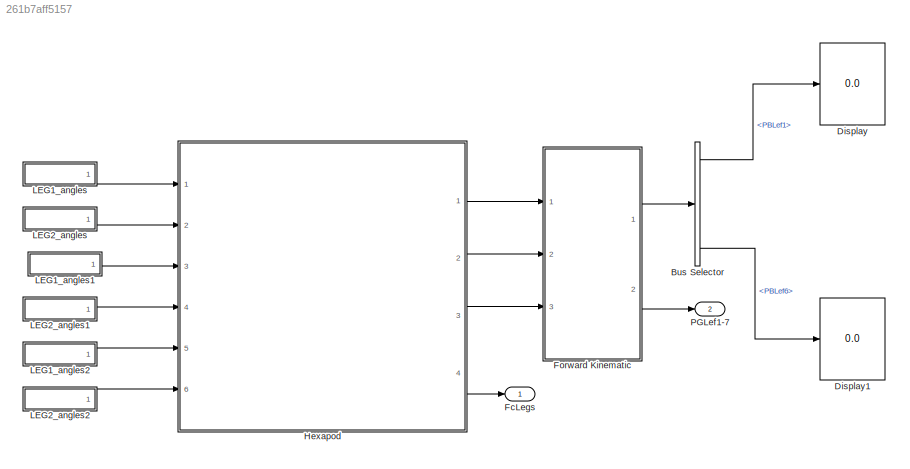
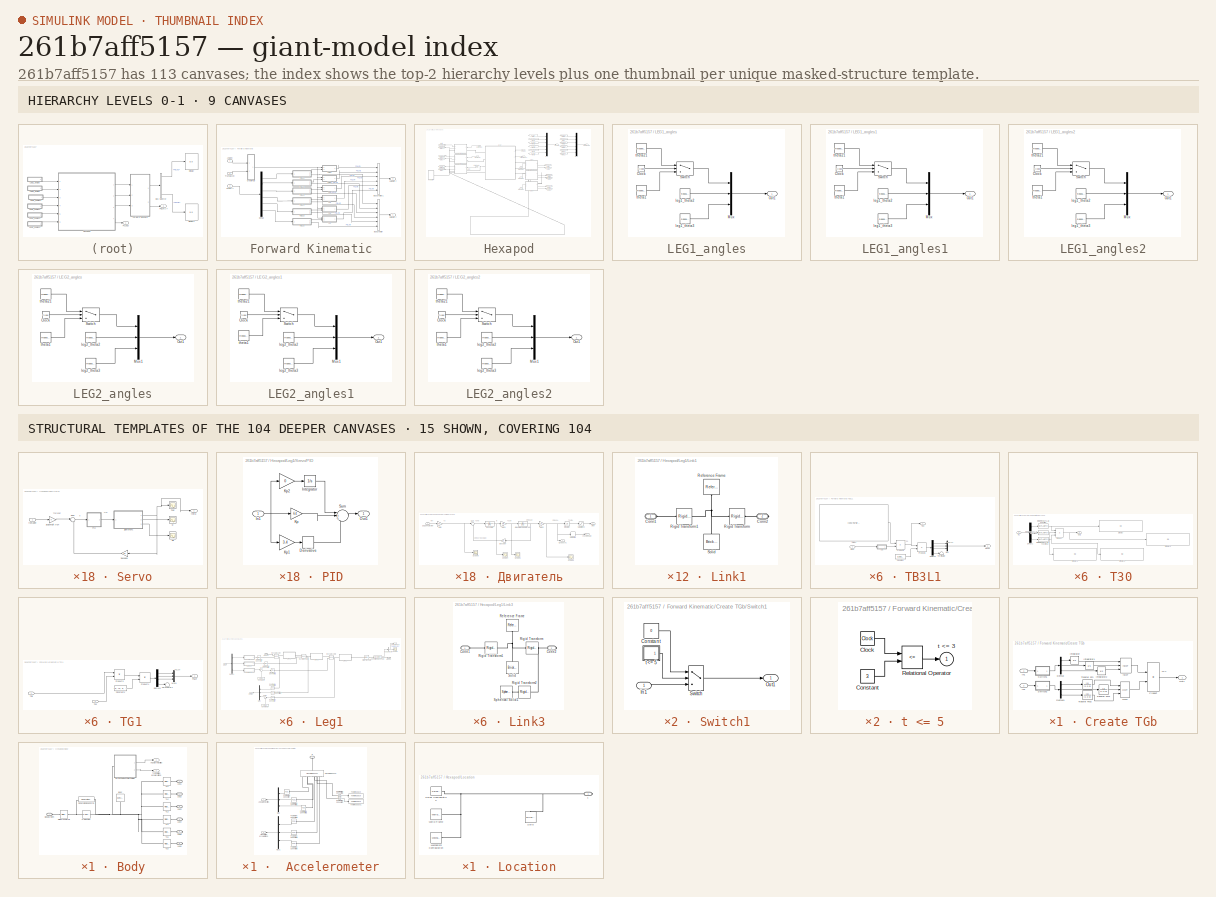
[diagram: thumbnail index - top-2 hierarchy levels (9 canvases) + 15 structural-template representatives of the remaining 104 canvases]
MODEL slx_261b7aff5157
KIND model
CONFIG AbsTol = 1e-5
CONFIG EnableMultiTasking = on
CONFIG FixedStep = 0.0001
CONFIG MaxStep = 0.01
CONFIG MinStep = auto
CONFIG RelTol = 1e-4
CONFIG SampleTimeConstraint = Unconstrained
CONFIG Solver = ode23tb
CONFIG SolverName = ode23tb
CONFIG StartTime = 0.0
CONFIG StopTime = 10
BLOCK [BusSelector] Bus Selector
  OutputSignals = PBLef1,PBLef2,PBLef3,PBLef4,PBLef5,PBLef6
  Ports = [1, 6]
BLOCK [Display] Display
  Decimation = 1
  Ports = [1]
BLOCK [Display] Display1
  Decimation = 1
  Ports = [1]
BLOCK [Outport] FcLegs
BLOCK [SubSystem] Forward Kinematic
  Ports = [3, 2]
  RequestExecContextInheritance = off
BLOCK [Inport] Forward Kinematic/Angl vel
BLOCK [BusCreator] Forward Kinematic/Bus Creator
  DisplayOption = bar
  InheritFromInputs = on
  Inputs = 6
  Ports = [6, 1]
BLOCK [BusCreator] Forward Kinematic/Bus Creator1
  DisplayOption = bar
  InheritFromInputs = on
  Inputs = 6
  Ports = [6, 1]
BLOCK [SubSystem] Forward Kinematic/Create TGb
  Ports = [2, 1]
  RequestExecContextInheritance = off
BLOCK [Demux] Forward Kinematic/Create TGb/Demux
  Outputs = 3
  Ports = [1, 3]
BLOCK [Demux] Forward Kinematic/Create TGb/Demux1
  Outputs = 3
  Ports = [1, 3]
BLOCK [Inport] Forward Kinematic/Create TGb/In1
BLOCK [Inport] Forward Kinematic/Create TGb/In2
  Port = 2
BLOCK [Integrator] Forward Kinematic/Create TGb/Integrator
  Ports = [1, 1]
BLOCK [Integrator] Forward Kinematic/Create TGb/Integrator1
  Ports = [1, 1]
BLOCK [Integrator] Forward Kinematic/Create TGb/Integrator2
  Ports = [1, 1]
BLOCK [Outport] Forward Kinematic/Create TGb/Out1
BLOCK [Product] Forward Kinematic/Create TGb/Product
  Multiplication = Matrix(*)
  Ports = [2, 1]
BLOCK [SubSystem] Forward Kinematic/Create TGb/Switch1
  Ports = [1, 1]
  RequestExecContextInheritance = off
BLOCK [Constant] Forward Kinematic/Create TGb/Switch1/Constant
  Value = 0
BLOCK [Inport] Forward Kinematic/Create TGb/Switch1/In1
BLOCK [Outport] Forward Kinematic/Create TGb/Switch1/Out1
BLOCK [Switch] Forward Kinematic/Create TGb/Switch1/Switch
  Threshold = 0.5
BLOCK [SubSystem] Forward Kinematic/Create TGb/Switch1/t <= 5
  Ports = [0, 1]
  RequestExecContextInheritance = off
BLOCK [Clock] Forward Kinematic/Create TGb/Switch1/t <= 5/Clock
BLOCK [Constant] Forward Kinematic/Create TGb/Switch1/t <= 5/Constant
  Value = 3
BLOCK [RelationalOperator] Forward Kinematic/Create TGb/Switch1/t <= 5/Relational Operator
  Operator = <=
  Ports = [2, 1]
BLOCK [Outport] Forward Kinematic/Create TGb/Switch1/t <= 5/t <= 3
  InitialOutput = 0
BLOCK [SubSystem] Forward Kinematic/Create TGb/Switch2
  Ports = [1, 1]
  RequestExecContextInheritance = off
BLOCK [Constant] Forward Kinematic/Create TGb/Switch2/Constant1
  Value = 0
BLOCK [Inport] Forward Kinematic/Create TGb/Switch2/In1
BLOCK [Outport] Forward Kinematic/Create TGb/Switch2/Out1
BLOCK [Switch] Forward Kinematic/Create TGb/Switch2/Switch1
  Threshold = 0.5
BLOCK [SubSystem] Forward Kinematic/Create TGb/Switch2/t <= 1
  Ports = [0, 1]
  RequestExecContextInheritance = off
BLOCK [Clock] Forward Kinematic/Create TGb/Switch2/t <= 1/Clock
BLOCK [Constant] Forward Kinematic/Create TGb/Switch2/t <= 1/Constant
  Value = 3
BLOCK [RelationalOperator] Forward Kinematic/Create TGb/Switch2/t <= 1/Relational Operator
  Operator = <=
  Ports = [2, 1]
BLOCK [Outport] Forward Kinematic/Create TGb/Switch2/t <= 1/t <= 3
  InitialOutput = 0
BLOCK [TransferFcn] Forward Kinematic/Create TGb/Transfer Fcn
  Denominator = [1 0 0]
BLOCK [TransferFcn] Forward Kinematic/Create TGb/Transfer Fcn1
  Denominator = [1 0 0]
BLOCK [TransferFcn] Forward Kinematic/Create TGb/Transfer Fcn2
  Denominator = [1 0 0]
BLOCK [Reference] Forward Kinematic/Create TGb/rpy2T  REF=roblocks/Toolbox/rpy2T  (lib defined in mdl_2a292b13c81b, mdl_69400f8cfe22, +12 more)
  Ports = [3, 1]
  SourceBlock = roblocks/Toolbox/rpy2T
  SourceType = Roll-pitch-yaw angles to transform
BLOCK [Reference] Forward Kinematic/Create TGb/xyz2T  REF=roblocks/Toolbox/xyz2T  (lib defined in mdl_2a292b13c81b, mdl_69400f8cfe22, +12 more)
  Ports = [3, 1]
  SourceBlock = roblocks/Toolbox/xyz2T
BLOCK [Demux] Forward Kinematic/Demux
  Outputs = 6
  Ports = [1, 6]
BLOCK [Outport] Forward Kinematic/PBLef1-7
BLOCK [Outport] Forward Kinematic/PGLef1-7
  Port = 2
BLOCK [SubSystem] Forward Kinematic/TB3L1
  Ports = [1, 2]
  RequestExecContextInheritance = off
BLOCK [Constant] Forward Kinematic/TB3L1/Constant
  Value = [L3; 0; 0; 1]
  VectorParams1D = off
BLOCK [Demux] Forward Kinematic/TB3L1/Demux2
  Ports = [1, 4]
BLOCK [Mux] Forward Kinematic/TB3L1/Mux
  DisplayOption = bar
  Inputs = 3
  Ports = [3, 1]
BLOCK [Outport] Forward Kinematic/TB3L1/PbLef
  Port = 2
BLOCK [Product] Forward Kinematic/TB3L1/Product1
  Multiplication = Matrix(*)
  Ports = [2, 1]
BLOCK [Product] Forward Kinematic/TB3L1/Product2
  Multiplication = Matrix(*)
  Ports = [2, 1]
BLOCK [SubSystem] Forward Kinematic/TB3L1/T30
  Ports = [1, 1]
  RequestExecContextInheritance = off
BLOCK [Demux] Forward Kinematic/TB3L1/T30/Demux1
  Outputs = 3
  Ports = [1, 3]
BLOCK [Display] Forward Kinematic/TB3L1/T30/Display
  Decimation = 1
  Ports = [1]
BLOCK [Display] Forward Kinematic/TB3L1/T30/Display1
  Decimation = 1
  Ports = [1]
BLOCK [Display] Forward Kinematic/TB3L1/T30/Display2
  Decimation = 1
  Ports = [1]
BLOCK [Display] Forward Kinematic/TB3L1/T30/Display3
  Decimation = 1
  Ports = [1]
BLOCK [Inport] Forward Kinematic/TB3L1/T30/In1
BLOCK [MATLABFcn] Forward Kinematic/TB3L1/T30/Interpreted MATLAB Function
  MATLABFcn = [cos(u) -sin(u) 0 0; sin(u) cos(u) 0 0; 0 0 1 d1; 0 0 0 1]
  Output1D = off
  Ports = [1, 1]
BLOCK [MATLABFcn] Forward Kinematic/TB3L1/T30/Interpreted MATLAB Function1
  MATLABFcn = [cos(u) -sin(u) 0 L1; 0 0 -1 0; sin(u) cos(u) 0 -abs(d2); 0 0 0 1]
  Output1D = off
  Ports = [1, 1]
BLOCK [MATLABFcn] Forward Kinematic/TB3L1/T30/Interpreted MATLAB Function2
  MATLABFcn = [cos(u+90*pi/180) -sin(u+90*pi/180) 0 L2; -sin(u+90*pi/180) -cos(u+90*pi/180) 0 0; 0 0 -1 0; 0 0 0 1]
  Output1D = off
  Ports = [1, 1]
BLOCK [Outport] Forward Kinematic/TB3L1/T30/Out1
BLOCK [Product] Forward Kinematic/TB3L1/T30/Product
  Inputs = 3
  Multiplication = Matrix(*)
  Ports = [3, 1]
BLOCK [Outport] Forward Kinematic/TB3L1/Tb3
BLOCK [Constant] Forward Kinematic/TB3L1/Tbleg1
  Value = [cos(45*pi/180) -sin(45*pi/180) 0 bH/2; sin(45*pi/180) cos(45*pi/180) 0 bLs/2; 0 0 1 0; 0 0 0 1]
  VectorParams1D = off
BLOCK [Terminator] Forward Kinematic/TB3L1/Terminator
BLOCK [Inport] Forward Kinematic/TB3L1/q[1...3]
BLOCK [SubSystem] Forward Kinematic/TB3L2
  Ports = [1, 2]
  RequestExecContextInheritance = off
BLOCK [Constant] Forward Kinematic/TB3L2/Constant
  Value = [L3; 0; 0; 1]
  VectorParams1D = off
BLOCK [Demux] Forward Kinematic/TB3L2/Demux2
  Ports = [1, 4]
BLOCK [Mux] Forward Kinematic/TB3L2/Mux
  DisplayOption = bar
  Inputs = 3
  Ports = [3, 1]
BLOCK [Outport] Forward Kinematic/TB3L2/PbLef
  Port = 2
BLOCK [Product] Forward Kinematic/TB3L2/Product1
  Multiplication = Matrix(*)
  Ports = [2, 1]
BLOCK [Product] Forward Kinematic/TB3L2/Product2
  Multiplication = Matrix(*)
  Ports = [2, 1]
BLOCK [SubSystem] Forward Kinematic/TB3L2/T30
  Ports = [1, 1]
  RequestExecContextInheritance = off
BLOCK [Demux] Forward Kinematic/TB3L2/T30/Demux1
  Outputs = 3
  Ports = [1, 3]
BLOCK [Display] Forward Kinematic/TB3L2/T30/Display
  Decimation = 1
  Ports = [1]
BLOCK [Display] Forward Kinematic/TB3L2/T30/Display1
  Decimation = 1
  Ports = [1]
BLOCK [Display] Forward Kinematic/TB3L2/T30/Display2
  Decimation = 1
  Ports = [1]
BLOCK [Display] Forward Kinematic/TB3L2/T30/Display3
  Decimation = 1
  Ports = [1]
BLOCK [Inport] Forward Kinematic/TB3L2/T30/In1
BLOCK [MATLABFcn] Forward Kinematic/TB3L2/T30/Interpreted MATLAB Function
  MATLABFcn = [cos(u) -sin(u) 0 0; sin(u) cos(u) 0 0; 0 0 1 d1; 0 0 0 1]
  Output1D = off
  Ports = [1, 1]
BLOCK [MATLABFcn] Forward Kinematic/TB3L2/T30/Interpreted MATLAB Function1
  MATLABFcn = [cos(u) -sin(u) 0 L1; 0 0 -1 0; sin(u) cos(u) 0 -abs(d2); 0 0 0 1]
  Output1D = off
  Ports = [1, 1]
BLOCK [MATLABFcn] Forward Kinematic/TB3L2/T30/Interpreted MATLAB Function2
  MATLABFcn = [cos(u+90*pi/180) -sin(u+90*pi/180) 0 L2; -sin(u+90*pi/180) -cos(u+90*pi/180) 0 0; 0 0 -1 0; 0 0 0 1]
  Output1D = off
  Ports = [1, 1]
BLOCK [Outport] Forward Kinematic/TB3L2/T30/Out1
BLOCK [Product] Forward Kinematic/TB3L2/T30/Product
  Inputs = 3
  Multiplication = Matrix(*)
  Ports = [3, 1]
BLOCK [Outport] Forward Kinematic/TB3L2/Tb3
BLOCK [Constant] Forward Kinematic/TB3L2/Tbleg1
  Value = [0 -1 0 0; 1 0 0 bLb/2; 0 0 1 0; 0 0 0 1]
  VectorParams1D = off
BLOCK [Terminator] Forward Kinematic/TB3L2/Terminator
BLOCK [Inport] Forward Kinematic/TB3L2/q[1...3]
BLOCK [SubSystem] Forward Kinematic/TB3L3
  Ports = [1, 2]
  RequestExecContextInheritance = off
BLOCK [Constant] Forward Kinematic/TB3L3/Constant
  Value = [L3; 0; 0; 1]
  VectorParams1D = off
BLOCK [Demux] Forward Kinematic/TB3L3/Demux2
  Ports = [1, 4]
BLOCK [Mux] Forward Kinematic/TB3L3/Mux
  DisplayOption = bar
  Inputs = 3
  Ports = [3, 1]
BLOCK [Outport] Forward Kinematic/TB3L3/PbLef
  Port = 2
BLOCK [Product] Forward Kinematic/TB3L3/Product1
  Multiplication = Matrix(*)
  Ports = [2, 1]
BLOCK [Product] Forward Kinematic/TB3L3/Product2
  Multiplication = Matrix(*)
  Ports = [2, 1]
BLOCK [SubSystem] Forward Kinematic/TB3L3/T30
  Ports = [1, 1]
  RequestExecContextInheritance = off
BLOCK [Demux] Forward Kinematic/TB3L3/T30/Demux1
  Outputs = 3
  Ports = [1, 3]
BLOCK [Display] Forward Kinematic/TB3L3/T30/Display
  Decimation = 1
  Ports = [1]
BLOCK [Display] Forward Kinematic/TB3L3/T30/Display1
  Decimation = 1
  Ports = [1]
BLOCK [Display] Forward Kinematic/TB3L3/T30/Display2
  Decimation = 1
  Ports = [1]
BLOCK [Display] Forward Kinematic/TB3L3/T30/Display3
  Decimation = 1
  Ports = [1]
BLOCK [Inport] Forward Kinematic/TB3L3/T30/In1
BLOCK [MATLABFcn] Forward Kinematic/TB3L3/T30/Interpreted MATLAB Function
  MATLABFcn = [cos(u) -sin(u) 0 0; sin(u) cos(u) 0 0; 0 0 1 d1; 0 0 0 1]
  Output1D = off
  Ports = [1, 1]
BLOCK [MATLABFcn] Forward Kinematic/TB3L3/T30/Interpreted MATLAB Function1
  MATLABFcn = [cos(u) -sin(u) 0 L1; 0 0 -1 0; sin(u) cos(u) 0 -abs(d2); 0 0 0 1]
  Output1D = off
  Ports = [1, 1]
BLOCK [MATLABFcn] Forward Kinematic/TB3L3/T30/Interpreted MATLAB Function2
  MATLABFcn = [cos(u+90*pi/180) -sin(u+90*pi/180) 0 L2; -sin(u+90*pi/180) -cos(u+90*pi/180) 0 0; 0 0 -1 0; 0 0 0 1]
  Output1D = off
  Ports = [1, 1]
BLOCK [Outport] Forward Kinematic/TB3L3/T30/Out1
BLOCK [Product] Forward Kinematic/TB3L3/T30/Product
  Inputs = 3
  Multiplication = Matrix(*)
  Ports = [3, 1]
BLOCK [Outport] Forward Kinematic/TB3L3/Tb3
BLOCK [Constant] Forward Kinematic/TB3L3/Tbleg3
  Value = [cos(135*pi/180) -sin(135*pi/180) 0 -bH/2; sin(135*pi/180) cos(135*pi/180) 0 bLs/2; 0 0 1 0; 0 0 0 1]
  VectorParams1D = off
BLOCK [Terminator] Forward Kinematic/TB3L3/Terminator
BLOCK [Inport] Forward Kinematic/TB3L3/q[1...3]
BLOCK [SubSystem] Forward Kinematic/TB3L4
  Ports = [1, 2]
  RequestExecContextInheritance = off
BLOCK [Constant] Forward Kinematic/TB3L4/Constant
  Value = [L3; 0; 0; 1]
  VectorParams1D = off
BLOCK [Demux] Forward Kinematic/TB3L4/Demux2
  Ports = [1, 4]
BLOCK [Mux] Forward Kinematic/TB3L4/Mux
  DisplayOption = bar
  Inputs = 3
  Ports = [3, 1]
BLOCK [Outport] Forward Kinematic/TB3L4/PbLef
  Port = 2
BLOCK [Product] Forward Kinematic/TB3L4/Product1
  Multiplication = Matrix(*)
  Ports = [2, 1]
BLOCK [Product] Forward Kinematic/TB3L4/Product2
  Multiplication = Matrix(*)
  Ports = [2, 1]
BLOCK [SubSystem] Forward Kinematic/TB3L4/T30
  Ports = [1, 1]
  RequestExecContextInheritance = off
BLOCK [Demux] Forward Kinematic/TB3L4/T30/Demux1
  Outputs = 3
  Ports = [1, 3]
BLOCK [Display] Forward Kinematic/TB3L4/T30/Display
  Decimation = 1
  Ports = [1]
BLOCK [Display] Forward Kinematic/TB3L4/T30/Display1
  Decimation = 1
  Ports = [1]
BLOCK [Display] Forward Kinematic/TB3L4/T30/Display2
  Decimation = 1
  Ports = [1]
BLOCK [Display] Forward Kinematic/TB3L4/T30/Display3
  Decimation = 1
  Ports = [1]
BLOCK [Inport] Forward Kinematic/TB3L4/T30/In1
BLOCK [MATLABFcn] Forward Kinematic/TB3L4/T30/Interpreted MATLAB Function
  MATLABFcn = [cos(u) -sin(u) 0 0; sin(u) cos(u) 0 0; 0 0 1 d1; 0 0 0 1]
  Output1D = off
  Ports = [1, 1]
BLOCK [MATLABFcn] Forward Kinematic/TB3L4/T30/Interpreted MATLAB Function1
  MATLABFcn = [cos(u) -sin(u) 0 L1; 0 0 -1 0; sin(u) cos(u) 0 -abs(d2); 0 0 0 1]
  Output1D = off
  Ports = [1, 1]
BLOCK [MATLABFcn] Forward Kinematic/TB3L4/T30/Interpreted MATLAB Function2
  MATLABFcn = [cos(u+90*pi/180) -sin(u+90*pi/180) 0 L2; -sin(u+90*pi/180) -cos(u+90*pi/180) 0 0; 0 0 -1 0; 0 0 0 1]
  Output1D = off
  Ports = [1, 1]
BLOCK [Outport] Forward Kinematic/TB3L4/T30/Out1
BLOCK [Product] Forward Kinematic/TB3L4/T30/Product
  Inputs = 3
  Multiplication = Matrix(*)
  Ports = [3, 1]
BLOCK [Outport] Forward Kinematic/TB3L4/Tb3
BLOCK [Constant] Forward Kinematic/TB3L4/Tbleg1
  Value = [cos(-45*pi/180) -sin(-45*pi/180) 0 bH/2; sin(-45*pi/180) cos(-45*pi/180) 0 -bLs/2; 0 0 1 0; 0 0 0 1]
  VectorParams1D = off
BLOCK [Terminator] Forward Kinematic/TB3L4/Terminator
BLOCK [Inport] Forward Kinematic/TB3L4/q[1...3]
BLOCK [SubSystem] Forward Kinematic/TB3L5
  Ports = [1, 2]
  RequestExecContextInheritance = off
BLOCK [Constant] Forward Kinematic/TB3L5/Constant
  Value = [L3; 0; 0; 1]
  VectorParams1D = off
BLOCK [Demux] Forward Kinematic/TB3L5/Demux2
  Ports = [1, 4]
BLOCK [Mux] Forward Kinematic/TB3L5/Mux
  DisplayOption = bar
  Inputs = 3
  Ports = [3, 1]
BLOCK [Outport] Forward Kinematic/TB3L5/PbLef
  Port = 2
BLOCK [Product] Forward Kinematic/TB3L5/Product1
  Multiplication = Matrix(*)
  Ports = [2, 1]
BLOCK [Product] Forward Kinematic/TB3L5/Product2
  Multiplication = Matrix(*)
  Ports = [2, 1]
BLOCK [SubSystem] Forward Kinematic/TB3L5/T30
  Ports = [1, 1]
  RequestExecContextInheritance = off
BLOCK [Demux] Forward Kinematic/TB3L5/T30/Demux1
  Outputs = 3
  Ports = [1, 3]
BLOCK [Display] Forward Kinematic/TB3L5/T30/Display
  Decimation = 1
  Ports = [1]
BLOCK [Display] Forward Kinematic/TB3L5/T30/Display1
  Decimation = 1
  Ports = [1]
BLOCK [Display] Forward Kinematic/TB3L5/T30/Display2
  Decimation = 1
  Ports = [1]
BLOCK [Display] Forward Kinematic/TB3L5/T30/Display3
  Decimation = 1
  Ports = [1]
BLOCK [Inport] Forward Kinematic/TB3L5/T30/In1
BLOCK [MATLABFcn] Forward Kinematic/TB3L5/T30/Interpreted MATLAB Function
  MATLABFcn = [cos(u) -sin(u) 0 0; sin(u) cos(u) 0 0; 0 0 1 d1; 0 0 0 1]
  Output1D = off
  Ports = [1, 1]
BLOCK [MATLABFcn] Forward Kinematic/TB3L5/T30/Interpreted MATLAB Function1
  MATLABFcn = [cos(u) -sin(u) 0 L1; 0 0 -1 0; sin(u) cos(u) 0 -abs(d2); 0 0 0 1]
  Output1D = off
  Ports = [1, 1]
BLOCK [MATLABFcn] Forward Kinematic/TB3L5/T30/Interpreted MATLAB Function2
  MATLABFcn = [cos(u+90*pi/180) -sin(u+90*pi/180) 0 L2; -sin(u+90*pi/180) -cos(u+90*pi/180) 0 0; 0 0 -1 0; 0 0 0 1]
  Output1D = off
  Ports = [1, 1]
BLOCK [Outport] Forward Kinematic/TB3L5/T30/Out1
BLOCK [Product] Forward Kinematic/TB3L5/T30/Product
  Inputs = 3
  Multiplication = Matrix(*)
  Ports = [3, 1]
BLOCK [Outport] Forward Kinematic/TB3L5/Tb3
BLOCK [Constant] Forward Kinematic/TB3L5/Tbleg1
  Value = [0 1 0 0; -1 0 0 -bLb/2; 0 0 1 0; 0 0 0 1]
  VectorParams1D = off
BLOCK [Terminator] Forward Kinematic/TB3L5/Terminator
BLOCK [Inport] Forward Kinematic/TB3L5/q[1...3]
BLOCK [SubSystem] Forward Kinematic/TB3L6
  Ports = [1, 2]
  RequestExecContextInheritance = off
BLOCK [Constant] Forward Kinematic/TB3L6/Constant
  Value = [L3; 0; 0; 1]
  VectorParams1D = off
BLOCK [Demux] Forward Kinematic/TB3L6/Demux2
  Ports = [1, 4]
BLOCK [Mux] Forward Kinematic/TB3L6/Mux
  DisplayOption = bar
  Inputs = 3
  Ports = [3, 1]
BLOCK [Outport] Forward Kinematic/TB3L6/PbLef
  Port = 2
BLOCK [Product] Forward Kinematic/TB3L6/Product1
  Multiplication = Matrix(*)
  Ports = [2, 1]
BLOCK [Product] Forward Kinematic/TB3L6/Product2
  Multiplication = Matrix(*)
  Ports = [2, 1]
BLOCK [SubSystem] Forward Kinematic/TB3L6/T30
  Ports = [1, 1]
  RequestExecContextInheritance = off
BLOCK [Demux] Forward Kinematic/TB3L6/T30/Demux1
  Outputs = 3
  Ports = [1, 3]
BLOCK [Display] Forward Kinematic/TB3L6/T30/Display
  Decimation = 1
  Ports = [1]
BLOCK [Display] Forward Kinematic/TB3L6/T30/Display1
  Decimation = 1
  Ports = [1]
BLOCK [Display] Forward Kinematic/TB3L6/T30/Display2
  Decimation = 1
  Ports = [1]
BLOCK [Display] Forward Kinematic/TB3L6/T30/Display3
  Decimation = 1
  Ports = [1]
BLOCK [Inport] Forward Kinematic/TB3L6/T30/In1
BLOCK [MATLABFcn] Forward Kinematic/TB3L6/T30/Interpreted MATLAB Function
  MATLABFcn = [cos(u) -sin(u) 0 0; sin(u) cos(u) 0 0; 0 0 1 d1; 0 0 0 1]
  Output1D = off
  Ports = [1, 1]
BLOCK [MATLABFcn] Forward Kinematic/TB3L6/T30/Interpreted MATLAB Function1
  MATLABFcn = [cos(u) -sin(u) 0 L1; 0 0 -1 0; sin(u) cos(u) 0 -abs(d2); 0 0 0 1]
  Output1D = off
  Ports = [1, 1]
BLOCK [MATLABFcn] Forward Kinematic/TB3L6/T30/Interpreted MATLAB Function2
  MATLABFcn = [cos(u+90*pi/180) -sin(u+90*pi/180) 0 L2; -sin(u+90*pi/180) -cos(u+90*pi/180) 0 0; 0 0 -1 0; 0 0 0 1]
  Output1D = off
  Ports = [1, 1]
BLOCK [Outport] Forward Kinematic/TB3L6/T30/Out1
BLOCK [Product] Forward Kinematic/TB3L6/T30/Product
  Inputs = 3
  Multiplication = Matrix(*)
  Ports = [3, 1]
BLOCK [Outport] Forward Kinematic/TB3L6/Tb3
BLOCK [Constant] Forward Kinematic/TB3L6/Tbleg1
  Value = [cos(-135*pi/180) -sin(-135*pi/180) 0 -bH/2; sin(-135*pi/180) cos(-135*pi/180) 0 -bLs/2; 0 0 1 0; 0 0 0 1]
  VectorParams1D = off
BLOCK [Terminator] Forward Kinematic/TB3L6/Terminator
BLOCK [Inport] Forward Kinematic/TB3L6/q[1...3]
BLOCK [SubSystem] Forward Kinematic/TG1
  Ports = [2, 1]
  RequestExecContextInheritance = off
BLOCK [Constant] Forward Kinematic/TG1/Constant1
  Value = [0; L3; 0; 1]
  VectorParams1D = off
BLOCK [Demux] Forward Kinematic/TG1/Demux1
  Ports = [1, 4]
BLOCK [Mux] Forward Kinematic/TG1/Mux1
  DisplayOption = bar
  Inputs = 3
  Ports = [3, 1]
BLOCK [Outport] Forward Kinematic/TG1/PGLef
BLOCK [Product] Forward Kinematic/TG1/Product3
  Multiplication = Matrix(*)
  Ports = [2, 1]
BLOCK [Product] Forward Kinematic/TG1/Product4
  Multiplication = Matrix(*)
  Ports = [2, 1]
BLOCK [Inport] Forward Kinematic/TG1/TGb
BLOCK [Inport] Forward Kinematic/TG1/Tb3
  Port = 2
BLOCK [Terminator] Forward Kinematic/TG1/Terminator1
BLOCK [SubSystem] Forward Kinematic/TG2
  Ports = [2, 1]
  RequestExecContextInheritance = off
BLOCK [Constant] Forward Kinematic/TG2/Constant1
  Value = [0; L3; 0; 1]
  VectorParams1D = off
BLOCK [Demux] Forward Kinematic/TG2/Demux1
  Ports = [1, 4]
BLOCK [Mux] Forward Kinematic/TG2/Mux1
  DisplayOption = bar
  Inputs = 3
  Ports = [3, 1]
BLOCK [Outport] Forward Kinematic/TG2/PGLef
BLOCK [Product] Forward Kinematic/TG2/Product3
  Multiplication = Matrix(*)
  Ports = [2, 1]
BLOCK [Product] Forward Kinematic/TG2/Product4
  Multiplication = Matrix(*)
  Ports = [2, 1]
BLOCK [Inport] Forward Kinematic/TG2/TGb
BLOCK [Inport] Forward Kinematic/TG2/Tb3
  Port = 2
BLOCK [Terminator] Forward Kinematic/TG2/Terminator1
BLOCK [SubSystem] Forward Kinematic/TG3
  Ports = [2, 1]
  RequestExecContextInheritance = off
BLOCK [Constant] Forward Kinematic/TG3/Constant1
  Value = [0; L3; 0; 1]
  VectorParams1D = off
BLOCK [Demux] Forward Kinematic/TG3/Demux1
  Ports = [1, 4]
BLOCK [Mux] Forward Kinematic/TG3/Mux1
  DisplayOption = bar
  Inputs = 3
  Ports = [3, 1]
BLOCK [Outport] Forward Kinematic/TG3/PGLef
BLOCK [Product] Forward Kinematic/TG3/Product3
  Multiplication = Matrix(*)
  Ports = [2, 1]
BLOCK [Product] Forward Kinematic/TG3/Product4
  Multiplication = Matrix(*)
  Ports = [2, 1]
BLOCK [Inport] Forward Kinematic/TG3/TGb
BLOCK [Inport] Forward Kinematic/TG3/Tb3
  Port = 2
BLOCK [Terminator] Forward Kinematic/TG3/Terminator1
BLOCK [SubSystem] Forward Kinematic/TG31
  Ports = [2, 1]
  RequestExecContextInheritance = off
BLOCK [Constant] Forward Kinematic/TG31/Constant1
  Value = [0; L3; 0; 1]
  VectorParams1D = off
BLOCK [Demux] Forward Kinematic/TG31/Demux1
  Ports = [1, 4]
BLOCK [Mux] Forward Kinematic/TG31/Mux1
  DisplayOption = bar
  Inputs = 3
  Ports = [3, 1]
BLOCK [Outport] Forward Kinematic/TG31/PGLef
BLOCK [Product] Forward Kinematic/TG31/Product3
  Multiplication = Matrix(*)
  Ports = [2, 1]
BLOCK [Product] Forward Kinematic/TG31/Product4
  Multiplication = Matrix(*)
  Ports = [2, 1]
BLOCK [Inport] Forward Kinematic/TG31/TGb
BLOCK [Inport] Forward Kinematic/TG31/Tb3
  Port = 2
BLOCK [Terminator] Forward Kinematic/TG31/Terminator1
BLOCK [SubSystem] Forward Kinematic/TG32
  Ports = [2, 1]
  RequestExecContextInheritance = off
BLOCK [Constant] Forward Kinematic/TG32/Constant1
  Value = [0; L3; 0; 1]
  VectorParams1D = off
BLOCK [Demux] Forward Kinematic/TG32/Demux1
  Ports = [1, 4]
BLOCK [Mux] Forward Kinematic/TG32/Mux1
  DisplayOption = bar
  Inputs = 3
  Ports = [3, 1]
BLOCK [Outport] Forward Kinematic/TG32/PGLef
BLOCK [Product] Forward Kinematic/TG32/Product3
  Multiplication = Matrix(*)
  Ports = [2, 1]
BLOCK [Product] Forward Kinematic/TG32/Product4
  Multiplication = Matrix(*)
  Ports = [2, 1]
BLOCK [Inport] Forward Kinematic/TG32/TGb
BLOCK [Inport] Forward Kinematic/TG32/Tb3
  Port = 2
BLOCK [Terminator] Forward Kinematic/TG32/Terminator1
BLOCK [SubSystem] Forward Kinematic/TG4
  Ports = [2, 1]
  RequestExecContextInheritance = off
BLOCK [Constant] Forward Kinematic/TG4/Constant1
  Value = [0; L3; 0; 1]
  VectorParams1D = off
BLOCK [Demux] Forward Kinematic/TG4/Demux1
  Ports = [1, 4]
BLOCK [Mux] Forward Kinematic/TG4/Mux1
  DisplayOption = bar
  Inputs = 3
  Ports = [3, 1]
BLOCK [Outport] Forward Kinematic/TG4/PGLef
BLOCK [Product] Forward Kinematic/TG4/Product3
  Multiplication = Matrix(*)
  Ports = [2, 1]
BLOCK [Product] Forward Kinematic/TG4/Product4
  Multiplication = Matrix(*)
  Ports = [2, 1]
BLOCK [Inport] Forward Kinematic/TG4/TGb
BLOCK [Inport] Forward Kinematic/TG4/Tb3
  Port = 2
BLOCK [Terminator] Forward Kinematic/TG4/Terminator1
BLOCK [Inport] Forward Kinematic/Transl accel
  Port = 2
BLOCK [Inport] Forward Kinematic/qLeg1-7
  Port = 3
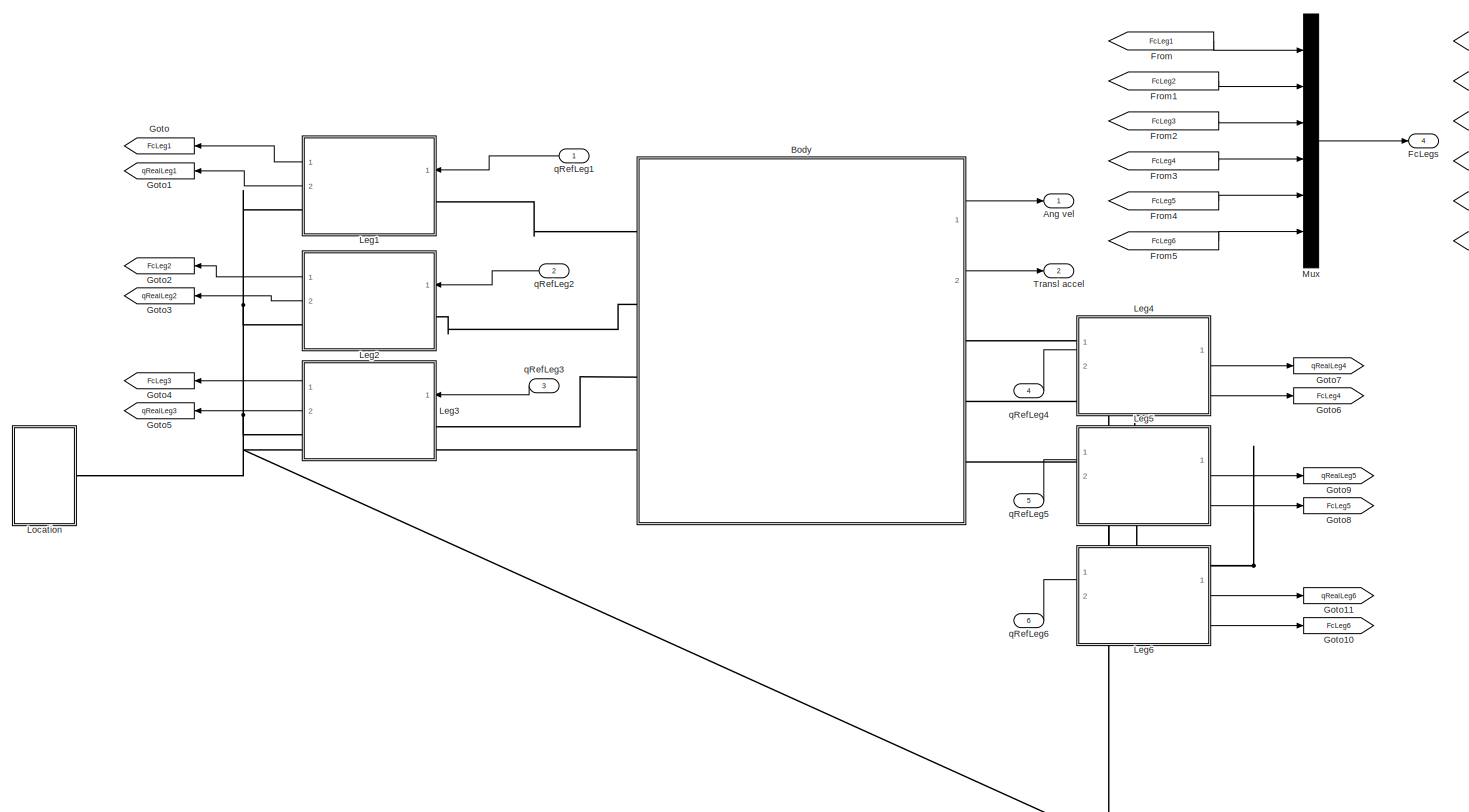
[diagram: Hexapod - part 1/2, full width, middle band]
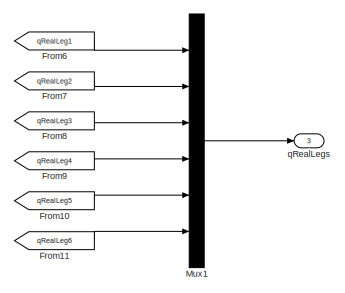
[diagram: Hexapod - part 2/2, top right region]
BLOCK [SubSystem] Hexapod
  Ports = [6, 4]
  RequestExecContextInheritance = off
BLOCK [Outport] Hexapod/Ang vel
BLOCK [SubSystem] Hexapod/Body
  Ports = [0, 2, 0, 0, 0, 4, 3]
  RequestExecContextInheritance = off
BLOCK [Reference] Hexapod/Body/6-DOF Joint  REF=sm_lib/Joints/6-DOF Joint
  Ports = [0, 0, 0, 0, 0, 1, 1]
  SourceBlock = sm_lib/Joints/6-DOF Joint
  SourceProductBaseCode = MS
  SourceType = 6-DOF Joint
BLOCK [Outport] Hexapod/Body/Angular velocities
BLOCK [Reference] Hexapod/Body/Body  REF=sm_lib/Body Elements/Extruded Solid
  NameLocation = left
  Ports = [0, 0, 0, 0, 0, 0, 1]
  SourceBlock = sm_lib/Body Elements/Extruded Solid
  SourceProductBaseCode = MS
  SourceType = Extruded Solid
BLOCK [PMIOPort] Hexapod/Body/Global system
  NameLocation = top
  Port = 7
  Side = Left
BLOCK [SubSystem] Hexapod/Body/Gyroscope// Accelerometer
  Ports = [0, 2, 0, 0, 0, 1]
  RequestExecContextInheritance = off
BLOCK [Outport] Hexapod/Body/Gyroscope// Accelerometer/Angular velocities
BLOCK [PMIOPort] Hexapod/Body/Gyroscope// Accelerometer/B
  NameLocation = right
  Side = Left
BLOCK [Mux] Hexapod/Body/Gyroscope// Accelerometer/Mux
  DisplayOption = bar
  Inputs = 3
  NameLocation = top
  Ports = [3, 1]
BLOCK [Mux] Hexapod/Body/Gyroscope// Accelerometer/Mux1
  DisplayOption = bar
  Inputs = 3
  NameLocation = top
  Ports = [3, 1]
BLOCK [Reference] Hexapod/Body/Gyroscope// Accelerometer/PS-Simulink Converter  REF=nesl_utility/PS-Simulink
Converter
  Ports = [0, 1, 0, 0, 0, 1]
  SourceBlock = nesl_utility/PS-Simulink\nConverter
  SourceProductBaseCode = SS
  SourceType = PS-Simulink\nConverter
BLOCK [Reference] Hexapod/Body/Gyroscope// Accelerometer/PS-Simulink Converter1  REF=nesl_utility/PS-Simulink
Converter
  Ports = [0, 1, 0, 0, 0, 1]
  SourceBlock = nesl_utility/PS-Simulink\nConverter
  SourceProductBaseCode = SS
  SourceType = PS-Simulink\nConverter
BLOCK [Reference] Hexapod/Body/Gyroscope// Accelerometer/PS-Simulink Converter2  REF=nesl_utility/PS-Simulink
Converter
  Ports = [0, 1, 0, 0, 0, 1]
  SourceBlock = nesl_utility/PS-Simulink\nConverter
  SourceProductBaseCode = SS
  SourceType = PS-Simulink\nConverter
BLOCK [Reference] Hexapod/Body/Gyroscope// Accelerometer/PS-Simulink Converter3  REF=nesl_utility/PS-Simulink
Converter
  Ports = [0, 1, 0, 0, 0, 1]
  SourceBlock = nesl_utility/PS-Simulink\nConverter
  SourceProductBaseCode = SS
  SourceType = PS-Simulink\nConverter
BLOCK [Reference] Hexapod/Body/Gyroscope// Accelerometer/PS-Simulink Converter4  REF=nesl_utility/PS-Simulink
Converter
  Ports = [0, 1, 0, 0, 0, 1]
  SourceBlock = nesl_utility/PS-Simulink\nConverter
  SourceProductBaseCode = SS
  SourceType = PS-Simulink\nConverter
BLOCK [Reference] Hexapod/Body/Gyroscope// Accelerometer/PS-Simulink Converter5  REF=nesl_utility/PS-Simulink
Converter
  Ports = [0, 1, 0, 0, 0, 1]
  SourceBlock = nesl_utility/PS-Simulink\nConverter
  SourceProductBaseCode = SS
  SourceType = PS-Simulink\nConverter
BLOCK [Reference] Hexapod/Body/Gyroscope// Accelerometer/PS-Simulink Converter6  REF=nesl_utility/PS-Simulink
Converter
  Ports = [0, 1, 0, 0, 0, 1]
  SourceBlock = nesl_utility/PS-Simulink\nConverter
  SourceProductBaseCode = SS
  SourceType = PS-Simulink\nConverter
BLOCK [Reference] Hexapod/Body/Gyroscope// Accelerometer/PS-Simulink Converter7  REF=nesl_utility/PS-Simulink
Converter
  Ports = [0, 1, 0, 0, 0, 1]
  SourceBlock = nesl_utility/PS-Simulink\nConverter
  SourceProductBaseCode = SS
  SourceType = PS-Simulink\nConverter
BLOCK [ToWorkspace] Hexapod/Body/Gyroscope// Accelerometer/To Workspace
  FixptAsFi = on
  MaxDataPoints = inf
  Ports = [1]
  SampleTime = -1
  SaveFormat = Timeseries
  VariableName = x
BLOCK [ToWorkspace] Hexapod/Body/Gyroscope// Accelerometer/To Workspace1
  FixptAsFi = on
  MaxDataPoints = inf
  Ports = [1]
  SampleTime = -1
  SaveFormat = Timeseries
  VariableName = y
BLOCK [Reference] Hexapod/Body/Gyroscope// Accelerometer/Transform Sensor  REF=sm_lib/Frames and
Transforms/Transform
Sensor
  NameLocation = left
  Ports = [0, 0, 0, 0, 0, 1, 9]
  SourceBlock = sm_lib/Frames and\nTransforms/Transform\nSensor
  SourceProductBaseCode = MS
  SourceType = Transform\nSensor
BLOCK [Outport] Hexapod/Body/Gyroscope// Accelerometer/Translation accelerations
  Port = 2
BLOCK [PMIOPort] Hexapod/Body/Leg1
  Side = Left
BLOCK [PMIOPort] Hexapod/Body/Leg2
  Port = 2
  Side = Left
BLOCK [PMIOPort] Hexapod/Body/Leg3
  Port = 3
  Side = Left
BLOCK [PMIOPort] Hexapod/Body/Leg4
  Port = 4
  Side = Right
BLOCK [PMIOPort] Hexapod/Body/Leg5
  Port = 5
  Side = Right
BLOCK [PMIOPort] Hexapod/Body/Leg6
  Port = 6
  Side = Right
BLOCK [Reference] Hexapod/Body/Rigid Transform1  REF=sm_lib/Frames and
Transforms/Rigid
Transform
  NameLocation = top
  Ports = [0, 0, 0, 0, 0, 1, 1]
  SourceBlock = sm_lib/Frames and\nTransforms/Rigid\nTransform
  SourceProductBaseCode = MS
  SourceType = Rigid\nTransform
BLOCK [Reference] Hexapod/Body/Sphere to Plane Force  REF=Contact_Forces_Lib/3D/Sphere to Plane Force
  NameLocation = top
  Ports = [0, 1, 0, 0, 0, 1, 1]
  SourceBlock = Contact_Forces_Lib/3D/Sphere to Plane Force
  SourceProductName = Simscape Multibody Contact Forces Library
  SourceType = Sphere to Plane Force
BLOCK [Reference] Hexapod/Body/TL1  REF=sm_lib/Frames and
Transforms/Rigid
Transform
  Ports = [0, 0, 0, 0, 0, 1, 1]
  SourceBlock = sm_lib/Frames and\nTransforms/Rigid\nTransform
  SourceProductBaseCode = MS
  SourceType = Rigid\nTransform
BLOCK [Reference] Hexapod/Body/TL2  REF=sm_lib/Frames and
Transforms/Rigid
Transform
  Ports = [0, 0, 0, 0, 0, 1, 1]
  SourceBlock = sm_lib/Frames and\nTransforms/Rigid\nTransform
  SourceProductBaseCode = MS
  SourceType = Rigid\nTransform
BLOCK [Reference] Hexapod/Body/TL3  REF=sm_lib/Frames and
Transforms/Rigid
Transform
  Ports = [0, 0, 0, 0, 0, 1, 1]
  SourceBlock = sm_lib/Frames and\nTransforms/Rigid\nTransform
  SourceProductBaseCode = MS
  SourceType = Rigid\nTransform
BLOCK [Reference] Hexapod/Body/TL4  REF=sm_lib/Frames and
Transforms/Rigid
Transform
  Ports = [0, 0, 0, 0, 0, 1, 1]
  SourceBlock = sm_lib/Frames and\nTransforms/Rigid\nTransform
  SourceProductBaseCode = MS
  SourceType = Rigid\nTransform
BLOCK [Reference] Hexapod/Body/TL5  REF=sm_lib/Frames and
Transforms/Rigid
Transform
  Ports = [0, 0, 0, 0, 0, 1, 1]
  SourceBlock = sm_lib/Frames and\nTransforms/Rigid\nTransform
  SourceProductBaseCode = MS
  SourceType = Rigid\nTransform
BLOCK [Reference] Hexapod/Body/TL6  REF=sm_lib/Frames and
Transforms/Rigid
Transform
  Ports = [0, 0, 0, 0, 0, 1, 1]
  SourceBlock = sm_lib/Frames and\nTransforms/Rigid\nTransform
  SourceProductBaseCode = MS
  SourceType = Rigid\nTransform
BLOCK [Outport] Hexapod/Body/Translation accelerations
  Port = 2
BLOCK [Outport] Hexapod/FcLegs
  Port = 4
BLOCK [From] Hexapod/From
  GotoTag = FcLeg1
BLOCK [From] Hexapod/From1
  GotoTag = FcLeg2
BLOCK [From] Hexapod/From10
  GotoTag = qRealLeg5
BLOCK [From] Hexapod/From11
  GotoTag = qRealLeg6
BLOCK [From] Hexapod/From2
  GotoTag = FcLeg3
BLOCK [From] Hexapod/From3
  GotoTag = FcLeg4
BLOCK [From] Hexapod/From4
  GotoTag = FcLeg5
BLOCK [From] Hexapod/From5
  GotoTag = FcLeg6
BLOCK [From] Hexapod/From6
  GotoTag = qRealLeg1
BLOCK [From] Hexapod/From7
  GotoTag = qRealLeg2
BLOCK [From] Hexapod/From8
  GotoTag = qRealLeg3
BLOCK [From] Hexapod/From9
  GotoTag = qRealLeg4
BLOCK [Goto] Hexapod/Goto
  GotoTag = FcLeg1
BLOCK [Goto] Hexapod/Goto1
  GotoTag = qRealLeg1
BLOCK [Goto] Hexapod/Goto10
  GotoTag = FcLeg6
BLOCK [Goto] Hexapod/Goto11
  GotoTag = qRealLeg6
BLOCK [Goto] Hexapod/Goto2
  GotoTag = FcLeg2
BLOCK [Goto] Hexapod/Goto3
  GotoTag = qRealLeg2
BLOCK [Goto] Hexapod/Goto4
  GotoTag = FcLeg3
BLOCK [Goto] Hexapod/Goto5
  GotoTag = qRealLeg3
BLOCK [Goto] Hexapod/Goto6
  GotoTag = FcLeg4
BLOCK [Goto] Hexapod/Goto7
  GotoTag = qRealLeg4
BLOCK [Goto] Hexapod/Goto8
  GotoTag = FcLeg5
BLOCK [Goto] Hexapod/Goto9
  GotoTag = qRealLeg5
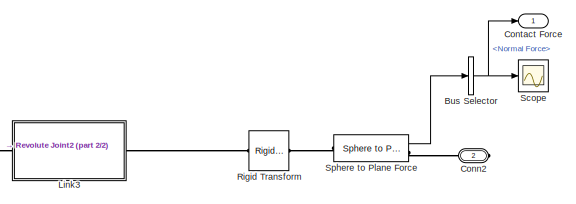
[diagram: Hexapod/Leg1 - part 1/2, top right region]
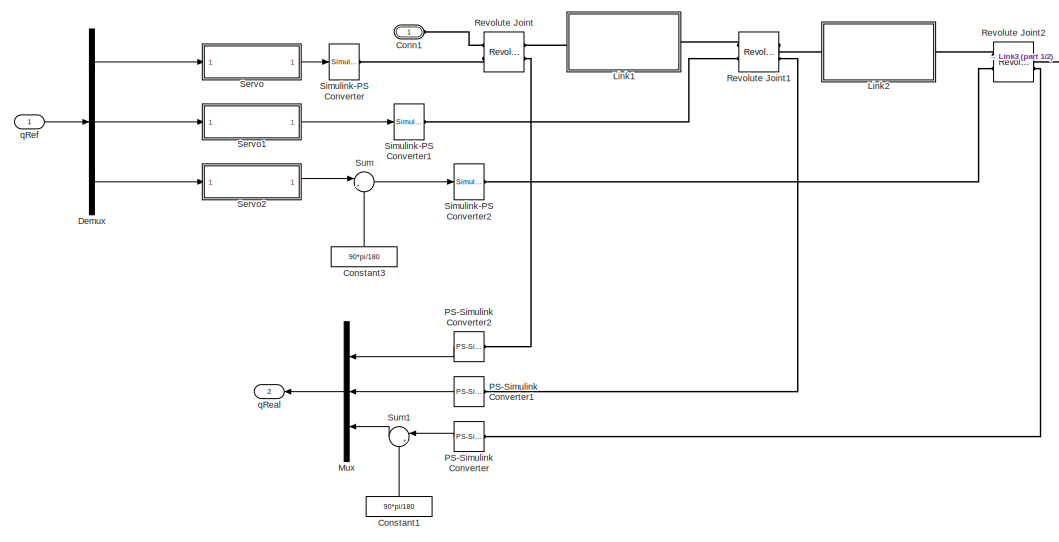
[diagram: Hexapod/Leg1 - part 2/2, left side, full height]
BLOCK [SubSystem] Hexapod/Leg1
  NameLocation = top
  Ports = [1, 2, 0, 0, 0, 1, 1]
  RequestExecContextInheritance = off
BLOCK [BusSelector] Hexapod/Leg1/Bus Selector
  OutputSignals = Normal Force
  Ports = [1, 1]
BLOCK [PMIOPort] Hexapod/Leg1/Conn1
  Side = Left
BLOCK [PMIOPort] Hexapod/Leg1/Conn2
  NameLocation = top
  Port = 2
  Side = Right
BLOCK [Constant] Hexapod/Leg1/Constant1
  NameLocation = right
  Value = 90*pi/180
BLOCK [Constant] Hexapod/Leg1/Constant3
  NameLocation = right
  Value = 90*pi/180
BLOCK [Outport] Hexapod/Leg1/Contact Force
BLOCK [Demux] Hexapod/Leg1/Demux
  Outputs = 3
  Ports = [1, 3]
BLOCK [SubSystem] Hexapod/Leg1/Link1
  Ports = [0, 0, 0, 0, 0, 1, 1]
  RequestExecContextInheritance = off
BLOCK [PMIOPort] Hexapod/Leg1/Link1/Conn1
  Side = Left
BLOCK [PMIOPort] Hexapod/Leg1/Link1/Conn2
  Port = 2
  Side = Right
BLOCK [Reference] Hexapod/Leg1/Link1/Reference Frame  REF=sm_lib/Frames and
Transforms/Reference
Frame
  NameLocation = right
  Ports = [0, 0, 0, 0, 0, 0, 1]
  SourceBlock = sm_lib/Frames and\nTransforms/Reference\nFrame
  SourceProductBaseCode = MS
  SourceType = Reference\nFrame
BLOCK [Reference] Hexapod/Leg1/Link1/Rigid Transform  REF=sm_lib/Frames and
Transforms/Rigid
Transform
  Ports = [0, 0, 0, 0, 0, 1, 1]
  SourceBlock = sm_lib/Frames and\nTransforms/Rigid\nTransform
  SourceProductBaseCode = MS
  SourceType = Rigid\nTransform
BLOCK [Reference] Hexapod/Leg1/Link1/Rigid Transform1  REF=sm_lib/Frames and
Transforms/Rigid
Transform
  NameLocation = top
  Ports = [0, 0, 0, 0, 0, 1, 1]
  SourceBlock = sm_lib/Frames and\nTransforms/Rigid\nTransform
  SourceProductBaseCode = MS
  SourceType = Rigid\nTransform
BLOCK [Reference] Hexapod/Leg1/Link1/Solid  REF=sm_lib/Body Elements/Brick Solid
  NameLocation = right
  Ports = [0, 0, 0, 0, 0, 0, 1]
  SourceBlock = sm_lib/Body Elements/Brick Solid
  SourceProductBaseCode = MS
  SourceType = Brick Solid
BLOCK [SubSystem] Hexapod/Leg1/Link2
  Ports = [0, 0, 0, 0, 0, 1, 1]
  RequestExecContextInheritance = off
BLOCK [PMIOPort] Hexapod/Leg1/Link2/Conn1
  Side = Left
BLOCK [PMIOPort] Hexapod/Leg1/Link2/Conn2
  Port = 2
  Side = Right
BLOCK [Reference] Hexapod/Leg1/Link2/Reference Frame  REF=sm_lib/Frames and
Transforms/Reference
Frame
  NameLocation = right
  Ports = [0, 0, 0, 0, 0, 0, 1]
  SourceBlock = sm_lib/Frames and\nTransforms/Reference\nFrame
  SourceProductBaseCode = MS
  SourceType = Reference\nFrame
BLOCK [Reference] Hexapod/Leg1/Link2/Rigid Transform  REF=sm_lib/Frames and
Transforms/Rigid
Transform
  Ports = [0, 0, 0, 0, 0, 1, 1]
  SourceBlock = sm_lib/Frames and\nTransforms/Rigid\nTransform
  SourceProductBaseCode = MS
  SourceType = Rigid\nTransform
BLOCK [Reference] Hexapod/Leg1/Link2/Rigid Transform1  REF=sm_lib/Frames and
Transforms/Rigid
Transform
  NameLocation = top
  Ports = [0, 0, 0, 0, 0, 1, 1]
  SourceBlock = sm_lib/Frames and\nTransforms/Rigid\nTransform
  SourceProductBaseCode = MS
  SourceType = Rigid\nTransform
BLOCK [Reference] Hexapod/Leg1/Link2/Solid  REF=sm_lib/Body Elements/Brick Solid
  NameLocation = right
  Ports = [0, 0, 0, 0, 0, 0, 1]
  SourceBlock = sm_lib/Body Elements/Brick Solid
  SourceProductBaseCode = MS
  SourceType = Brick Solid
BLOCK [SubSystem] Hexapod/Leg1/Link3
  Ports = [0, 0, 0, 0, 0, 1, 1]
  RequestExecContextInheritance = off
BLOCK [PMIOPort] Hexapod/Leg1/Link3/Conn1
  Side = Left
BLOCK [PMIOPort] Hexapod/Leg1/Link3/Conn2
  Port = 2
  Side = Right
BLOCK [Reference] Hexapod/Leg1/Link3/Reference Frame  REF=sm_lib/Frames and
Transforms/Reference
Frame
  NameLocation = right
  Ports = [0, 0, 0, 0, 0, 0, 1]
  SourceBlock = sm_lib/Frames and\nTransforms/Reference\nFrame
  SourceProductBaseCode = MS
  SourceType = Reference\nFrame
BLOCK [Reference] Hexapod/Leg1/Link3/Rigid Transform  REF=sm_lib/Frames and
Transforms/Rigid
Transform
  Ports = [0, 0, 0, 0, 0, 1, 1]
  SourceBlock = sm_lib/Frames and\nTransforms/Rigid\nTransform
  SourceProductBaseCode = MS
  SourceType = Rigid\nTransform
BLOCK [Reference] Hexapod/Leg1/Link3/Rigid Transform1  REF=sm_lib/Frames and
Transforms/Rigid
Transform
  NameLocation = top
  Ports = [0, 0, 0, 0, 0, 1, 1]
  SourceBlock = sm_lib/Frames and\nTransforms/Rigid\nTransform
  SourceProductBaseCode = MS
  SourceType = Rigid\nTransform
BLOCK [Reference] Hexapod/Leg1/Link3/Rigid Transform2  REF=sm_lib/Frames and
Transforms/Rigid
Transform
  NameLocation = top
  Ports = [0, 0, 0, 0, 0, 1, 1]
  SourceBlock = sm_lib/Frames and\nTransforms/Rigid\nTransform
  SourceProductBaseCode = MS
  SourceType = Rigid\nTransform
BLOCK [Reference] Hexapod/Leg1/Link3/Solid  REF=sm_lib/Body Elements/Brick Solid
  NameLocation = right
  Ports = [0, 0, 0, 0, 0, 0, 1]
  SourceBlock = sm_lib/Body Elements/Brick Solid
  SourceProductBaseCode = MS
  SourceType = Brick Solid
BLOCK [Reference] Hexapod/Leg1/Link3/Spherical Solid1  REF=sm_lib/Body Elements/Spherical Solid
  Ports = [0, 0, 0, 0, 0, 0, 1]
  SourceBlock = sm_lib/Body Elements/Spherical Solid
  SourceProductBaseCode = MS
  SourceType = Spherical Solid
BLOCK [Mux] Hexapod/Leg1/Mux
  DisplayOption = bar
  Inputs = 3
  NameLocation = top
  Ports = [3, 1]
BLOCK [Reference] Hexapod/Leg1/PS-Simulink Converter  REF=nesl_utility/PS-Simulink
Converter
  NameLocation = top
  Ports = [0, 1, 0, 0, 0, 1]
  SourceBlock = nesl_utility/PS-Simulink\nConverter
  SourceProductBaseCode = SS
  SourceType = PS-Simulink\nConverter
BLOCK [Reference] Hexapod/Leg1/PS-Simulink Converter1  REF=nesl_utility/PS-Simulink
Converter
  NameLocation = top
  Ports = [0, 1, 0, 0, 0, 1]
  SourceBlock = nesl_utility/PS-Simulink\nConverter
  SourceProductBaseCode = SS
  SourceType = PS-Simulink\nConverter
BLOCK [Reference] Hexapod/Leg1/PS-Simulink Converter2  REF=nesl_utility/PS-Simulink
Converter
  NameLocation = top
  Ports = [0, 1, 0, 0, 0, 1]
  SourceBlock = nesl_utility/PS-Simulink\nConverter
  SourceProductBaseCode = SS
  SourceType = PS-Simulink\nConverter
BLOCK [Reference] Hexapod/Leg1/Revolute Joint  REF=sm_lib/Joints/Revolute Joint
  Ports = [0, 0, 0, 0, 0, 2, 2]
  SourceBlock = sm_lib/Joints/Revolute Joint
  SourceProductBaseCode = MS
  SourceType = Revolute Joint
BLOCK [Reference] Hexapod/Leg1/Revolute Joint1  REF=sm_lib/Joints/Revolute Joint
  Ports = [0, 0, 0, 0, 0, 2, 2]
  SourceBlock = sm_lib/Joints/Revolute Joint
  SourceProductBaseCode = MS
  SourceType = Revolute Joint
BLOCK [Reference] Hexapod/Leg1/Revolute Joint2  REF=sm_lib/Joints/Revolute Joint
  Ports = [0, 0, 0, 0, 0, 2, 2]
  SourceBlock = sm_lib/Joints/Revolute Joint
  SourceProductBaseCode = MS
  SourceType = Revolute Joint
BLOCK [Reference] Hexapod/Leg1/Rigid Transform  REF=sm_lib/Frames and
Transforms/Rigid
Transform
  Ports = [0, 0, 0, 0, 0, 1, 1]
  SourceBlock = sm_lib/Frames and\nTransforms/Rigid\nTransform
  SourceProductBaseCode = MS
  SourceType = Rigid\nTransform
BLOCK [Scope] Hexapod/Leg1/Scope
  Floating = off
  NumInputPorts = 1
  Ports = [1]
  ScopeSpecificationString = C++SS(StrPVP('Location','[1, 48, 1921, 1039]'),StrPVP('Open','off'),MxPVP('AxesTitles',54,'struct(''axes1'',''%<SignalLabel>'')'),MxPVP('ScopeGraphics',57,'struct(''FigureColor'',''[0.5 0.5 0.5]'',''AxesColor'',''[0 0 0]'',''AxesTickColor'',''[1 1 1]'',''LineColors'',''[1 1 0;1 0 1;0 1 1;1 0 0;0 1 0;0 0 1]'',''LineStyles'',''-|-|-|-|-|-'',''LineWidths'',''[0.5 0.5 0.5 0.5 0.5 0.5]'',''MarkerStyles...<+237ch>  <repeated x6 — deduplicated; at blocks: Scope>
BLOCK [SubSystem] Hexapod/Leg1/Servo
  Ports = [1, 1]
  RequestExecContextInheritance = off
BLOCK [SubSystem] Hexapod/Leg1/Servo/PID
  Ports = [1, 1]
  RequestExecContextInheritance = off
BLOCK [Derivative] Hexapod/Leg1/Servo/PID/Derivative
BLOCK [Inport] Hexapod/Leg1/Servo/PID/In1
BLOCK [Integrator] Hexapod/Leg1/Servo/PID/Integrator
  Ports = [1, 1]
BLOCK [Gain] Hexapod/Leg1/Servo/PID/Kp
  Gain = 64
BLOCK [Gain] Hexapod/Leg1/Servo/PID/Kp1
  Gain = 3.4
BLOCK [Gain] Hexapod/Leg1/Servo/PID/Kp2
  Gain = 0
BLOCK [Outport] Hexapod/Leg1/Servo/PID/Out1
BLOCK [Sum] Hexapod/Leg1/Servo/PID/Sum
  Inputs = |+++
  Ports = [3, 1]
BLOCK [Sum] Hexapod/Leg1/Servo/Sum
  Inputs = |+-
  Ports = [2, 1]
BLOCK [Scope] Hexapod/Leg1/Servo/Thet
  Floating = off
  NumInputPorts = 1
  Ports = [1]
  ScopeSpecificationString = C++SS(StrPVP('Location','[12, 59, 700, 441]'),StrPVP('Open','off'),MxPVP('AxesTitles',54,'struct(''axes1'',''%<SignalLabel>'')'),MxPVP('ScopeGraphics',57,'struct(''FigureColor'',''[0.5 0.5 0.5]'',''AxesColor'',''[0 0 0]'',''AxesTickColor'',''[1 1 1]'',''LineColors'',''[1 1 0;1 0 1;0 1 1;1 0 0;0 1 0;0 0 1]'',''LineStyles'',''-|-|-|-|-|-'',''LineWidths'',''[0.5 0.5 0.5 0.5 0.5 0.5]'',''MarkerStyles'...<+274ch>  <repeated x18 — deduplicated; at blocks: Thet>
BLOCK [Outport] Hexapod/Leg1/Servo/theta
BLOCK [Inport] Hexapod/Leg1/Servo/thetaRef
BLOCK [Scope] Hexapod/Leg1/Servo/w
  Floating = off
  NumInputPorts = 1
  Ports = [1]
  ScopeSpecificationString = C++SS(StrPVP('Location','[793, 392, 1375, 775]'),StrPVP('Open','off'),MxPVP('AxesTitles',54,'struct(''axes1'',''%<SignalLabel>'')'),MxPVP('ScopeGraphics',57,'struct(''FigureColor'',''[0.5 0.5 0.5]'',''AxesColor'',''[0 0 0]'',''AxesTickColor'',''[1 1 1]'',''LineColors'',''[1 1 0;1 0 1;0 1 1;1 0 0;0 1 0;0 0 1]'',''LineStyles'',''-|-|-|-|-|-'',''LineWidths'',''[0.5 0.5 0.5 0.5 0.5 0.5]'',''MarkerStyl...<+245ch>  <repeated x18 — deduplicated; at blocks: w>
BLOCK [Scope] Hexapod/Leg1/Servo/wd
  Floating = off
  NumInputPorts = 1
  Ports = [1]
  ScopeSpecificationString = C++SS(StrPVP('Location','[715, 57, 1297, 440]'),StrPVP('Open','off'),MxPVP('AxesTitles',54,'struct(''axes1'',''%<SignalLabel>'')'),MxPVP('ScopeGraphics',57,'struct(''FigureColor'',''[0.5 0.5 0.5]'',''AxesColor'',''[0 0 0]'',''AxesTickColor'',''[1 1 1]'',''LineColors'',''[1 1 0;1 0 1;0 1 1;1 0 0;0 1 0;0 0 1]'',''LineStyles'',''-|-|-|-|-|-'',''LineWidths'',''[0.5 0.5 0.5 0.5 0.5 0.5]'',''MarkerStyle...<+244ch>  <repeated x18 — deduplicated; at blocks: wd>
BLOCK [SubSystem] Hexapod/Leg1/Servo/Двигатель
  Ports = [1, 3]
  RequestExecContextInheritance = off
BLOCK [Derivative] Hexapod/Leg1/Servo/Двигатель/Derivative
BLOCK [Gain] Hexapod/Leg1/Servo/Двигатель/Encoder
  Gain = Kb
BLOCK [Gain] Hexapod/Leg1/Servo/Двигатель/Gain
  Gain = Ka
BLOCK [Gain] Hexapod/Leg1/Servo/Двигатель/Gain1
  Gain = Km
BLOCK [Gain] Hexapod/Leg1/Servo/Двигатель/Gain2
  Gain = 1/n
BLOCK [Integrator] Hexapod/Leg1/Servo/Двигатель/Integrator
  Ports = [1, 1]
BLOCK [TransferFcn] Hexapod/Leg1/Servo/Двигатель/RL-схема
  Denominator = [L R]
BLOCK [Saturate] Hexapod/Leg1/Servo/Двигатель/Saturation3
  LowerLimit = -90*pi/180
  OutMax = [150*pi/180]
  OutMin = [-150*pi/180]
  UpperLimit = 90*pi/180
BLOCK [Scope] Hexapod/Leg1/Servo/Двигатель/Scope2
  Floating = off
  NumInputPorts = 1
  Ports = [1]
  ScopeSpecificationString = C++SS(StrPVP('Location','[894, 250, 1432, 547]'),StrPVP('Open','off'),MxPVP('AxesTitles',54,'struct(''axes1'',''%<SignalLabel>'')'),MxPVP('ScopeGraphics',57,'struct(''FigureColor'',''[0.5 0.5 0.5]'',''AxesColor'',''[0 0 0]'',''AxesTickColor'',''[1 1 1]'',''LineColors'',''[1 1 0;1 0 1;0 1 1;1 0 0;0 1 0;0 0 1]'',''LineStyles'',''-|-|-|-|-|-'',''LineWidths'',''[0.5 0.5 0.5 0.5 0.5 0.5]'',''MarkerStyl...<+245ch>  <repeated x18 — deduplicated; at blocks: Scope2>
BLOCK [Scope] Hexapod/Leg1/Servo/Двигатель/Scope3
  Floating = off
  NumInputPorts = 1
  Ports = [1]
  ScopeSpecificationString = C++SS(StrPVP('Location','[793, 361, 1331, 658]'),StrPVP('Open','off'),MxPVP('AxesTitles',54,'struct(''axes1'',''%<SignalLabel>'')'),MxPVP('ScopeGraphics',57,'struct(''FigureColor'',''[0.5 0.5 0.5]'',''AxesColor'',''[0 0 0]'',''AxesTickColor'',''[1 1 1]'',''LineColors'',''[1 1 0;1 0 1;0 1 1;1 0 0;0 1 0;0 0 1]'',''LineStyles'',''-|-|-|-|-|-'',''LineWidths'',''[0.5 0.5 0.5 0.5 0.5 0.5]'',''MarkerStyl...<+245ch>  <repeated x18 — deduplicated; at blocks: Scope3>
BLOCK [Scope] Hexapod/Leg1/Servo/Двигатель/Scope4
  Floating = off
  NumInputPorts = 1
  Ports = [1]
  ScopeSpecificationString = C++SS(StrPVP('Location','[386, 295, 924, 592]'),StrPVP('Open','off'),MxPVP('AxesTitles',54,'struct(''axes1'',''%<SignalLabel>'')'),MxPVP('ScopeGraphics',57,'struct(''FigureColor'',''[0.5 0.5 0.5]'',''AxesColor'',''[0 0 0]'',''AxesTickColor'',''[1 1 1]'',''LineColors'',''[1 1 0;1 0 1;0 1 1;1 0 0;0 1 0;0 0 1]'',''LineStyles'',''-|-|-|-|-|-'',''LineWidths'',''[0.5 0.5 0.5 0.5 0.5 0.5]'',''MarkerStyle...<+244ch>  <repeated x18 — deduplicated; at blocks: Scope4>
BLOCK [Scope] Hexapod/Leg1/Servo/Двигатель/Scope5
  Floating = off
  NumInputPorts = 1
  Ports = [1]
  ScopeSpecificationString = C++SS(StrPVP('Location','[608, 531, 1146, 828]'),StrPVP('Open','off'),MxPVP('AxesTitles',54,'struct(''axes1'',''%<SignalLabel>'')'),MxPVP('ScopeGraphics',57,'struct(''FigureColor'',''[0.5 0.5 0.5]'',''AxesColor'',''[0 0 0]'',''AxesTickColor'',''[1 1 1]'',''LineColors'',''[1 1 0;1 0 1;0 1 1;1 0 0;0 1 0;0 0 1]'',''LineStyles'',''-|-|-|-|-|-'',''LineWidths'',''[0.5 0.5 0.5 0.5 0.5 0.5]'',''MarkerStyl...<+245ch>  <repeated x18 — deduplicated; at blocks: Scope5>
BLOCK [Sum] Hexapod/Leg1/Servo/Двигатель/Sum
  Inputs = |+-
  Ports = [2, 1]
BLOCK [TransferFcn] Hexapod/Leg1/Servo/Двигатель/Динамика двигателя
  Denominator = [J C]
BLOCK [Inport] Hexapod/Leg1/Servo/Двигатель/Заданный угол
BLOCK [Outport] Hexapod/Leg1/Servo/Двигатель/Скорость
  Port = 2
BLOCK [Outport] Hexapod/Leg1/Servo/Двигатель/Угол
BLOCK [Outport] Hexapod/Leg1/Servo/Двигатель/Ускорение
  Port = 3
BLOCK [Gain] Hexapod/Leg1/Servo/Заданный угол
BLOCK [Gain] Hexapod/Leg1/Servo/Энкодер
  Gain = Ke
BLOCK [SubSystem] Hexapod/Leg1/Servo1
  Ports = [1, 1]
  RequestExecContextInheritance = off
BLOCK [SubSystem] Hexapod/Leg1/Servo1/PID
  Ports = [1, 1]
  RequestExecContextInheritance = off
BLOCK [Derivative] Hexapod/Leg1/Servo1/PID/Derivative
BLOCK [Inport] Hexapod/Leg1/Servo1/PID/In1
BLOCK [Integrator] Hexapod/Leg1/Servo1/PID/Integrator
  Ports = [1, 1]
BLOCK [Gain] Hexapod/Leg1/Servo1/PID/Kp
  Gain = 64
BLOCK [Gain] Hexapod/Leg1/Servo1/PID/Kp1
  Gain = 3.4
BLOCK [Gain] Hexapod/Leg1/Servo1/PID/Kp2
  Gain = 0
BLOCK [Outport] Hexapod/Leg1/Servo1/PID/Out1
BLOCK [Sum] Hexapod/Leg1/Servo1/PID/Sum
  Inputs = |+++
  Ports = [3, 1]
BLOCK [Sum] Hexapod/Leg1/Servo1/Sum
  Inputs = |+-
  Ports = [2, 1]
BLOCK [Scope] Hexapod/Leg1/Servo1/Thet
  Floating = off
  NumInputPorts = 1
  Ports = [1]
BLOCK [Outport] Hexapod/Leg1/Servo1/theta
BLOCK [Inport] Hexapod/Leg1/Servo1/thetaRef
BLOCK [Scope] Hexapod/Leg1/Servo1/w
  Floating = off
  NumInputPorts = 1
  Ports = [1]
BLOCK [Scope] Hexapod/Leg1/Servo1/wd
  Floating = off
  NumInputPorts = 1
  Ports = [1]
BLOCK [SubSystem] Hexapod/Leg1/Servo1/Двигатель
  Ports = [1, 3]
  RequestExecContextInheritance = off
BLOCK [Derivative] Hexapod/Leg1/Servo1/Двигатель/Derivative
BLOCK [Gain] Hexapod/Leg1/Servo1/Двигатель/Encoder
  Gain = Kb
BLOCK [Gain] Hexapod/Leg1/Servo1/Двигатель/Gain
  Gain = Ka
BLOCK [Gain] Hexapod/Leg1/Servo1/Двигатель/Gain1
  Gain = Km
BLOCK [Gain] Hexapod/Leg1/Servo1/Двигатель/Gain2
  Gain = 1/n
BLOCK [Integrator] Hexapod/Leg1/Servo1/Двигатель/Integrator
  Ports = [1, 1]
BLOCK [TransferFcn] Hexapod/Leg1/Servo1/Двигатель/RL-схема
  Denominator = [L R]
BLOCK [Saturate] Hexapod/Leg1/Servo1/Двигатель/Saturation3
  LowerLimit = -90*pi/180
  OutMax = [150*pi/180]
  OutMin = [-150*pi/180]
  UpperLimit = 90*pi/180
BLOCK [Scope] Hexapod/Leg1/Servo1/Двигатель/Scope2
  Floating = off
  NumInputPorts = 1
  Ports = [1]
BLOCK [Scope] Hexapod/Leg1/Servo1/Двигатель/Scope3
  Floating = off
  NumInputPorts = 1
  Ports = [1]
BLOCK [Scope] Hexapod/Leg1/Servo1/Двигатель/Scope4
  Floating = off
  NumInputPorts = 1
  Ports = [1]
BLOCK [Scope] Hexapod/Leg1/Servo1/Двигатель/Scope5
  Floating = off
  NumInputPorts = 1
  Ports = [1]
BLOCK [Sum] Hexapod/Leg1/Servo1/Двигатель/Sum
  Inputs = |+-
  Ports = [2, 1]
BLOCK [TransferFcn] Hexapod/Leg1/Servo1/Двигатель/Динамика двигателя
  Denominator = [J C]
BLOCK [Inport] Hexapod/Leg1/Servo1/Двигатель/Заданный угол
BLOCK [Outport] Hexapod/Leg1/Servo1/Двигатель/Скорость
  Port = 2
BLOCK [Outport] Hexapod/Leg1/Servo1/Двигатель/Угол
BLOCK [Outport] Hexapod/Leg1/Servo1/Двигатель/Ускорение
  Port = 3
BLOCK [Gain] Hexapod/Leg1/Servo1/Заданный угол
BLOCK [Gain] Hexapod/Leg1/Servo1/Энкодер
  Gain = Ke
BLOCK [SubSystem] Hexapod/Leg1/Servo2
  Ports = [1, 1]
  RequestExecContextInheritance = off
BLOCK [SubSystem] Hexapod/Leg1/Servo2/PID
  Ports = [1, 1]
  RequestExecContextInheritance = off
BLOCK [Derivative] Hexapod/Leg1/Servo2/PID/Derivative
BLOCK [Inport] Hexapod/Leg1/Servo2/PID/In1
BLOCK [Integrator] Hexapod/Leg1/Servo2/PID/Integrator
  Ports = [1, 1]
BLOCK [Gain] Hexapod/Leg1/Servo2/PID/Kp
  Gain = 64
BLOCK [Gain] Hexapod/Leg1/Servo2/PID/Kp1
  Gain = 3.4
BLOCK [Gain] Hexapod/Leg1/Servo2/PID/Kp2
  Gain = 0
BLOCK [Outport] Hexapod/Leg1/Servo2/PID/Out1
BLOCK [Sum] Hexapod/Leg1/Servo2/PID/Sum
  Inputs = |+++
  Ports = [3, 1]
BLOCK [Sum] Hexapod/Leg1/Servo2/Sum
  Inputs = |+-
  Ports = [2, 1]
BLOCK [Scope] Hexapod/Leg1/Servo2/Thet
  Floating = off
  NumInputPorts = 1
  Ports = [1]
BLOCK [Outport] Hexapod/Leg1/Servo2/theta
BLOCK [Inport] Hexapod/Leg1/Servo2/thetaRef
BLOCK [Scope] Hexapod/Leg1/Servo2/w
  Floating = off
  NumInputPorts = 1
  Ports = [1]
BLOCK [Scope] Hexapod/Leg1/Servo2/wd
  Floating = off
  NumInputPorts = 1
  Ports = [1]
BLOCK [SubSystem] Hexapod/Leg1/Servo2/Двигатель
  Ports = [1, 3]
  RequestExecContextInheritance = off
BLOCK [Derivative] Hexapod/Leg1/Servo2/Двигатель/Derivative
BLOCK [Gain] Hexapod/Leg1/Servo2/Двигатель/Encoder
  Gain = Kb
BLOCK [Gain] Hexapod/Leg1/Servo2/Двигатель/Gain
  Gain = Ka
BLOCK [Gain] Hexapod/Leg1/Servo2/Двигатель/Gain1
  Gain = Km
BLOCK [Gain] Hexapod/Leg1/Servo2/Двигатель/Gain2
  Gain = 1/n
BLOCK [Integrator] Hexapod/Leg1/Servo2/Двигатель/Integrator
  Ports = [1, 1]
BLOCK [TransferFcn] Hexapod/Leg1/Servo2/Двигатель/RL-схема
  Denominator = [L R]
BLOCK [Saturate] Hexapod/Leg1/Servo2/Двигатель/Saturation3
  LowerLimit = -90*pi/180
  OutMax = [150*pi/180]
  OutMin = [-150*pi/180]
  UpperLimit = 90*pi/180
BLOCK [Scope] Hexapod/Leg1/Servo2/Двигатель/Scope2
  Floating = off
  NumInputPorts = 1
  Ports = [1]
BLOCK [Scope] Hexapod/Leg1/Servo2/Двигатель/Scope3
  Floating = off
  NumInputPorts = 1
  Ports = [1]
BLOCK [Scope] Hexapod/Leg1/Servo2/Двигатель/Scope4
  Floating = off
  NumInputPorts = 1
  Ports = [1]
BLOCK [Scope] Hexapod/Leg1/Servo2/Двигатель/Scope5
  Floating = off
  NumInputPorts = 1
  Ports = [1]
BLOCK [Sum] Hexapod/Leg1/Servo2/Двигатель/Sum
  Inputs = |+-
  Ports = [2, 1]
BLOCK [TransferFcn] Hexapod/Leg1/Servo2/Двигатель/Динамика двигателя
  Denominator = [J C]
BLOCK [Inport] Hexapod/Leg1/Servo2/Двигатель/Заданный угол
BLOCK [Outport] Hexapod/Leg1/Servo2/Двигатель/Скорость
  Port = 2
BLOCK [Outport] Hexapod/Leg1/Servo2/Двигатель/Угол
BLOCK [Outport] Hexapod/Leg1/Servo2/Двигатель/Ускорение
  Port = 3
BLOCK [Gain] Hexapod/Leg1/Servo2/Заданный угол
BLOCK [Gain] Hexapod/Leg1/Servo2/Энкодер
  Gain = Ke
BLOCK [Reference] Hexapod/Leg1/Simulink-PS Converter  REF=nesl_utility/Simulink-PS
Converter
  Ports = [1, 0, 0, 0, 0, 0, 1]
  SourceBlock = nesl_utility/Simulink-PS\nConverter
  SourceProductBaseCode = SS
  SourceType = Simulink-PS\nConverter
BLOCK [Reference] Hexapod/Leg1/Simulink-PS Converter1  REF=nesl_utility/Simulink-PS
Converter
  Ports = [1, 0, 0, 0, 0, 0, 1]
  SourceBlock = nesl_utility/Simulink-PS\nConverter
  SourceProductBaseCode = SS
  SourceType = Simulink-PS\nConverter
BLOCK [Reference] Hexapod/Leg1/Simulink-PS Converter2  REF=nesl_utility/Simulink-PS
Converter
  Ports = [1, 0, 0, 0, 0, 0, 1]
  SourceBlock = nesl_utility/Simulink-PS\nConverter
  SourceProductBaseCode = SS
  SourceType = Simulink-PS\nConverter
BLOCK [Reference] Hexapod/Leg1/Sphere to Plane Force  REF=Contact_Forces_Lib/3D/Sphere to Plane Force
  Ports = [0, 1, 0, 0, 0, 1, 1]
  SourceBlock = Contact_Forces_Lib/3D/Sphere to Plane Force
  SourceProductName = Simscape Multibody Contact Forces Library
  SourceType = Sphere to Plane Force
BLOCK [Sum] Hexapod/Leg1/Sum
  Inputs = |++
  Ports = [2, 1]
BLOCK [Sum] Hexapod/Leg1/Sum1
  Inputs = |+-
  NameLocation = top
  Ports = [2, 1]
BLOCK [Outport] Hexapod/Leg1/qReal
  Port = 2
BLOCK [Inport] Hexapod/Leg1/qRef
BLOCK [SubSystem] Hexapod/Leg2
  NameLocation = top
  Ports = [1, 2, 0, 0, 0, 1, 1]
  RequestExecContextInheritance = off
BLOCK [BusSelector] Hexapod/Leg2/Bus Selector
  OutputSignals = Normal Force
  Ports = [1, 1]
BLOCK [PMIOPort] Hexapod/Leg2/Conn1
  Side = Left
BLOCK [PMIOPort] Hexapod/Leg2/Conn2
  NameLocation = top
  Port = 2
  Side = Right
BLOCK [Constant] Hexapod/Leg2/Constant1
  NameLocation = right
  Value = 90*pi/180
BLOCK [Constant] Hexapod/Leg2/Constant3
  NameLocation = right
  Value = 90*pi/180
BLOCK [Outport] Hexapod/Leg2/Contact Force
BLOCK [Demux] Hexapod/Leg2/Demux
  Outputs = 3
  Ports = [1, 3]
BLOCK [SubSystem] Hexapod/Leg2/Link1
  Ports = [0, 0, 0, 0, 0, 1, 1]
  RequestExecContextInheritance = off
BLOCK [PMIOPort] Hexapod/Leg2/Link1/Conn1
  Side = Left
BLOCK [PMIOPort] Hexapod/Leg2/Link1/Conn2
  Port = 2
  Side = Right
BLOCK [Reference] Hexapod/Leg2/Link1/Reference Frame  REF=sm_lib/Frames and
Transforms/Reference
Frame
  NameLocation = right
  Ports = [0, 0, 0, 0, 0, 0, 1]
  SourceBlock = sm_lib/Frames and\nTransforms/Reference\nFrame
  SourceProductBaseCode = MS
  SourceType = Reference\nFrame
BLOCK [Reference] Hexapod/Leg2/Link1/Rigid Transform  REF=sm_lib/Frames and
Transforms/Rigid
Transform
  Ports = [0, 0, 0, 0, 0, 1, 1]
  SourceBlock = sm_lib/Frames and\nTransforms/Rigid\nTransform
  SourceProductBaseCode = MS
  SourceType = Rigid\nTransform
BLOCK [Reference] Hexapod/Leg2/Link1/Rigid Transform1  REF=sm_lib/Frames and
Transforms/Rigid
Transform
  NameLocation = top
  Ports = [0, 0, 0, 0, 0, 1, 1]
  SourceBlock = sm_lib/Frames and\nTransforms/Rigid\nTransform
  SourceProductBaseCode = MS
  SourceType = Rigid\nTransform
BLOCK [Reference] Hexapod/Leg2/Link1/Solid  REF=sm_lib/Body Elements/Brick Solid
  NameLocation = right
  Ports = [0, 0, 0, 0, 0, 0, 1]
  SourceBlock = sm_lib/Body Elements/Brick Solid
  SourceProductBaseCode = MS
  SourceType = Brick Solid
BLOCK [SubSystem] Hexapod/Leg2/Link2
  Ports = [0, 0, 0, 0, 0, 1, 1]
  RequestExecContextInheritance = off
BLOCK [PMIOPort] Hexapod/Leg2/Link2/Conn1
  Side = Left
BLOCK [PMIOPort] Hexapod/Leg2/Link2/Conn2
  Port = 2
  Side = Right
BLOCK [Reference] Hexapod/Leg2/Link2/Reference Frame  REF=sm_lib/Frames and
Transforms/Reference
Frame
  NameLocation = right
  Ports = [0, 0, 0, 0, 0, 0, 1]
  SourceBlock = sm_lib/Frames and\nTransforms/Reference\nFrame
  SourceProductBaseCode = MS
  SourceType = Reference\nFrame
BLOCK [Reference] Hexapod/Leg2/Link2/Rigid Transform  REF=sm_lib/Frames and
Transforms/Rigid
Transform
  Ports = [0, 0, 0, 0, 0, 1, 1]
  SourceBlock = sm_lib/Frames and\nTransforms/Rigid\nTransform
  SourceProductBaseCode = MS
  SourceType = Rigid\nTransform
BLOCK [Reference] Hexapod/Leg2/Link2/Rigid Transform1  REF=sm_lib/Frames and
Transforms/Rigid
Transform
  NameLocation = top
  Ports = [0, 0, 0, 0, 0, 1, 1]
  SourceBlock = sm_lib/Frames and\nTransforms/Rigid\nTransform
  SourceProductBaseCode = MS
  SourceType = Rigid\nTransform
BLOCK [Reference] Hexapod/Leg2/Link2/Solid  REF=sm_lib/Body Elements/Brick Solid
  NameLocation = right
  Ports = [0, 0, 0, 0, 0, 0, 1]
  SourceBlock = sm_lib/Body Elements/Brick Solid
  SourceProductBaseCode = MS
  SourceType = Brick Solid
BLOCK [SubSystem] Hexapod/Leg2/Link3
  Ports = [0, 0, 0, 0, 0, 1, 1]
  RequestExecContextInheritance = off
BLOCK [PMIOPort] Hexapod/Leg2/Link3/Conn1
  Side = Left
BLOCK [PMIOPort] Hexapod/Leg2/Link3/Conn2
  Port = 2
  Side = Right
BLOCK [Reference] Hexapod/Leg2/Link3/Reference Frame  REF=sm_lib/Frames and
Transforms/Reference
Frame
  NameLocation = right
  Ports = [0, 0, 0, 0, 0, 0, 1]
  SourceBlock = sm_lib/Frames and\nTransforms/Reference\nFrame
  SourceProductBaseCode = MS
  SourceType = Reference\nFrame
BLOCK [Reference] Hexapod/Leg2/Link3/Rigid Transform  REF=sm_lib/Frames and
Transforms/Rigid
Transform
  Ports = [0, 0, 0, 0, 0, 1, 1]
  SourceBlock = sm_lib/Frames and\nTransforms/Rigid\nTransform
  SourceProductBaseCode = MS
  SourceType = Rigid\nTransform
BLOCK [Reference] Hexapod/Leg2/Link3/Rigid Transform1  REF=sm_lib/Frames and
Transforms/Rigid
Transform
  NameLocation = top
  Ports = [0, 0, 0, 0, 0, 1, 1]
  SourceBlock = sm_lib/Frames and\nTransforms/Rigid\nTransform
  SourceProductBaseCode = MS
  SourceType = Rigid\nTransform
BLOCK [Reference] Hexapod/Leg2/Link3/Rigid Transform2  REF=sm_lib/Frames and
Transforms/Rigid
Transform
  NameLocation = top
  Ports = [0, 0, 0, 0, 0, 1, 1]
  SourceBlock = sm_lib/Frames and\nTransforms/Rigid\nTransform
  SourceProductBaseCode = MS
  SourceType = Rigid\nTransform
BLOCK [Reference] Hexapod/Leg2/Link3/Solid  REF=sm_lib/Body Elements/Brick Solid
  NameLocation = right
  Ports = [0, 0, 0, 0, 0, 0, 1]
  SourceBlock = sm_lib/Body Elements/Brick Solid
  SourceProductBaseCode = MS
  SourceType = Brick Solid
BLOCK [Reference] Hexapod/Leg2/Link3/Spherical Solid1  REF=sm_lib/Body Elements/Spherical Solid
  Ports = [0, 0, 0, 0, 0, 0, 1]
  SourceBlock = sm_lib/Body Elements/Spherical Solid
  SourceProductBaseCode = MS
  SourceType = Spherical Solid
BLOCK [Mux] Hexapod/Leg2/Mux
  DisplayOption = bar
  Inputs = 3
  NameLocation = top
  Ports = [3, 1]
BLOCK [Reference] Hexapod/Leg2/PS-Simulink Converter  REF=nesl_utility/PS-Simulink
Converter
  NameLocation = top
  Ports = [0, 1, 0, 0, 0, 1]
  SourceBlock = nesl_utility/PS-Simulink\nConverter
  SourceProductBaseCode = SS
  SourceType = PS-Simulink\nConverter
BLOCK [Reference] Hexapod/Leg2/PS-Simulink Converter1  REF=nesl_utility/PS-Simulink
Converter
  NameLocation = top
  Ports = [0, 1, 0, 0, 0, 1]
  SourceBlock = nesl_utility/PS-Simulink\nConverter
  SourceProductBaseCode = SS
  SourceType = PS-Simulink\nConverter
BLOCK [Reference] Hexapod/Leg2/PS-Simulink Converter2  REF=nesl_utility/PS-Simulink
Converter
  NameLocation = top
  Ports = [0, 1, 0, 0, 0, 1]
  SourceBlock = nesl_utility/PS-Simulink\nConverter
  SourceProductBaseCode = SS
  SourceType = PS-Simulink\nConverter
BLOCK [Reference] Hexapod/Leg2/Revolute Joint  REF=sm_lib/Joints/Revolute Joint
  Ports = [0, 0, 0, 0, 0, 2, 2]
  SourceBlock = sm_lib/Joints/Revolute Joint
  SourceProductBaseCode = MS
  SourceType = Revolute Joint
BLOCK [Reference] Hexapod/Leg2/Revolute Joint1  REF=sm_lib/Joints/Revolute Joint
  Ports = [0, 0, 0, 0, 0, 2, 2]
  SourceBlock = sm_lib/Joints/Revolute Joint
  SourceProductBaseCode = MS
  SourceType = Revolute Joint
BLOCK [Reference] Hexapod/Leg2/Revolute Joint2  REF=sm_lib/Joints/Revolute Joint
  Ports = [0, 0, 0, 0, 0, 2, 2]
  SourceBlock = sm_lib/Joints/Revolute Joint
  SourceProductBaseCode = MS
  SourceType = Revolute Joint
BLOCK [Reference] Hexapod/Leg2/Rigid Transform  REF=sm_lib/Frames and
Transforms/Rigid
Transform
  Ports = [0, 0, 0, 0, 0, 1, 1]
  SourceBlock = sm_lib/Frames and\nTransforms/Rigid\nTransform
  SourceProductBaseCode = MS
  SourceType = Rigid\nTransform
BLOCK [Scope] Hexapod/Leg2/Scope
  Floating = off
  NumInputPorts = 1
  Ports = [1]
BLOCK [SubSystem] Hexapod/Leg2/Servo
  Ports = [1, 1]
  RequestExecContextInheritance = off
BLOCK [SubSystem] Hexapod/Leg2/Servo/PID
  Ports = [1, 1]
  RequestExecContextInheritance = off
BLOCK [Derivative] Hexapod/Leg2/Servo/PID/Derivative
BLOCK [Inport] Hexapod/Leg2/Servo/PID/In1
BLOCK [Integrator] Hexapod/Leg2/Servo/PID/Integrator
  Ports = [1, 1]
BLOCK [Gain] Hexapod/Leg2/Servo/PID/Kp
  Gain = 64
BLOCK [Gain] Hexapod/Leg2/Servo/PID/Kp1
  Gain = 3.4
BLOCK [Gain] Hexapod/Leg2/Servo/PID/Kp2
  Gain = 0
BLOCK [Outport] Hexapod/Leg2/Servo/PID/Out1
BLOCK [Sum] Hexapod/Leg2/Servo/PID/Sum
  Inputs = |+++
  Ports = [3, 1]
BLOCK [Sum] Hexapod/Leg2/Servo/Sum
  Inputs = |+-
  Ports = [2, 1]
BLOCK [Scope] Hexapod/Leg2/Servo/Thet
  Floating = off
  NumInputPorts = 1
  Ports = [1]
BLOCK [Outport] Hexapod/Leg2/Servo/theta
BLOCK [Inport] Hexapod/Leg2/Servo/thetaRef
BLOCK [Scope] Hexapod/Leg2/Servo/w
  Floating = off
  NumInputPorts = 1
  Ports = [1]
BLOCK [Scope] Hexapod/Leg2/Servo/wd
  Floating = off
  NumInputPorts = 1
  Ports = [1]
BLOCK [SubSystem] Hexapod/Leg2/Servo/Двигатель
  Ports = [1, 3]
  RequestExecContextInheritance = off
BLOCK [Derivative] Hexapod/Leg2/Servo/Двигатель/Derivative
BLOCK [Gain] Hexapod/Leg2/Servo/Двигатель/Encoder
  Gain = Kb
BLOCK [Gain] Hexapod/Leg2/Servo/Двигатель/Gain
  Gain = Ka
BLOCK [Gain] Hexapod/Leg2/Servo/Двигатель/Gain1
  Gain = Km
BLOCK [Gain] Hexapod/Leg2/Servo/Двигатель/Gain2
  Gain = 1/n
BLOCK [Integrator] Hexapod/Leg2/Servo/Двигатель/Integrator
  Ports = [1, 1]
BLOCK [TransferFcn] Hexapod/Leg2/Servo/Двигатель/RL-схема
  Denominator = [L R]
BLOCK [Saturate] Hexapod/Leg2/Servo/Двигатель/Saturation3
  LowerLimit = -90*pi/180
  OutMax = [150*pi/180]
  OutMin = [-150*pi/180]
  UpperLimit = 90*pi/180
BLOCK [Scope] Hexapod/Leg2/Servo/Двигатель/Scope2
  Floating = off
  NumInputPorts = 1
  Ports = [1]
BLOCK [Scope] Hexapod/Leg2/Servo/Двигатель/Scope3
  Floating = off
  NumInputPorts = 1
  Ports = [1]
BLOCK [Scope] Hexapod/Leg2/Servo/Двигатель/Scope4
  Floating = off
  NumInputPorts = 1
  Ports = [1]
BLOCK [Scope] Hexapod/Leg2/Servo/Двигатель/Scope5
  Floating = off
  NumInputPorts = 1
  Ports = [1]
BLOCK [Sum] Hexapod/Leg2/Servo/Двигатель/Sum
  Inputs = |+-
  Ports = [2, 1]
BLOCK [TransferFcn] Hexapod/Leg2/Servo/Двигатель/Динамика двигателя
  Denominator = [J C]
BLOCK [Inport] Hexapod/Leg2/Servo/Двигатель/Заданный угол
BLOCK [Outport] Hexapod/Leg2/Servo/Двигатель/Скорость
  Port = 2
BLOCK [Outport] Hexapod/Leg2/Servo/Двигатель/Угол
BLOCK [Outport] Hexapod/Leg2/Servo/Двигатель/Ускорение
  Port = 3
BLOCK [Gain] Hexapod/Leg2/Servo/Заданный угол
BLOCK [Gain] Hexapod/Leg2/Servo/Энкодер
  Gain = Ke
BLOCK [SubSystem] Hexapod/Leg2/Servo1
  Ports = [1, 1]
  RequestExecContextInheritance = off
BLOCK [SubSystem] Hexapod/Leg2/Servo1/PID
  Ports = [1, 1]
  RequestExecContextInheritance = off
BLOCK [Derivative] Hexapod/Leg2/Servo1/PID/Derivative
BLOCK [Inport] Hexapod/Leg2/Servo1/PID/In1
BLOCK [Integrator] Hexapod/Leg2/Servo1/PID/Integrator
  Ports = [1, 1]
BLOCK [Gain] Hexapod/Leg2/Servo1/PID/Kp
  Gain = 64
BLOCK [Gain] Hexapod/Leg2/Servo1/PID/Kp1
  Gain = 3.4
BLOCK [Gain] Hexapod/Leg2/Servo1/PID/Kp2
  Gain = 0
BLOCK [Outport] Hexapod/Leg2/Servo1/PID/Out1
BLOCK [Sum] Hexapod/Leg2/Servo1/PID/Sum
  Inputs = |+++
  Ports = [3, 1]
BLOCK [Sum] Hexapod/Leg2/Servo1/Sum
  Inputs = |+-
  Ports = [2, 1]
BLOCK [Scope] Hexapod/Leg2/Servo1/Thet
  Floating = off
  NumInputPorts = 1
  Ports = [1]
BLOCK [Outport] Hexapod/Leg2/Servo1/theta
BLOCK [Inport] Hexapod/Leg2/Servo1/thetaRef
BLOCK [Scope] Hexapod/Leg2/Servo1/w
  Floating = off
  NumInputPorts = 1
  Ports = [1]
BLOCK [Scope] Hexapod/Leg2/Servo1/wd
  Floating = off
  NumInputPorts = 1
  Ports = [1]
BLOCK [SubSystem] Hexapod/Leg2/Servo1/Двигатель
  Ports = [1, 3]
  RequestExecContextInheritance = off
BLOCK [Derivative] Hexapod/Leg2/Servo1/Двигатель/Derivative
BLOCK [Gain] Hexapod/Leg2/Servo1/Двигатель/Encoder
  Gain = Kb
BLOCK [Gain] Hexapod/Leg2/Servo1/Двигатель/Gain
  Gain = Ka
BLOCK [Gain] Hexapod/Leg2/Servo1/Двигатель/Gain1
  Gain = Km
BLOCK [Gain] Hexapod/Leg2/Servo1/Двигатель/Gain2
  Gain = 1/n
BLOCK [Integrator] Hexapod/Leg2/Servo1/Двигатель/Integrator
  Ports = [1, 1]
BLOCK [TransferFcn] Hexapod/Leg2/Servo1/Двигатель/RL-схема
  Denominator = [L R]
BLOCK [Saturate] Hexapod/Leg2/Servo1/Двигатель/Saturation3
  LowerLimit = -90*pi/180
  OutMax = [150*pi/180]
  OutMin = [-150*pi/180]
  UpperLimit = 90*pi/180
BLOCK [Scope] Hexapod/Leg2/Servo1/Двигатель/Scope2
  Floating = off
  NumInputPorts = 1
  Ports = [1]
BLOCK [Scope] Hexapod/Leg2/Servo1/Двигатель/Scope3
  Floating = off
  NumInputPorts = 1
  Ports = [1]
BLOCK [Scope] Hexapod/Leg2/Servo1/Двигатель/Scope4
  Floating = off
  NumInputPorts = 1
  Ports = [1]
BLOCK [Scope] Hexapod/Leg2/Servo1/Двигатель/Scope5
  Floating = off
  NumInputPorts = 1
  Ports = [1]
BLOCK [Sum] Hexapod/Leg2/Servo1/Двигатель/Sum
  Inputs = |+-
  Ports = [2, 1]
BLOCK [TransferFcn] Hexapod/Leg2/Servo1/Двигатель/Динамика двигателя
  Denominator = [J C]
BLOCK [Inport] Hexapod/Leg2/Servo1/Двигатель/Заданный угол
BLOCK [Outport] Hexapod/Leg2/Servo1/Двигатель/Скорость
  Port = 2
BLOCK [Outport] Hexapod/Leg2/Servo1/Двигатель/Угол
BLOCK [Outport] Hexapod/Leg2/Servo1/Двигатель/Ускорение
  Port = 3
BLOCK [Gain] Hexapod/Leg2/Servo1/Заданный угол
BLOCK [Gain] Hexapod/Leg2/Servo1/Энкодер
  Gain = Ke
BLOCK [SubSystem] Hexapod/Leg2/Servo2
  Ports = [1, 1]
  RequestExecContextInheritance = off
BLOCK [SubSystem] Hexapod/Leg2/Servo2/PID
  Ports = [1, 1]
  RequestExecContextInheritance = off
BLOCK [Derivative] Hexapod/Leg2/Servo2/PID/Derivative
BLOCK [Inport] Hexapod/Leg2/Servo2/PID/In1
BLOCK [Integrator] Hexapod/Leg2/Servo2/PID/Integrator
  Ports = [1, 1]
BLOCK [Gain] Hexapod/Leg2/Servo2/PID/Kp
  Gain = 64
BLOCK [Gain] Hexapod/Leg2/Servo2/PID/Kp1
  Gain = 3.4
BLOCK [Gain] Hexapod/Leg2/Servo2/PID/Kp2
  Gain = 0
BLOCK [Outport] Hexapod/Leg2/Servo2/PID/Out1
BLOCK [Sum] Hexapod/Leg2/Servo2/PID/Sum
  Inputs = |+++
  Ports = [3, 1]
BLOCK [Sum] Hexapod/Leg2/Servo2/Sum
  Inputs = |+-
  Ports = [2, 1]
BLOCK [Scope] Hexapod/Leg2/Servo2/Thet
  Floating = off
  NumInputPorts = 1
  Ports = [1]
BLOCK [Outport] Hexapod/Leg2/Servo2/theta
BLOCK [Inport] Hexapod/Leg2/Servo2/thetaRef
BLOCK [Scope] Hexapod/Leg2/Servo2/w
  Floating = off
  NumInputPorts = 1
  Ports = [1]
BLOCK [Scope] Hexapod/Leg2/Servo2/wd
  Floating = off
  NumInputPorts = 1
  Ports = [1]
BLOCK [SubSystem] Hexapod/Leg2/Servo2/Двигатель
  Ports = [1, 3]
  RequestExecContextInheritance = off
BLOCK [Derivative] Hexapod/Leg2/Servo2/Двигатель/Derivative
BLOCK [Gain] Hexapod/Leg2/Servo2/Двигатель/Encoder
  Gain = Kb
BLOCK [Gain] Hexapod/Leg2/Servo2/Двигатель/Gain
  Gain = Ka
BLOCK [Gain] Hexapod/Leg2/Servo2/Двигатель/Gain1
  Gain = Km
BLOCK [Gain] Hexapod/Leg2/Servo2/Двигатель/Gain2
  Gain = 1/n
BLOCK [Integrator] Hexapod/Leg2/Servo2/Двигатель/Integrator
  Ports = [1, 1]
BLOCK [TransferFcn] Hexapod/Leg2/Servo2/Двигатель/RL-схема
  Denominator = [L R]
BLOCK [Saturate] Hexapod/Leg2/Servo2/Двигатель/Saturation3
  LowerLimit = -90*pi/180
  OutMax = [150*pi/180]
  OutMin = [-150*pi/180]
  UpperLimit = 90*pi/180
BLOCK [Scope] Hexapod/Leg2/Servo2/Двигатель/Scope2
  Floating = off
  NumInputPorts = 1
  Ports = [1]
BLOCK [Scope] Hexapod/Leg2/Servo2/Двигатель/Scope3
  Floating = off
  NumInputPorts = 1
  Ports = [1]
BLOCK [Scope] Hexapod/Leg2/Servo2/Двигатель/Scope4
  Floating = off
  NumInputPorts = 1
  Ports = [1]
BLOCK [Scope] Hexapod/Leg2/Servo2/Двигатель/Scope5
  Floating = off
  NumInputPorts = 1
  Ports = [1]
BLOCK [Sum] Hexapod/Leg2/Servo2/Двигатель/Sum
  Inputs = |+-
  Ports = [2, 1]
BLOCK [TransferFcn] Hexapod/Leg2/Servo2/Двигатель/Динамика двигателя
  Denominator = [J C]
BLOCK [Inport] Hexapod/Leg2/Servo2/Двигатель/Заданный угол
BLOCK [Outport] Hexapod/Leg2/Servo2/Двигатель/Скорость
  Port = 2
BLOCK [Outport] Hexapod/Leg2/Servo2/Двигатель/Угол
BLOCK [Outport] Hexapod/Leg2/Servo2/Двигатель/Ускорение
  Port = 3
BLOCK [Gain] Hexapod/Leg2/Servo2/Заданный угол
BLOCK [Gain] Hexapod/Leg2/Servo2/Энкодер
  Gain = Ke
BLOCK [Reference] Hexapod/Leg2/Simulink-PS Converter  REF=nesl_utility/Simulink-PS
Converter
  Ports = [1, 0, 0, 0, 0, 0, 1]
  SourceBlock = nesl_utility/Simulink-PS\nConverter
  SourceProductBaseCode = SS
  SourceType = Simulink-PS\nConverter
BLOCK [Reference] Hexapod/Leg2/Simulink-PS Converter1  REF=nesl_utility/Simulink-PS
Converter
  Ports = [1, 0, 0, 0, 0, 0, 1]
  SourceBlock = nesl_utility/Simulink-PS\nConverter
  SourceProductBaseCode = SS
  SourceType = Simulink-PS\nConverter
BLOCK [Reference] Hexapod/Leg2/Simulink-PS Converter2  REF=nesl_utility/Simulink-PS
Converter
  Ports = [1, 0, 0, 0, 0, 0, 1]
  SourceBlock = nesl_utility/Simulink-PS\nConverter
  SourceProductBaseCode = SS
  SourceType = Simulink-PS\nConverter
BLOCK [Reference] Hexapod/Leg2/Sphere to Plane Force  REF=Contact_Forces_Lib/3D/Sphere to Plane Force
  Ports = [0, 1, 0, 0, 0, 1, 1]
  SourceBlock = Contact_Forces_Lib/3D/Sphere to Plane Force
  SourceProductName = Simscape Multibody Contact Forces Library
  SourceType = Sphere to Plane Force
BLOCK [Sum] Hexapod/Leg2/Sum
  Inputs = |++
  Ports = [2, 1]
BLOCK [Sum] Hexapod/Leg2/Sum1
  Inputs = |+-
  NameLocation = top
  Ports = [2, 1]
BLOCK [Outport] Hexapod/Leg2/qReal
  Port = 2
BLOCK [Inport] Hexapod/Leg2/qRef
BLOCK [SubSystem] Hexapod/Leg3
  NameLocation = top
  Ports = [1, 2, 0, 0, 0, 1, 1]
  RequestExecContextInheritance = off
BLOCK [BusSelector] Hexapod/Leg3/Bus Selector
  OutputSignals = Normal Force
  Ports = [1, 1]
BLOCK [PMIOPort] Hexapod/Leg3/Conn1
  Side = Left
BLOCK [PMIOPort] Hexapod/Leg3/Conn2
  NameLocation = top
  Port = 2
  Side = Right
BLOCK [Constant] Hexapod/Leg3/Constant1
  NameLocation = right
  Value = 90*pi/180
BLOCK [Constant] Hexapod/Leg3/Constant3
  NameLocation = right
  Value = 90*pi/180
BLOCK [Outport] Hexapod/Leg3/Contact Force
BLOCK [Demux] Hexapod/Leg3/Demux
  Outputs = 3
  Ports = [1, 3]
BLOCK [SubSystem] Hexapod/Leg3/Link1
  Ports = [0, 0, 0, 0, 0, 1, 1]
  RequestExecContextInheritance = off
BLOCK [PMIOPort] Hexapod/Leg3/Link1/Conn1
  Side = Left
BLOCK [PMIOPort] Hexapod/Leg3/Link1/Conn2
  Port = 2
  Side = Right
BLOCK [Reference] Hexapod/Leg3/Link1/Reference Frame  REF=sm_lib/Frames and
Transforms/Reference
Frame
  NameLocation = right
  Ports = [0, 0, 0, 0, 0, 0, 1]
  SourceBlock = sm_lib/Frames and\nTransforms/Reference\nFrame
  SourceProductBaseCode = MS
  SourceType = Reference\nFrame
BLOCK [Reference] Hexapod/Leg3/Link1/Rigid Transform  REF=sm_lib/Frames and
Transforms/Rigid
Transform
  Ports = [0, 0, 0, 0, 0, 1, 1]
  SourceBlock = sm_lib/Frames and\nTransforms/Rigid\nTransform
  SourceProductBaseCode = MS
  SourceType = Rigid\nTransform
BLOCK [Reference] Hexapod/Leg3/Link1/Rigid Transform1  REF=sm_lib/Frames and
Transforms/Rigid
Transform
  NameLocation = top
  Ports = [0, 0, 0, 0, 0, 1, 1]
  SourceBlock = sm_lib/Frames and\nTransforms/Rigid\nTransform
  SourceProductBaseCode = MS
  SourceType = Rigid\nTransform
BLOCK [Reference] Hexapod/Leg3/Link1/Solid  REF=sm_lib/Body Elements/Brick Solid
  NameLocation = right
  Ports = [0, 0, 0, 0, 0, 0, 1]
  SourceBlock = sm_lib/Body Elements/Brick Solid
  SourceProductBaseCode = MS
  SourceType = Brick Solid
BLOCK [SubSystem] Hexapod/Leg3/Link2
  Ports = [0, 0, 0, 0, 0, 1, 1]
  RequestExecContextInheritance = off
BLOCK [PMIOPort] Hexapod/Leg3/Link2/Conn1
  Side = Left
BLOCK [PMIOPort] Hexapod/Leg3/Link2/Conn2
  Port = 2
  Side = Right
BLOCK [Reference] Hexapod/Leg3/Link2/Reference Frame  REF=sm_lib/Frames and
Transforms/Reference
Frame
  NameLocation = right
  Ports = [0, 0, 0, 0, 0, 0, 1]
  SourceBlock = sm_lib/Frames and\nTransforms/Reference\nFrame
  SourceProductBaseCode = MS
  SourceType = Reference\nFrame
BLOCK [Reference] Hexapod/Leg3/Link2/Rigid Transform  REF=sm_lib/Frames and
Transforms/Rigid
Transform
  Ports = [0, 0, 0, 0, 0, 1, 1]
  SourceBlock = sm_lib/Frames and\nTransforms/Rigid\nTransform
  SourceProductBaseCode = MS
  SourceType = Rigid\nTransform
BLOCK [Reference] Hexapod/Leg3/Link2/Rigid Transform1  REF=sm_lib/Frames and
Transforms/Rigid
Transform
  NameLocation = top
  Ports = [0, 0, 0, 0, 0, 1, 1]
  SourceBlock = sm_lib/Frames and\nTransforms/Rigid\nTransform
  SourceProductBaseCode = MS
  SourceType = Rigid\nTransform
BLOCK [Reference] Hexapod/Leg3/Link2/Solid  REF=sm_lib/Body Elements/Brick Solid
  NameLocation = right
  Ports = [0, 0, 0, 0, 0, 0, 1]
  SourceBlock = sm_lib/Body Elements/Brick Solid
  SourceProductBaseCode = MS
  SourceType = Brick Solid
BLOCK [SubSystem] Hexapod/Leg3/Link3
  Ports = [0, 0, 0, 0, 0, 1, 1]
  RequestExecContextInheritance = off
BLOCK [PMIOPort] Hexapod/Leg3/Link3/Conn1
  Side = Left
BLOCK [PMIOPort] Hexapod/Leg3/Link3/Conn2
  Port = 2
  Side = Right
BLOCK [Reference] Hexapod/Leg3/Link3/Reference Frame  REF=sm_lib/Frames and
Transforms/Reference
Frame
  NameLocation = right
  Ports = [0, 0, 0, 0, 0, 0, 1]
  SourceBlock = sm_lib/Frames and\nTransforms/Reference\nFrame
  SourceProductBaseCode = MS
  SourceType = Reference\nFrame
BLOCK [Reference] Hexapod/Leg3/Link3/Rigid Transform  REF=sm_lib/Frames and
Transforms/Rigid
Transform
  Ports = [0, 0, 0, 0, 0, 1, 1]
  SourceBlock = sm_lib/Frames and\nTransforms/Rigid\nTransform
  SourceProductBaseCode = MS
  SourceType = Rigid\nTransform
BLOCK [Reference] Hexapod/Leg3/Link3/Rigid Transform1  REF=sm_lib/Frames and
Transforms/Rigid
Transform
  NameLocation = top
  Ports = [0, 0, 0, 0, 0, 1, 1]
  SourceBlock = sm_lib/Frames and\nTransforms/Rigid\nTransform
  SourceProductBaseCode = MS
  SourceType = Rigid\nTransform
BLOCK [Reference] Hexapod/Leg3/Link3/Rigid Transform2  REF=sm_lib/Frames and
Transforms/Rigid
Transform
  NameLocation = top
  Ports = [0, 0, 0, 0, 0, 1, 1]
  SourceBlock = sm_lib/Frames and\nTransforms/Rigid\nTransform
  SourceProductBaseCode = MS
  SourceType = Rigid\nTransform
BLOCK [Reference] Hexapod/Leg3/Link3/Solid  REF=sm_lib/Body Elements/Brick Solid
  NameLocation = right
  Ports = [0, 0, 0, 0, 0, 0, 1]
  SourceBlock = sm_lib/Body Elements/Brick Solid
  SourceProductBaseCode = MS
  SourceType = Brick Solid
BLOCK [Reference] Hexapod/Leg3/Link3/Spherical Solid1  REF=sm_lib/Body Elements/Spherical Solid
  Ports = [0, 0, 0, 0, 0, 0, 1]
  SourceBlock = sm_lib/Body Elements/Spherical Solid
  SourceProductBaseCode = MS
  SourceType = Spherical Solid
BLOCK [Mux] Hexapod/Leg3/Mux
  DisplayOption = bar
  Inputs = 3
  NameLocation = top
  Ports = [3, 1]
BLOCK [Reference] Hexapod/Leg3/PS-Simulink Converter  REF=nesl_utility/PS-Simulink
Converter
  NameLocation = top
  Ports = [0, 1, 0, 0, 0, 1]
  SourceBlock = nesl_utility/PS-Simulink\nConverter
  SourceProductBaseCode = SS
  SourceType = PS-Simulink\nConverter
BLOCK [Reference] Hexapod/Leg3/PS-Simulink Converter1  REF=nesl_utility/PS-Simulink
Converter
  NameLocation = top
  Ports = [0, 1, 0, 0, 0, 1]
  SourceBlock = nesl_utility/PS-Simulink\nConverter
  SourceProductBaseCode = SS
  SourceType = PS-Simulink\nConverter
BLOCK [Reference] Hexapod/Leg3/PS-Simulink Converter2  REF=nesl_utility/PS-Simulink
Converter
  NameLocation = top
  Ports = [0, 1, 0, 0, 0, 1]
  SourceBlock = nesl_utility/PS-Simulink\nConverter
  SourceProductBaseCode = SS
  SourceType = PS-Simulink\nConverter
BLOCK [Reference] Hexapod/Leg3/Revolute Joint  REF=sm_lib/Joints/Revolute Joint
  Ports = [0, 0, 0, 0, 0, 2, 2]
  SourceBlock = sm_lib/Joints/Revolute Joint
  SourceProductBaseCode = MS
  SourceType = Revolute Joint
BLOCK [Reference] Hexapod/Leg3/Revolute Joint1  REF=sm_lib/Joints/Revolute Joint
  Ports = [0, 0, 0, 0, 0, 2, 2]
  SourceBlock = sm_lib/Joints/Revolute Joint
  SourceProductBaseCode = MS
  SourceType = Revolute Joint
BLOCK [Reference] Hexapod/Leg3/Revolute Joint2  REF=sm_lib/Joints/Revolute Joint
  Ports = [0, 0, 0, 0, 0, 2, 2]
  SourceBlock = sm_lib/Joints/Revolute Joint
  SourceProductBaseCode = MS
  SourceType = Revolute Joint
BLOCK [Reference] Hexapod/Leg3/Rigid Transform  REF=sm_lib/Frames and
Transforms/Rigid
Transform
  Ports = [0, 0, 0, 0, 0, 1, 1]
  SourceBlock = sm_lib/Frames and\nTransforms/Rigid\nTransform
  SourceProductBaseCode = MS
  SourceType = Rigid\nTransform
BLOCK [Scope] Hexapod/Leg3/Scope
  Floating = off
  NumInputPorts = 1
  Ports = [1]
BLOCK [SubSystem] Hexapod/Leg3/Servo
  Ports = [1, 1]
  RequestExecContextInheritance = off
BLOCK [SubSystem] Hexapod/Leg3/Servo/PID
  Ports = [1, 1]
  RequestExecContextInheritance = off
BLOCK [Derivative] Hexapod/Leg3/Servo/PID/Derivative
BLOCK [Inport] Hexapod/Leg3/Servo/PID/In1
BLOCK [Integrator] Hexapod/Leg3/Servo/PID/Integrator
  Ports = [1, 1]
BLOCK [Gain] Hexapod/Leg3/Servo/PID/Kp
  Gain = 64
BLOCK [Gain] Hexapod/Leg3/Servo/PID/Kp1
  Gain = 3.4
BLOCK [Gain] Hexapod/Leg3/Servo/PID/Kp2
  Gain = 0
BLOCK [Outport] Hexapod/Leg3/Servo/PID/Out1
BLOCK [Sum] Hexapod/Leg3/Servo/PID/Sum
  Inputs = |+++
  Ports = [3, 1]
BLOCK [Sum] Hexapod/Leg3/Servo/Sum
  Inputs = |+-
  Ports = [2, 1]
BLOCK [Scope] Hexapod/Leg3/Servo/Thet
  Floating = off
  NumInputPorts = 1
  Ports = [1]
BLOCK [Outport] Hexapod/Leg3/Servo/theta
BLOCK [Inport] Hexapod/Leg3/Servo/thetaRef
BLOCK [Scope] Hexapod/Leg3/Servo/w
  Floating = off
  NumInputPorts = 1
  Ports = [1]
BLOCK [Scope] Hexapod/Leg3/Servo/wd
  Floating = off
  NumInputPorts = 1
  Ports = [1]
BLOCK [SubSystem] Hexapod/Leg3/Servo/Двигатель
  Ports = [1, 3]
  RequestExecContextInheritance = off
BLOCK [Derivative] Hexapod/Leg3/Servo/Двигатель/Derivative
BLOCK [Gain] Hexapod/Leg3/Servo/Двигатель/Encoder
  Gain = Kb
BLOCK [Gain] Hexapod/Leg3/Servo/Двигатель/Gain
  Gain = Ka
BLOCK [Gain] Hexapod/Leg3/Servo/Двигатель/Gain1
  Gain = Km
BLOCK [Gain] Hexapod/Leg3/Servo/Двигатель/Gain2
  Gain = 1/n
BLOCK [Integrator] Hexapod/Leg3/Servo/Двигатель/Integrator
  Ports = [1, 1]
BLOCK [TransferFcn] Hexapod/Leg3/Servo/Двигатель/RL-схема
  Denominator = [L R]
BLOCK [Saturate] Hexapod/Leg3/Servo/Двигатель/Saturation3
  LowerLimit = -90*pi/180
  OutMax = [150*pi/180]
  OutMin = [-150*pi/180]
  UpperLimit = 90*pi/180
BLOCK [Scope] Hexapod/Leg3/Servo/Двигатель/Scope2
  Floating = off
  NumInputPorts = 1
  Ports = [1]
BLOCK [Scope] Hexapod/Leg3/Servo/Двигатель/Scope3
  Floating = off
  NumInputPorts = 1
  Ports = [1]
BLOCK [Scope] Hexapod/Leg3/Servo/Двигатель/Scope4
  Floating = off
  NumInputPorts = 1
  Ports = [1]
BLOCK [Scope] Hexapod/Leg3/Servo/Двигатель/Scope5
  Floating = off
  NumInputPorts = 1
  Ports = [1]
BLOCK [Sum] Hexapod/Leg3/Servo/Двигатель/Sum
  Inputs = |+-
  Ports = [2, 1]
BLOCK [TransferFcn] Hexapod/Leg3/Servo/Двигатель/Динамика двигателя
  Denominator = [J C]
BLOCK [Inport] Hexapod/Leg3/Servo/Двигатель/Заданный угол
BLOCK [Outport] Hexapod/Leg3/Servo/Двигатель/Скорость
  Port = 2
BLOCK [Outport] Hexapod/Leg3/Servo/Двигатель/Угол
BLOCK [Outport] Hexapod/Leg3/Servo/Двигатель/Ускорение
  Port = 3
BLOCK [Gain] Hexapod/Leg3/Servo/Заданный угол
BLOCK [Gain] Hexapod/Leg3/Servo/Энкодер
  Gain = Ke
BLOCK [SubSystem] Hexapod/Leg3/Servo1
  Ports = [1, 1]
  RequestExecContextInheritance = off
BLOCK [SubSystem] Hexapod/Leg3/Servo1/PID
  Ports = [1, 1]
  RequestExecContextInheritance = off
BLOCK [Derivative] Hexapod/Leg3/Servo1/PID/Derivative
BLOCK [Inport] Hexapod/Leg3/Servo1/PID/In1
BLOCK [Integrator] Hexapod/Leg3/Servo1/PID/Integrator
  Ports = [1, 1]
BLOCK [Gain] Hexapod/Leg3/Servo1/PID/Kp
  Gain = 64
BLOCK [Gain] Hexapod/Leg3/Servo1/PID/Kp1
  Gain = 3.4
BLOCK [Gain] Hexapod/Leg3/Servo1/PID/Kp2
  Gain = 0
BLOCK [Outport] Hexapod/Leg3/Servo1/PID/Out1
BLOCK [Sum] Hexapod/Leg3/Servo1/PID/Sum
  Inputs = |+++
  Ports = [3, 1]
BLOCK [Sum] Hexapod/Leg3/Servo1/Sum
  Inputs = |+-
  Ports = [2, 1]
BLOCK [Scope] Hexapod/Leg3/Servo1/Thet
  Floating = off
  NumInputPorts = 1
  Ports = [1]
BLOCK [Outport] Hexapod/Leg3/Servo1/theta
BLOCK [Inport] Hexapod/Leg3/Servo1/thetaRef
BLOCK [Scope] Hexapod/Leg3/Servo1/w
  Floating = off
  NumInputPorts = 1
  Ports = [1]
BLOCK [Scope] Hexapod/Leg3/Servo1/wd
  Floating = off
  NumInputPorts = 1
  Ports = [1]
BLOCK [SubSystem] Hexapod/Leg3/Servo1/Двигатель
  Ports = [1, 3]
  RequestExecContextInheritance = off
BLOCK [Derivative] Hexapod/Leg3/Servo1/Двигатель/Derivative
BLOCK [Gain] Hexapod/Leg3/Servo1/Двигатель/Encoder
  Gain = Kb
BLOCK [Gain] Hexapod/Leg3/Servo1/Двигатель/Gain
  Gain = Ka
BLOCK [Gain] Hexapod/Leg3/Servo1/Двигатель/Gain1
  Gain = Km
BLOCK [Gain] Hexapod/Leg3/Servo1/Двигатель/Gain2
  Gain = 1/n
BLOCK [Integrator] Hexapod/Leg3/Servo1/Двигатель/Integrator
  Ports = [1, 1]
BLOCK [TransferFcn] Hexapod/Leg3/Servo1/Двигатель/RL-схема
  Denominator = [L R]
BLOCK [Saturate] Hexapod/Leg3/Servo1/Двигатель/Saturation3
  LowerLimit = -90*pi/180
  OutMax = [150*pi/180]
  OutMin = [-150*pi/180]
  UpperLimit = 90*pi/180
BLOCK [Scope] Hexapod/Leg3/Servo1/Двигатель/Scope2
  Floating = off
  NumInputPorts = 1
  Ports = [1]
BLOCK [Scope] Hexapod/Leg3/Servo1/Двигатель/Scope3
  Floating = off
  NumInputPorts = 1
  Ports = [1]
BLOCK [Scope] Hexapod/Leg3/Servo1/Двигатель/Scope4
  Floating = off
  NumInputPorts = 1
  Ports = [1]
BLOCK [Scope] Hexapod/Leg3/Servo1/Двигатель/Scope5
  Floating = off
  NumInputPorts = 1
  Ports = [1]
BLOCK [Sum] Hexapod/Leg3/Servo1/Двигатель/Sum
  Inputs = |+-
  Ports = [2, 1]
BLOCK [TransferFcn] Hexapod/Leg3/Servo1/Двигатель/Динамика двигателя
  Denominator = [J C]
BLOCK [Inport] Hexapod/Leg3/Servo1/Двигатель/Заданный угол
BLOCK [Outport] Hexapod/Leg3/Servo1/Двигатель/Скорость
  Port = 2
BLOCK [Outport] Hexapod/Leg3/Servo1/Двигатель/Угол
BLOCK [Outport] Hexapod/Leg3/Servo1/Двигатель/Ускорение
  Port = 3
BLOCK [Gain] Hexapod/Leg3/Servo1/Заданный угол
BLOCK [Gain] Hexapod/Leg3/Servo1/Энкодер
  Gain = Ke
BLOCK [SubSystem] Hexapod/Leg3/Servo2
  Ports = [1, 1]
  RequestExecContextInheritance = off
BLOCK [SubSystem] Hexapod/Leg3/Servo2/PID
  Ports = [1, 1]
  RequestExecContextInheritance = off
BLOCK [Derivative] Hexapod/Leg3/Servo2/PID/Derivative
BLOCK [Inport] Hexapod/Leg3/Servo2/PID/In1
BLOCK [Integrator] Hexapod/Leg3/Servo2/PID/Integrator
  Ports = [1, 1]
BLOCK [Gain] Hexapod/Leg3/Servo2/PID/Kp
  Gain = 64
BLOCK [Gain] Hexapod/Leg3/Servo2/PID/Kp1
  Gain = 3.4
BLOCK [Gain] Hexapod/Leg3/Servo2/PID/Kp2
  Gain = 0
BLOCK [Outport] Hexapod/Leg3/Servo2/PID/Out1
BLOCK [Sum] Hexapod/Leg3/Servo2/PID/Sum
  Inputs = |+++
  Ports = [3, 1]
BLOCK [Sum] Hexapod/Leg3/Servo2/Sum
  Inputs = |+-
  Ports = [2, 1]
BLOCK [Scope] Hexapod/Leg3/Servo2/Thet
  Floating = off
  NumInputPorts = 1
  Ports = [1]
BLOCK [Outport] Hexapod/Leg3/Servo2/theta
BLOCK [Inport] Hexapod/Leg3/Servo2/thetaRef
BLOCK [Scope] Hexapod/Leg3/Servo2/w
  Floating = off
  NumInputPorts = 1
  Ports = [1]
BLOCK [Scope] Hexapod/Leg3/Servo2/wd
  Floating = off
  NumInputPorts = 1
  Ports = [1]
BLOCK [SubSystem] Hexapod/Leg3/Servo2/Двигатель
  Ports = [1, 3]
  RequestExecContextInheritance = off
BLOCK [Derivative] Hexapod/Leg3/Servo2/Двигатель/Derivative
BLOCK [Gain] Hexapod/Leg3/Servo2/Двигатель/Encoder
  Gain = Kb
BLOCK [Gain] Hexapod/Leg3/Servo2/Двигатель/Gain
  Gain = Ka
BLOCK [Gain] Hexapod/Leg3/Servo2/Двигатель/Gain1
  Gain = Km
BLOCK [Gain] Hexapod/Leg3/Servo2/Двигатель/Gain2
  Gain = 1/n
BLOCK [Integrator] Hexapod/Leg3/Servo2/Двигатель/Integrator
  Ports = [1, 1]
BLOCK [TransferFcn] Hexapod/Leg3/Servo2/Двигатель/RL-схема
  Denominator = [L R]
BLOCK [Saturate] Hexapod/Leg3/Servo2/Двигатель/Saturation3
  LowerLimit = -90*pi/180
  OutMax = [150*pi/180]
  OutMin = [-150*pi/180]
  UpperLimit = 90*pi/180
BLOCK [Scope] Hexapod/Leg3/Servo2/Двигатель/Scope2
  Floating = off
  NumInputPorts = 1
  Ports = [1]
BLOCK [Scope] Hexapod/Leg3/Servo2/Двигатель/Scope3
  Floating = off
  NumInputPorts = 1
  Ports = [1]
BLOCK [Scope] Hexapod/Leg3/Servo2/Двигатель/Scope4
  Floating = off
  NumInputPorts = 1
  Ports = [1]
BLOCK [Scope] Hexapod/Leg3/Servo2/Двигатель/Scope5
  Floating = off
  NumInputPorts = 1
  Ports = [1]
BLOCK [Sum] Hexapod/Leg3/Servo2/Двигатель/Sum
  Inputs = |+-
  Ports = [2, 1]
BLOCK [TransferFcn] Hexapod/Leg3/Servo2/Двигатель/Динамика двигателя
  Denominator = [J C]
BLOCK [Inport] Hexapod/Leg3/Servo2/Двигатель/Заданный угол
BLOCK [Outport] Hexapod/Leg3/Servo2/Двигатель/Скорость
  Port = 2
BLOCK [Outport] Hexapod/Leg3/Servo2/Двигатель/Угол
BLOCK [Outport] Hexapod/Leg3/Servo2/Двигатель/Ускорение
  Port = 3
BLOCK [Gain] Hexapod/Leg3/Servo2/Заданный угол
BLOCK [Gain] Hexapod/Leg3/Servo2/Энкодер
  Gain = Ke
BLOCK [Reference] Hexapod/Leg3/Simulink-PS Converter  REF=nesl_utility/Simulink-PS
Converter
  Ports = [1, 0, 0, 0, 0, 0, 1]
  SourceBlock = nesl_utility/Simulink-PS\nConverter
  SourceProductBaseCode = SS
  SourceType = Simulink-PS\nConverter
BLOCK [Reference] Hexapod/Leg3/Simulink-PS Converter1  REF=nesl_utility/Simulink-PS
Converter
  Ports = [1, 0, 0, 0, 0, 0, 1]
  SourceBlock = nesl_utility/Simulink-PS\nConverter
  SourceProductBaseCode = SS
  SourceType = Simulink-PS\nConverter
BLOCK [Reference] Hexapod/Leg3/Simulink-PS Converter2  REF=nesl_utility/Simulink-PS
Converter
  Ports = [1, 0, 0, 0, 0, 0, 1]
  SourceBlock = nesl_utility/Simulink-PS\nConverter
  SourceProductBaseCode = SS
  SourceType = Simulink-PS\nConverter
BLOCK [Reference] Hexapod/Leg3/Sphere to Plane Force  REF=Contact_Forces_Lib/3D/Sphere to Plane Force
  Ports = [0, 1, 0, 0, 0, 1, 1]
  SourceBlock = Contact_Forces_Lib/3D/Sphere to Plane Force
  SourceProductName = Simscape Multibody Contact Forces Library
  SourceType = Sphere to Plane Force
BLOCK [Sum] Hexapod/Leg3/Sum
  Inputs = |++
  Ports = [2, 1]
BLOCK [Sum] Hexapod/Leg3/Sum1
  Inputs = |+-
  NameLocation = top
  Ports = [2, 1]
BLOCK [Outport] Hexapod/Leg3/qReal
  Port = 2
BLOCK [Inport] Hexapod/Leg3/qRef
BLOCK [SubSystem] Hexapod/Leg4
  NameLocation = top
  Ports = [1, 2, 0, 0, 0, 1, 1]
  RequestExecContextInheritance = off
BLOCK [BusSelector] Hexapod/Leg4/Bus Selector
  OutputSignals = Normal Force
  Ports = [1, 1]
BLOCK [PMIOPort] Hexapod/Leg4/Conn1
  Side = Left
BLOCK [PMIOPort] Hexapod/Leg4/Conn2
  NameLocation = top
  Port = 2
  Side = Right
BLOCK [Constant] Hexapod/Leg4/Constant1
  NameLocation = right
  Value = 90*pi/180
BLOCK [Constant] Hexapod/Leg4/Constant3
  NameLocation = right
  Value = 90*pi/180
BLOCK [Outport] Hexapod/Leg4/Contact Force
BLOCK [Demux] Hexapod/Leg4/Demux
  Outputs = 3
  Ports = [1, 3]
BLOCK [SubSystem] Hexapod/Leg4/Link1
  Ports = [0, 0, 0, 0, 0, 1, 1]
  RequestExecContextInheritance = off
BLOCK [PMIOPort] Hexapod/Leg4/Link1/Conn1
  Side = Left
BLOCK [PMIOPort] Hexapod/Leg4/Link1/Conn2
  Port = 2
  Side = Right
BLOCK [Reference] Hexapod/Leg4/Link1/Reference Frame  REF=sm_lib/Frames and
Transforms/Reference
Frame
  NameLocation = right
  Ports = [0, 0, 0, 0, 0, 0, 1]
  SourceBlock = sm_lib/Frames and\nTransforms/Reference\nFrame
  SourceProductBaseCode = MS
  SourceType = Reference\nFrame
BLOCK [Reference] Hexapod/Leg4/Link1/Rigid Transform  REF=sm_lib/Frames and
Transforms/Rigid
Transform
  Ports = [0, 0, 0, 0, 0, 1, 1]
  SourceBlock = sm_lib/Frames and\nTransforms/Rigid\nTransform
  SourceProductBaseCode = MS
  SourceType = Rigid\nTransform
BLOCK [Reference] Hexapod/Leg4/Link1/Rigid Transform1  REF=sm_lib/Frames and
Transforms/Rigid
Transform
  NameLocation = top
  Ports = [0, 0, 0, 0, 0, 1, 1]
  SourceBlock = sm_lib/Frames and\nTransforms/Rigid\nTransform
  SourceProductBaseCode = MS
  SourceType = Rigid\nTransform
BLOCK [Reference] Hexapod/Leg4/Link1/Solid  REF=sm_lib/Body Elements/Brick Solid
  NameLocation = right
  Ports = [0, 0, 0, 0, 0, 0, 1]
  SourceBlock = sm_lib/Body Elements/Brick Solid
  SourceProductBaseCode = MS
  SourceType = Brick Solid
BLOCK [SubSystem] Hexapod/Leg4/Link2
  Ports = [0, 0, 0, 0, 0, 1, 1]
  RequestExecContextInheritance = off
BLOCK [PMIOPort] Hexapod/Leg4/Link2/Conn1
  Side = Left
BLOCK [PMIOPort] Hexapod/Leg4/Link2/Conn2
  Port = 2
  Side = Right
BLOCK [Reference] Hexapod/Leg4/Link2/Reference Frame  REF=sm_lib/Frames and
Transforms/Reference
Frame
  NameLocation = right
  Ports = [0, 0, 0, 0, 0, 0, 1]
  SourceBlock = sm_lib/Frames and\nTransforms/Reference\nFrame
  SourceProductBaseCode = MS
  SourceType = Reference\nFrame
BLOCK [Reference] Hexapod/Leg4/Link2/Rigid Transform  REF=sm_lib/Frames and
Transforms/Rigid
Transform
  Ports = [0, 0, 0, 0, 0, 1, 1]
  SourceBlock = sm_lib/Frames and\nTransforms/Rigid\nTransform
  SourceProductBaseCode = MS
  SourceType = Rigid\nTransform
BLOCK [Reference] Hexapod/Leg4/Link2/Rigid Transform1  REF=sm_lib/Frames and
Transforms/Rigid
Transform
  NameLocation = top
  Ports = [0, 0, 0, 0, 0, 1, 1]
  SourceBlock = sm_lib/Frames and\nTransforms/Rigid\nTransform
  SourceProductBaseCode = MS
  SourceType = Rigid\nTransform
BLOCK [Reference] Hexapod/Leg4/Link2/Solid  REF=sm_lib/Body Elements/Brick Solid
  NameLocation = right
  Ports = [0, 0, 0, 0, 0, 0, 1]
  SourceBlock = sm_lib/Body Elements/Brick Solid
  SourceProductBaseCode = MS
  SourceType = Brick Solid
BLOCK [SubSystem] Hexapod/Leg4/Link3
  Ports = [0, 0, 0, 0, 0, 1, 1]
  RequestExecContextInheritance = off
BLOCK [PMIOPort] Hexapod/Leg4/Link3/Conn1
  Side = Left
BLOCK [PMIOPort] Hexapod/Leg4/Link3/Conn2
  Port = 2
  Side = Right
BLOCK [Reference] Hexapod/Leg4/Link3/Reference Frame  REF=sm_lib/Frames and
Transforms/Reference
Frame
  NameLocation = right
  Ports = [0, 0, 0, 0, 0, 0, 1]
  SourceBlock = sm_lib/Frames and\nTransforms/Reference\nFrame
  SourceProductBaseCode = MS
  SourceType = Reference\nFrame
BLOCK [Reference] Hexapod/Leg4/Link3/Rigid Transform  REF=sm_lib/Frames and
Transforms/Rigid
Transform
  Ports = [0, 0, 0, 0, 0, 1, 1]
  SourceBlock = sm_lib/Frames and\nTransforms/Rigid\nTransform
  SourceProductBaseCode = MS
  SourceType = Rigid\nTransform
BLOCK [Reference] Hexapod/Leg4/Link3/Rigid Transform1  REF=sm_lib/Frames and
Transforms/Rigid
Transform
  NameLocation = top
  Ports = [0, 0, 0, 0, 0, 1, 1]
  SourceBlock = sm_lib/Frames and\nTransforms/Rigid\nTransform
  SourceProductBaseCode = MS
  SourceType = Rigid\nTransform
BLOCK [Reference] Hexapod/Leg4/Link3/Rigid Transform2  REF=sm_lib/Frames and
Transforms/Rigid
Transform
  NameLocation = top
  Ports = [0, 0, 0, 0, 0, 1, 1]
  SourceBlock = sm_lib/Frames and\nTransforms/Rigid\nTransform
  SourceProductBaseCode = MS
  SourceType = Rigid\nTransform
BLOCK [Reference] Hexapod/Leg4/Link3/Solid  REF=sm_lib/Body Elements/Brick Solid
  NameLocation = right
  Ports = [0, 0, 0, 0, 0, 0, 1]
  SourceBlock = sm_lib/Body Elements/Brick Solid
  SourceProductBaseCode = MS
  SourceType = Brick Solid
BLOCK [Reference] Hexapod/Leg4/Link3/Spherical Solid1  REF=sm_lib/Body Elements/Spherical Solid
  Ports = [0, 0, 0, 0, 0, 0, 1]
  SourceBlock = sm_lib/Body Elements/Spherical Solid
  SourceProductBaseCode = MS
  SourceType = Spherical Solid
BLOCK [Mux] Hexapod/Leg4/Mux
  DisplayOption = bar
  Inputs = 3
  NameLocation = top
  Ports = [3, 1]
BLOCK [Reference] Hexapod/Leg4/PS-Simulink Converter  REF=nesl_utility/PS-Simulink
Converter
  NameLocation = top
  Ports = [0, 1, 0, 0, 0, 1]
  SourceBlock = nesl_utility/PS-Simulink\nConverter
  SourceProductBaseCode = SS
  SourceType = PS-Simulink\nConverter
BLOCK [Reference] Hexapod/Leg4/PS-Simulink Converter1  REF=nesl_utility/PS-Simulink
Converter
  NameLocation = top
  Ports = [0, 1, 0, 0, 0, 1]
  SourceBlock = nesl_utility/PS-Simulink\nConverter
  SourceProductBaseCode = SS
  SourceType = PS-Simulink\nConverter
BLOCK [Reference] Hexapod/Leg4/PS-Simulink Converter2  REF=nesl_utility/PS-Simulink
Converter
  NameLocation = top
  Ports = [0, 1, 0, 0, 0, 1]
  SourceBlock = nesl_utility/PS-Simulink\nConverter
  SourceProductBaseCode = SS
  SourceType = PS-Simulink\nConverter
BLOCK [Reference] Hexapod/Leg4/Revolute Joint  REF=sm_lib/Joints/Revolute Joint
  Ports = [0, 0, 0, 0, 0, 2, 2]
  SourceBlock = sm_lib/Joints/Revolute Joint
  SourceProductBaseCode = MS
  SourceType = Revolute Joint
BLOCK [Reference] Hexapod/Leg4/Revolute Joint1  REF=sm_lib/Joints/Revolute Joint
  Ports = [0, 0, 0, 0, 0, 2, 2]
  SourceBlock = sm_lib/Joints/Revolute Joint
  SourceProductBaseCode = MS
  SourceType = Revolute Joint
BLOCK [Reference] Hexapod/Leg4/Revolute Joint2  REF=sm_lib/Joints/Revolute Joint
  Ports = [0, 0, 0, 0, 0, 2, 2]
  SourceBlock = sm_lib/Joints/Revolute Joint
  SourceProductBaseCode = MS
  SourceType = Revolute Joint
BLOCK [Reference] Hexapod/Leg4/Rigid Transform  REF=sm_lib/Frames and
Transforms/Rigid
Transform
  Ports = [0, 0, 0, 0, 0, 1, 1]
  SourceBlock = sm_lib/Frames and\nTransforms/Rigid\nTransform
  SourceProductBaseCode = MS
  SourceType = Rigid\nTransform
BLOCK [Scope] Hexapod/Leg4/Scope
  Floating = off
  NumInputPorts = 1
  Ports = [1]
BLOCK [SubSystem] Hexapod/Leg4/Servo
  Ports = [1, 1]
  RequestExecContextInheritance = off
BLOCK [SubSystem] Hexapod/Leg4/Servo/PID
  Ports = [1, 1]
  RequestExecContextInheritance = off
BLOCK [Derivative] Hexapod/Leg4/Servo/PID/Derivative
BLOCK [Inport] Hexapod/Leg4/Servo/PID/In1
BLOCK [Integrator] Hexapod/Leg4/Servo/PID/Integrator
  Ports = [1, 1]
BLOCK [Gain] Hexapod/Leg4/Servo/PID/Kp
  Gain = 64
BLOCK [Gain] Hexapod/Leg4/Servo/PID/Kp1
  Gain = 3.4
BLOCK [Gain] Hexapod/Leg4/Servo/PID/Kp2
  Gain = 0
BLOCK [Outport] Hexapod/Leg4/Servo/PID/Out1
BLOCK [Sum] Hexapod/Leg4/Servo/PID/Sum
  Inputs = |+++
  Ports = [3, 1]
BLOCK [Sum] Hexapod/Leg4/Servo/Sum
  Inputs = |+-
  Ports = [2, 1]
BLOCK [Scope] Hexapod/Leg4/Servo/Thet
  Floating = off
  NumInputPorts = 1
  Ports = [1]
BLOCK [Outport] Hexapod/Leg4/Servo/theta
BLOCK [Inport] Hexapod/Leg4/Servo/thetaRef
BLOCK [Scope] Hexapod/Leg4/Servo/w
  Floating = off
  NumInputPorts = 1
  Ports = [1]
BLOCK [Scope] Hexapod/Leg4/Servo/wd
  Floating = off
  NumInputPorts = 1
  Ports = [1]
BLOCK [SubSystem] Hexapod/Leg4/Servo/Двигатель
  Ports = [1, 3]
  RequestExecContextInheritance = off
BLOCK [Derivative] Hexapod/Leg4/Servo/Двигатель/Derivative
BLOCK [Gain] Hexapod/Leg4/Servo/Двигатель/Encoder
  Gain = Kb
BLOCK [Gain] Hexapod/Leg4/Servo/Двигатель/Gain
  Gain = Ka
BLOCK [Gain] Hexapod/Leg4/Servo/Двигатель/Gain1
  Gain = Km
BLOCK [Gain] Hexapod/Leg4/Servo/Двигатель/Gain2
  Gain = 1/n
BLOCK [Integrator] Hexapod/Leg4/Servo/Двигатель/Integrator
  Ports = [1, 1]
BLOCK [TransferFcn] Hexapod/Leg4/Servo/Двигатель/RL-схема
  Denominator = [L R]
BLOCK [Saturate] Hexapod/Leg4/Servo/Двигатель/Saturation3
  LowerLimit = -90*pi/180
  OutMax = [150*pi/180]
  OutMin = [-150*pi/180]
  UpperLimit = 90*pi/180
BLOCK [Scope] Hexapod/Leg4/Servo/Двигатель/Scope2
  Floating = off
  NumInputPorts = 1
  Ports = [1]
BLOCK [Scope] Hexapod/Leg4/Servo/Двигатель/Scope3
  Floating = off
  NumInputPorts = 1
  Ports = [1]
BLOCK [Scope] Hexapod/Leg4/Servo/Двигатель/Scope4
  Floating = off
  NumInputPorts = 1
  Ports = [1]
BLOCK [Scope] Hexapod/Leg4/Servo/Двигатель/Scope5
  Floating = off
  NumInputPorts = 1
  Ports = [1]
BLOCK [Sum] Hexapod/Leg4/Servo/Двигатель/Sum
  Inputs = |+-
  Ports = [2, 1]
BLOCK [TransferFcn] Hexapod/Leg4/Servo/Двигатель/Динамика двигателя
  Denominator = [J C]
BLOCK [Inport] Hexapod/Leg4/Servo/Двигатель/Заданный угол
BLOCK [Outport] Hexapod/Leg4/Servo/Двигатель/Скорость
  Port = 2
BLOCK [Outport] Hexapod/Leg4/Servo/Двигатель/Угол
BLOCK [Outport] Hexapod/Leg4/Servo/Двигатель/Ускорение
  Port = 3
BLOCK [Gain] Hexapod/Leg4/Servo/Заданный угол
BLOCK [Gain] Hexapod/Leg4/Servo/Энкодер
  Gain = Ke
BLOCK [SubSystem] Hexapod/Leg4/Servo1
  Ports = [1, 1]
  RequestExecContextInheritance = off
BLOCK [SubSystem] Hexapod/Leg4/Servo1/PID
  Ports = [1, 1]
  RequestExecContextInheritance = off
BLOCK [Derivative] Hexapod/Leg4/Servo1/PID/Derivative
BLOCK [Inport] Hexapod/Leg4/Servo1/PID/In1
BLOCK [Integrator] Hexapod/Leg4/Servo1/PID/Integrator
  Ports = [1, 1]
BLOCK [Gain] Hexapod/Leg4/Servo1/PID/Kp
  Gain = 64
BLOCK [Gain] Hexapod/Leg4/Servo1/PID/Kp1
  Gain = 3.4
BLOCK [Gain] Hexapod/Leg4/Servo1/PID/Kp2
  Gain = 0
BLOCK [Outport] Hexapod/Leg4/Servo1/PID/Out1
BLOCK [Sum] Hexapod/Leg4/Servo1/PID/Sum
  Inputs = |+++
  Ports = [3, 1]
BLOCK [Sum] Hexapod/Leg4/Servo1/Sum
  Inputs = |+-
  Ports = [2, 1]
BLOCK [Scope] Hexapod/Leg4/Servo1/Thet
  Floating = off
  NumInputPorts = 1
  Ports = [1]
BLOCK [Outport] Hexapod/Leg4/Servo1/theta
BLOCK [Inport] Hexapod/Leg4/Servo1/thetaRef
BLOCK [Scope] Hexapod/Leg4/Servo1/w
  Floating = off
  NumInputPorts = 1
  Ports = [1]
BLOCK [Scope] Hexapod/Leg4/Servo1/wd
  Floating = off
  NumInputPorts = 1
  Ports = [1]
BLOCK [SubSystem] Hexapod/Leg4/Servo1/Двигатель
  Ports = [1, 3]
  RequestExecContextInheritance = off
BLOCK [Derivative] Hexapod/Leg4/Servo1/Двигатель/Derivative
BLOCK [Gain] Hexapod/Leg4/Servo1/Двигатель/Encoder
  Gain = Kb
BLOCK [Gain] Hexapod/Leg4/Servo1/Двигатель/Gain
  Gain = Ka
BLOCK [Gain] Hexapod/Leg4/Servo1/Двигатель/Gain1
  Gain = Km
BLOCK [Gain] Hexapod/Leg4/Servo1/Двигатель/Gain2
  Gain = 1/n
BLOCK [Integrator] Hexapod/Leg4/Servo1/Двигатель/Integrator
  Ports = [1, 1]
BLOCK [TransferFcn] Hexapod/Leg4/Servo1/Двигатель/RL-схема
  Denominator = [L R]
BLOCK [Saturate] Hexapod/Leg4/Servo1/Двигатель/Saturation3
  LowerLimit = -90*pi/180
  OutMax = [150*pi/180]
  OutMin = [-150*pi/180]
  UpperLimit = 90*pi/180
BLOCK [Scope] Hexapod/Leg4/Servo1/Двигатель/Scope2
  Floating = off
  NumInputPorts = 1
  Ports = [1]
BLOCK [Scope] Hexapod/Leg4/Servo1/Двигатель/Scope3
  Floating = off
  NumInputPorts = 1
  Ports = [1]
BLOCK [Scope] Hexapod/Leg4/Servo1/Двигатель/Scope4
  Floating = off
  NumInputPorts = 1
  Ports = [1]
BLOCK [Scope] Hexapod/Leg4/Servo1/Двигатель/Scope5
  Floating = off
  NumInputPorts = 1
  Ports = [1]
BLOCK [Sum] Hexapod/Leg4/Servo1/Двигатель/Sum
  Inputs = |+-
  Ports = [2, 1]
BLOCK [TransferFcn] Hexapod/Leg4/Servo1/Двигатель/Динамика двигателя
  Denominator = [J C]
BLOCK [Inport] Hexapod/Leg4/Servo1/Двигатель/Заданный угол
BLOCK [Outport] Hexapod/Leg4/Servo1/Двигатель/Скорость
  Port = 2
BLOCK [Outport] Hexapod/Leg4/Servo1/Двигатель/Угол
BLOCK [Outport] Hexapod/Leg4/Servo1/Двигатель/Ускорение
  Port = 3
BLOCK [Gain] Hexapod/Leg4/Servo1/Заданный угол
BLOCK [Gain] Hexapod/Leg4/Servo1/Энкодер
  Gain = Ke
BLOCK [SubSystem] Hexapod/Leg4/Servo2
  Ports = [1, 1]
  RequestExecContextInheritance = off
BLOCK [SubSystem] Hexapod/Leg4/Servo2/PID
  Ports = [1, 1]
  RequestExecContextInheritance = off
BLOCK [Derivative] Hexapod/Leg4/Servo2/PID/Derivative
BLOCK [Inport] Hexapod/Leg4/Servo2/PID/In1
BLOCK [Integrator] Hexapod/Leg4/Servo2/PID/Integrator
  Ports = [1, 1]
BLOCK [Gain] Hexapod/Leg4/Servo2/PID/Kp
  Gain = 64
BLOCK [Gain] Hexapod/Leg4/Servo2/PID/Kp1
  Gain = 3.4
BLOCK [Gain] Hexapod/Leg4/Servo2/PID/Kp2
  Gain = 0
BLOCK [Outport] Hexapod/Leg4/Servo2/PID/Out1
BLOCK [Sum] Hexapod/Leg4/Servo2/PID/Sum
  Inputs = |+++
  Ports = [3, 1]
BLOCK [Sum] Hexapod/Leg4/Servo2/Sum
  Inputs = |+-
  Ports = [2, 1]
BLOCK [Scope] Hexapod/Leg4/Servo2/Thet
  Floating = off
  NumInputPorts = 1
  Ports = [1]
BLOCK [Outport] Hexapod/Leg4/Servo2/theta
BLOCK [Inport] Hexapod/Leg4/Servo2/thetaRef
BLOCK [Scope] Hexapod/Leg4/Servo2/w
  Floating = off
  NumInputPorts = 1
  Ports = [1]
BLOCK [Scope] Hexapod/Leg4/Servo2/wd
  Floating = off
  NumInputPorts = 1
  Ports = [1]
BLOCK [SubSystem] Hexapod/Leg4/Servo2/Двигатель
  Ports = [1, 3]
  RequestExecContextInheritance = off
BLOCK [Derivative] Hexapod/Leg4/Servo2/Двигатель/Derivative
BLOCK [Gain] Hexapod/Leg4/Servo2/Двигатель/Encoder
  Gain = Kb
BLOCK [Gain] Hexapod/Leg4/Servo2/Двигатель/Gain
  Gain = Ka
BLOCK [Gain] Hexapod/Leg4/Servo2/Двигатель/Gain1
  Gain = Km
BLOCK [Gain] Hexapod/Leg4/Servo2/Двигатель/Gain2
  Gain = 1/n
BLOCK [Integrator] Hexapod/Leg4/Servo2/Двигатель/Integrator
  Ports = [1, 1]
BLOCK [TransferFcn] Hexapod/Leg4/Servo2/Двигатель/RL-схема
  Denominator = [L R]
BLOCK [Saturate] Hexapod/Leg4/Servo2/Двигатель/Saturation3
  LowerLimit = -90*pi/180
  OutMax = [150*pi/180]
  OutMin = [-150*pi/180]
  UpperLimit = 90*pi/180
BLOCK [Scope] Hexapod/Leg4/Servo2/Двигатель/Scope2
  Floating = off
  NumInputPorts = 1
  Ports = [1]
BLOCK [Scope] Hexapod/Leg4/Servo2/Двигатель/Scope3
  Floating = off
  NumInputPorts = 1
  Ports = [1]
BLOCK [Scope] Hexapod/Leg4/Servo2/Двигатель/Scope4
  Floating = off
  NumInputPorts = 1
  Ports = [1]
BLOCK [Scope] Hexapod/Leg4/Servo2/Двигатель/Scope5
  Floating = off
  NumInputPorts = 1
  Ports = [1]
BLOCK [Sum] Hexapod/Leg4/Servo2/Двигатель/Sum
  Inputs = |+-
  Ports = [2, 1]
BLOCK [TransferFcn] Hexapod/Leg4/Servo2/Двигатель/Динамика двигателя
  Denominator = [J C]
BLOCK [Inport] Hexapod/Leg4/Servo2/Двигатель/Заданный угол
BLOCK [Outport] Hexapod/Leg4/Servo2/Двигатель/Скорость
  Port = 2
BLOCK [Outport] Hexapod/Leg4/Servo2/Двигатель/Угол
BLOCK [Outport] Hexapod/Leg4/Servo2/Двигатель/Ускорение
  Port = 3
BLOCK [Gain] Hexapod/Leg4/Servo2/Заданный угол
BLOCK [Gain] Hexapod/Leg4/Servo2/Энкодер
  Gain = Ke
BLOCK [Reference] Hexapod/Leg4/Simulink-PS Converter  REF=nesl_utility/Simulink-PS
Converter
  Ports = [1, 0, 0, 0, 0, 0, 1]
  SourceBlock = nesl_utility/Simulink-PS\nConverter
  SourceProductBaseCode = SS
  SourceType = Simulink-PS\nConverter
BLOCK [Reference] Hexapod/Leg4/Simulink-PS Converter1  REF=nesl_utility/Simulink-PS
Converter
  Ports = [1, 0, 0, 0, 0, 0, 1]
  SourceBlock = nesl_utility/Simulink-PS\nConverter
  SourceProductBaseCode = SS
  SourceType = Simulink-PS\nConverter
BLOCK [Reference] Hexapod/Leg4/Simulink-PS Converter2  REF=nesl_utility/Simulink-PS
Converter
  Ports = [1, 0, 0, 0, 0, 0, 1]
  SourceBlock = nesl_utility/Simulink-PS\nConverter
  SourceProductBaseCode = SS
  SourceType = Simulink-PS\nConverter
BLOCK [Reference] Hexapod/Leg4/Sphere to Plane Force  REF=Contact_Forces_Lib/3D/Sphere to Plane Force
  Ports = [0, 1, 0, 0, 0, 1, 1]
  SourceBlock = Contact_Forces_Lib/3D/Sphere to Plane Force
  SourceProductName = Simscape Multibody Contact Forces Library
  SourceType = Sphere to Plane Force
BLOCK [Sum] Hexapod/Leg4/Sum
  Inputs = |++
  Ports = [2, 1]
BLOCK [Sum] Hexapod/Leg4/Sum1
  Inputs = |+-
  NameLocation = top
  Ports = [2, 1]
BLOCK [Outport] Hexapod/Leg4/qReal
  Port = 2
BLOCK [Inport] Hexapod/Leg4/qRef
BLOCK [SubSystem] Hexapod/Leg5
  NameLocation = top
  Ports = [1, 2, 0, 0, 0, 1, 1]
  RequestExecContextInheritance = off
BLOCK [BusSelector] Hexapod/Leg5/Bus Selector
  OutputSignals = Normal Force
  Ports = [1, 1]
BLOCK [PMIOPort] Hexapod/Leg5/Conn1
  Side = Left
BLOCK [PMIOPort] Hexapod/Leg5/Conn2
  NameLocation = top
  Port = 2
  Side = Right
BLOCK [Constant] Hexapod/Leg5/Constant1
  NameLocation = right
  Value = 90*pi/180
BLOCK [Constant] Hexapod/Leg5/Constant3
  NameLocation = right
  Value = 90*pi/180
BLOCK [Outport] Hexapod/Leg5/Contact Force
BLOCK [Demux] Hexapod/Leg5/Demux
  Outputs = 3
  Ports = [1, 3]
BLOCK [SubSystem] Hexapod/Leg5/Link1
  Ports = [0, 0, 0, 0, 0, 1, 1]
  RequestExecContextInheritance = off
BLOCK [PMIOPort] Hexapod/Leg5/Link1/Conn1
  Side = Left
BLOCK [PMIOPort] Hexapod/Leg5/Link1/Conn2
  Port = 2
  Side = Right
BLOCK [Reference] Hexapod/Leg5/Link1/Reference Frame  REF=sm_lib/Frames and
Transforms/Reference
Frame
  NameLocation = right
  Ports = [0, 0, 0, 0, 0, 0, 1]
  SourceBlock = sm_lib/Frames and\nTransforms/Reference\nFrame
  SourceProductBaseCode = MS
  SourceType = Reference\nFrame
BLOCK [Reference] Hexapod/Leg5/Link1/Rigid Transform  REF=sm_lib/Frames and
Transforms/Rigid
Transform
  Ports = [0, 0, 0, 0, 0, 1, 1]
  SourceBlock = sm_lib/Frames and\nTransforms/Rigid\nTransform
  SourceProductBaseCode = MS
  SourceType = Rigid\nTransform
BLOCK [Reference] Hexapod/Leg5/Link1/Rigid Transform1  REF=sm_lib/Frames and
Transforms/Rigid
Transform
  NameLocation = top
  Ports = [0, 0, 0, 0, 0, 1, 1]
  SourceBlock = sm_lib/Frames and\nTransforms/Rigid\nTransform
  SourceProductBaseCode = MS
  SourceType = Rigid\nTransform
BLOCK [Reference] Hexapod/Leg5/Link1/Solid  REF=sm_lib/Body Elements/Brick Solid
  NameLocation = right
  Ports = [0, 0, 0, 0, 0, 0, 1]
  SourceBlock = sm_lib/Body Elements/Brick Solid
  SourceProductBaseCode = MS
  SourceType = Brick Solid
BLOCK [SubSystem] Hexapod/Leg5/Link2
  Ports = [0, 0, 0, 0, 0, 1, 1]
  RequestExecContextInheritance = off
BLOCK [PMIOPort] Hexapod/Leg5/Link2/Conn1
  Side = Left
BLOCK [PMIOPort] Hexapod/Leg5/Link2/Conn2
  Port = 2
  Side = Right
BLOCK [Reference] Hexapod/Leg5/Link2/Reference Frame  REF=sm_lib/Frames and
Transforms/Reference
Frame
  NameLocation = right
  Ports = [0, 0, 0, 0, 0, 0, 1]
  SourceBlock = sm_lib/Frames and\nTransforms/Reference\nFrame
  SourceProductBaseCode = MS
  SourceType = Reference\nFrame
BLOCK [Reference] Hexapod/Leg5/Link2/Rigid Transform  REF=sm_lib/Frames and
Transforms/Rigid
Transform
  Ports = [0, 0, 0, 0, 0, 1, 1]
  SourceBlock = sm_lib/Frames and\nTransforms/Rigid\nTransform
  SourceProductBaseCode = MS
  SourceType = Rigid\nTransform
BLOCK [Reference] Hexapod/Leg5/Link2/Rigid Transform1  REF=sm_lib/Frames and
Transforms/Rigid
Transform
  NameLocation = top
  Ports = [0, 0, 0, 0, 0, 1, 1]
  SourceBlock = sm_lib/Frames and\nTransforms/Rigid\nTransform
  SourceProductBaseCode = MS
  SourceType = Rigid\nTransform
BLOCK [Reference] Hexapod/Leg5/Link2/Solid  REF=sm_lib/Body Elements/Brick Solid
  NameLocation = right
  Ports = [0, 0, 0, 0, 0, 0, 1]
  SourceBlock = sm_lib/Body Elements/Brick Solid
  SourceProductBaseCode = MS
  SourceType = Brick Solid
BLOCK [SubSystem] Hexapod/Leg5/Link3
  Ports = [0, 0, 0, 0, 0, 1, 1]
  RequestExecContextInheritance = off
BLOCK [PMIOPort] Hexapod/Leg5/Link3/Conn1
  Side = Left
BLOCK [PMIOPort] Hexapod/Leg5/Link3/Conn2
  Port = 2
  Side = Right
BLOCK [Reference] Hexapod/Leg5/Link3/Reference Frame  REF=sm_lib/Frames and
Transforms/Reference
Frame
  NameLocation = right
  Ports = [0, 0, 0, 0, 0, 0, 1]
  SourceBlock = sm_lib/Frames and\nTransforms/Reference\nFrame
  SourceProductBaseCode = MS
  SourceType = Reference\nFrame
BLOCK [Reference] Hexapod/Leg5/Link3/Rigid Transform  REF=sm_lib/Frames and
Transforms/Rigid
Transform
  Ports = [0, 0, 0, 0, 0, 1, 1]
  SourceBlock = sm_lib/Frames and\nTransforms/Rigid\nTransform
  SourceProductBaseCode = MS
  SourceType = Rigid\nTransform
BLOCK [Reference] Hexapod/Leg5/Link3/Rigid Transform1  REF=sm_lib/Frames and
Transforms/Rigid
Transform
  NameLocation = top
  Ports = [0, 0, 0, 0, 0, 1, 1]
  SourceBlock = sm_lib/Frames and\nTransforms/Rigid\nTransform
  SourceProductBaseCode = MS
  SourceType = Rigid\nTransform
BLOCK [Reference] Hexapod/Leg5/Link3/Rigid Transform2  REF=sm_lib/Frames and
Transforms/Rigid
Transform
  NameLocation = top
  Ports = [0, 0, 0, 0, 0, 1, 1]
  SourceBlock = sm_lib/Frames and\nTransforms/Rigid\nTransform
  SourceProductBaseCode = MS
  SourceType = Rigid\nTransform
BLOCK [Reference] Hexapod/Leg5/Link3/Solid  REF=sm_lib/Body Elements/Brick Solid
  NameLocation = right
  Ports = [0, 0, 0, 0, 0, 0, 1]
  SourceBlock = sm_lib/Body Elements/Brick Solid
  SourceProductBaseCode = MS
  SourceType = Brick Solid
BLOCK [Reference] Hexapod/Leg5/Link3/Spherical Solid1  REF=sm_lib/Body Elements/Spherical Solid
  Ports = [0, 0, 0, 0, 0, 0, 1]
  SourceBlock = sm_lib/Body Elements/Spherical Solid
  SourceProductBaseCode = MS
  SourceType = Spherical Solid
BLOCK [Mux] Hexapod/Leg5/Mux
  DisplayOption = bar
  Inputs = 3
  NameLocation = top
  Ports = [3, 1]
BLOCK [Reference] Hexapod/Leg5/PS-Simulink Converter  REF=nesl_utility/PS-Simulink
Converter
  NameLocation = top
  Ports = [0, 1, 0, 0, 0, 1]
  SourceBlock = nesl_utility/PS-Simulink\nConverter
  SourceProductBaseCode = SS
  SourceType = PS-Simulink\nConverter
BLOCK [Reference] Hexapod/Leg5/PS-Simulink Converter1  REF=nesl_utility/PS-Simulink
Converter
  NameLocation = top
  Ports = [0, 1, 0, 0, 0, 1]
  SourceBlock = nesl_utility/PS-Simulink\nConverter
  SourceProductBaseCode = SS
  SourceType = PS-Simulink\nConverter
BLOCK [Reference] Hexapod/Leg5/PS-Simulink Converter2  REF=nesl_utility/PS-Simulink
Converter
  NameLocation = top
  Ports = [0, 1, 0, 0, 0, 1]
  SourceBlock = nesl_utility/PS-Simulink\nConverter
  SourceProductBaseCode = SS
  SourceType = PS-Simulink\nConverter
BLOCK [Reference] Hexapod/Leg5/Revolute Joint  REF=sm_lib/Joints/Revolute Joint
  Ports = [0, 0, 0, 0, 0, 2, 2]
  SourceBlock = sm_lib/Joints/Revolute Joint
  SourceProductBaseCode = MS
  SourceType = Revolute Joint
BLOCK [Reference] Hexapod/Leg5/Revolute Joint1  REF=sm_lib/Joints/Revolute Joint
  Ports = [0, 0, 0, 0, 0, 2, 2]
  SourceBlock = sm_lib/Joints/Revolute Joint
  SourceProductBaseCode = MS
  SourceType = Revolute Joint
BLOCK [Reference] Hexapod/Leg5/Revolute Joint2  REF=sm_lib/Joints/Revolute Joint
  Ports = [0, 0, 0, 0, 0, 2, 2]
  SourceBlock = sm_lib/Joints/Revolute Joint
  SourceProductBaseCode = MS
  SourceType = Revolute Joint
BLOCK [Reference] Hexapod/Leg5/Rigid Transform  REF=sm_lib/Frames and
Transforms/Rigid
Transform
  Ports = [0, 0, 0, 0, 0, 1, 1]
  SourceBlock = sm_lib/Frames and\nTransforms/Rigid\nTransform
  SourceProductBaseCode = MS
  SourceType = Rigid\nTransform
BLOCK [Scope] Hexapod/Leg5/Scope
  Floating = off
  NumInputPorts = 1
  Ports = [1]
BLOCK [SubSystem] Hexapod/Leg5/Servo
  Ports = [1, 1]
  RequestExecContextInheritance = off
BLOCK [SubSystem] Hexapod/Leg5/Servo/PID
  Ports = [1, 1]
  RequestExecContextInheritance = off
BLOCK [Derivative] Hexapod/Leg5/Servo/PID/Derivative
BLOCK [Inport] Hexapod/Leg5/Servo/PID/In1
BLOCK [Integrator] Hexapod/Leg5/Servo/PID/Integrator
  Ports = [1, 1]
BLOCK [Gain] Hexapod/Leg5/Servo/PID/Kp
  Gain = 64
BLOCK [Gain] Hexapod/Leg5/Servo/PID/Kp1
  Gain = 3.4
BLOCK [Gain] Hexapod/Leg5/Servo/PID/Kp2
  Gain = 0
BLOCK [Outport] Hexapod/Leg5/Servo/PID/Out1
BLOCK [Sum] Hexapod/Leg5/Servo/PID/Sum
  Inputs = |+++
  Ports = [3, 1]
BLOCK [Sum] Hexapod/Leg5/Servo/Sum
  Inputs = |+-
  Ports = [2, 1]
BLOCK [Scope] Hexapod/Leg5/Servo/Thet
  Floating = off
  NumInputPorts = 1
  Ports = [1]
BLOCK [Outport] Hexapod/Leg5/Servo/theta
BLOCK [Inport] Hexapod/Leg5/Servo/thetaRef
BLOCK [Scope] Hexapod/Leg5/Servo/w
  Floating = off
  NumInputPorts = 1
  Ports = [1]
BLOCK [Scope] Hexapod/Leg5/Servo/wd
  Floating = off
  NumInputPorts = 1
  Ports = [1]
BLOCK [SubSystem] Hexapod/Leg5/Servo/Двигатель
  Ports = [1, 3]
  RequestExecContextInheritance = off
BLOCK [Derivative] Hexapod/Leg5/Servo/Двигатель/Derivative
BLOCK [Gain] Hexapod/Leg5/Servo/Двигатель/Encoder
  Gain = Kb
BLOCK [Gain] Hexapod/Leg5/Servo/Двигатель/Gain
  Gain = Ka
BLOCK [Gain] Hexapod/Leg5/Servo/Двигатель/Gain1
  Gain = Km
BLOCK [Gain] Hexapod/Leg5/Servo/Двигатель/Gain2
  Gain = 1/n
BLOCK [Integrator] Hexapod/Leg5/Servo/Двигатель/Integrator
  Ports = [1, 1]
BLOCK [TransferFcn] Hexapod/Leg5/Servo/Двигатель/RL-схема
  Denominator = [L R]
BLOCK [Saturate] Hexapod/Leg5/Servo/Двигатель/Saturation3
  LowerLimit = -90*pi/180
  OutMax = [150*pi/180]
  OutMin = [-150*pi/180]
  UpperLimit = 90*pi/180
BLOCK [Scope] Hexapod/Leg5/Servo/Двигатель/Scope2
  Floating = off
  NumInputPorts = 1
  Ports = [1]
BLOCK [Scope] Hexapod/Leg5/Servo/Двигатель/Scope3
  Floating = off
  NumInputPorts = 1
  Ports = [1]
BLOCK [Scope] Hexapod/Leg5/Servo/Двигатель/Scope4
  Floating = off
  NumInputPorts = 1
  Ports = [1]
BLOCK [Scope] Hexapod/Leg5/Servo/Двигатель/Scope5
  Floating = off
  NumInputPorts = 1
  Ports = [1]
BLOCK [Sum] Hexapod/Leg5/Servo/Двигатель/Sum
  Inputs = |+-
  Ports = [2, 1]
BLOCK [TransferFcn] Hexapod/Leg5/Servo/Двигатель/Динамика двигателя
  Denominator = [J C]
BLOCK [Inport] Hexapod/Leg5/Servo/Двигатель/Заданный угол
BLOCK [Outport] Hexapod/Leg5/Servo/Двигатель/Скорость
  Port = 2
BLOCK [Outport] Hexapod/Leg5/Servo/Двигатель/Угол
BLOCK [Outport] Hexapod/Leg5/Servo/Двигатель/Ускорение
  Port = 3
BLOCK [Gain] Hexapod/Leg5/Servo/Заданный угол
BLOCK [Gain] Hexapod/Leg5/Servo/Энкодер
  Gain = Ke
BLOCK [SubSystem] Hexapod/Leg5/Servo1
  Ports = [1, 1]
  RequestExecContextInheritance = off
BLOCK [SubSystem] Hexapod/Leg5/Servo1/PID
  Ports = [1, 1]
  RequestExecContextInheritance = off
BLOCK [Derivative] Hexapod/Leg5/Servo1/PID/Derivative
BLOCK [Inport] Hexapod/Leg5/Servo1/PID/In1
BLOCK [Integrator] Hexapod/Leg5/Servo1/PID/Integrator
  Ports = [1, 1]
BLOCK [Gain] Hexapod/Leg5/Servo1/PID/Kp
  Gain = 64
BLOCK [Gain] Hexapod/Leg5/Servo1/PID/Kp1
  Gain = 3.4
BLOCK [Gain] Hexapod/Leg5/Servo1/PID/Kp2
  Gain = 0
BLOCK [Outport] Hexapod/Leg5/Servo1/PID/Out1
BLOCK [Sum] Hexapod/Leg5/Servo1/PID/Sum
  Inputs = |+++
  Ports = [3, 1]
BLOCK [Sum] Hexapod/Leg5/Servo1/Sum
  Inputs = |+-
  Ports = [2, 1]
BLOCK [Scope] Hexapod/Leg5/Servo1/Thet
  Floating = off
  NumInputPorts = 1
  Ports = [1]
BLOCK [Outport] Hexapod/Leg5/Servo1/theta
BLOCK [Inport] Hexapod/Leg5/Servo1/thetaRef
BLOCK [Scope] Hexapod/Leg5/Servo1/w
  Floating = off
  NumInputPorts = 1
  Ports = [1]
BLOCK [Scope] Hexapod/Leg5/Servo1/wd
  Floating = off
  NumInputPorts = 1
  Ports = [1]
BLOCK [SubSystem] Hexapod/Leg5/Servo1/Двигатель
  Ports = [1, 3]
  RequestExecContextInheritance = off
BLOCK [Derivative] Hexapod/Leg5/Servo1/Двигатель/Derivative
BLOCK [Gain] Hexapod/Leg5/Servo1/Двигатель/Encoder
  Gain = Kb
BLOCK [Gain] Hexapod/Leg5/Servo1/Двигатель/Gain
  Gain = Ka
BLOCK [Gain] Hexapod/Leg5/Servo1/Двигатель/Gain1
  Gain = Km
BLOCK [Gain] Hexapod/Leg5/Servo1/Двигатель/Gain2
  Gain = 1/n
BLOCK [Integrator] Hexapod/Leg5/Servo1/Двигатель/Integrator
  Ports = [1, 1]
BLOCK [TransferFcn] Hexapod/Leg5/Servo1/Двигатель/RL-схема
  Denominator = [L R]
BLOCK [Saturate] Hexapod/Leg5/Servo1/Двигатель/Saturation3
  LowerLimit = -90*pi/180
  OutMax = [150*pi/180]
  OutMin = [-150*pi/180]
  UpperLimit = 90*pi/180
BLOCK [Scope] Hexapod/Leg5/Servo1/Двигатель/Scope2
  Floating = off
  NumInputPorts = 1
  Ports = [1]
BLOCK [Scope] Hexapod/Leg5/Servo1/Двигатель/Scope3
  Floating = off
  NumInputPorts = 1
  Ports = [1]
BLOCK [Scope] Hexapod/Leg5/Servo1/Двигатель/Scope4
  Floating = off
  NumInputPorts = 1
  Ports = [1]
BLOCK [Scope] Hexapod/Leg5/Servo1/Двигатель/Scope5
  Floating = off
  NumInputPorts = 1
  Ports = [1]
BLOCK [Sum] Hexapod/Leg5/Servo1/Двигатель/Sum
  Inputs = |+-
  Ports = [2, 1]
BLOCK [TransferFcn] Hexapod/Leg5/Servo1/Двигатель/Динамика двигателя
  Denominator = [J C]
BLOCK [Inport] Hexapod/Leg5/Servo1/Двигатель/Заданный угол
BLOCK [Outport] Hexapod/Leg5/Servo1/Двигатель/Скорость
  Port = 2
BLOCK [Outport] Hexapod/Leg5/Servo1/Двигатель/Угол
BLOCK [Outport] Hexapod/Leg5/Servo1/Двигатель/Ускорение
  Port = 3
BLOCK [Gain] Hexapod/Leg5/Servo1/Заданный угол
BLOCK [Gain] Hexapod/Leg5/Servo1/Энкодер
  Gain = Ke
BLOCK [SubSystem] Hexapod/Leg5/Servo2
  Ports = [1, 1]
  RequestExecContextInheritance = off
BLOCK [SubSystem] Hexapod/Leg5/Servo2/PID
  Ports = [1, 1]
  RequestExecContextInheritance = off
BLOCK [Derivative] Hexapod/Leg5/Servo2/PID/Derivative
BLOCK [Inport] Hexapod/Leg5/Servo2/PID/In1
BLOCK [Integrator] Hexapod/Leg5/Servo2/PID/Integrator
  Ports = [1, 1]
BLOCK [Gain] Hexapod/Leg5/Servo2/PID/Kp
  Gain = 64
BLOCK [Gain] Hexapod/Leg5/Servo2/PID/Kp1
  Gain = 3.4
BLOCK [Gain] Hexapod/Leg5/Servo2/PID/Kp2
  Gain = 0
BLOCK [Outport] Hexapod/Leg5/Servo2/PID/Out1
BLOCK [Sum] Hexapod/Leg5/Servo2/PID/Sum
  Inputs = |+++
  Ports = [3, 1]
BLOCK [Sum] Hexapod/Leg5/Servo2/Sum
  Inputs = |+-
  Ports = [2, 1]
BLOCK [Scope] Hexapod/Leg5/Servo2/Thet
  Floating = off
  NumInputPorts = 1
  Ports = [1]
BLOCK [Outport] Hexapod/Leg5/Servo2/theta
BLOCK [Inport] Hexapod/Leg5/Servo2/thetaRef
BLOCK [Scope] Hexapod/Leg5/Servo2/w
  Floating = off
  NumInputPorts = 1
  Ports = [1]
BLOCK [Scope] Hexapod/Leg5/Servo2/wd
  Floating = off
  NumInputPorts = 1
  Ports = [1]
BLOCK [SubSystem] Hexapod/Leg5/Servo2/Двигатель
  Ports = [1, 3]
  RequestExecContextInheritance = off
BLOCK [Derivative] Hexapod/Leg5/Servo2/Двигатель/Derivative
BLOCK [Gain] Hexapod/Leg5/Servo2/Двигатель/Encoder
  Gain = Kb
BLOCK [Gain] Hexapod/Leg5/Servo2/Двигатель/Gain
  Gain = Ka
BLOCK [Gain] Hexapod/Leg5/Servo2/Двигатель/Gain1
  Gain = Km
BLOCK [Gain] Hexapod/Leg5/Servo2/Двигатель/Gain2
  Gain = 1/n
BLOCK [Integrator] Hexapod/Leg5/Servo2/Двигатель/Integrator
  Ports = [1, 1]
BLOCK [TransferFcn] Hexapod/Leg5/Servo2/Двигатель/RL-схема
  Denominator = [L R]
BLOCK [Saturate] Hexapod/Leg5/Servo2/Двигатель/Saturation3
  LowerLimit = -90*pi/180
  OutMax = [150*pi/180]
  OutMin = [-150*pi/180]
  UpperLimit = 90*pi/180
BLOCK [Scope] Hexapod/Leg5/Servo2/Двигатель/Scope2
  Floating = off
  NumInputPorts = 1
  Ports = [1]
BLOCK [Scope] Hexapod/Leg5/Servo2/Двигатель/Scope3
  Floating = off
  NumInputPorts = 1
  Ports = [1]
BLOCK [Scope] Hexapod/Leg5/Servo2/Двигатель/Scope4
  Floating = off
  NumInputPorts = 1
  Ports = [1]
BLOCK [Scope] Hexapod/Leg5/Servo2/Двигатель/Scope5
  Floating = off
  NumInputPorts = 1
  Ports = [1]
BLOCK [Sum] Hexapod/Leg5/Servo2/Двигатель/Sum
  Inputs = |+-
  Ports = [2, 1]
BLOCK [TransferFcn] Hexapod/Leg5/Servo2/Двигатель/Динамика двигателя
  Denominator = [J C]
BLOCK [Inport] Hexapod/Leg5/Servo2/Двигатель/Заданный угол
BLOCK [Outport] Hexapod/Leg5/Servo2/Двигатель/Скорость
  Port = 2
BLOCK [Outport] Hexapod/Leg5/Servo2/Двигатель/Угол
BLOCK [Outport] Hexapod/Leg5/Servo2/Двигатель/Ускорение
  Port = 3
BLOCK [Gain] Hexapod/Leg5/Servo2/Заданный угол
BLOCK [Gain] Hexapod/Leg5/Servo2/Энкодер
  Gain = Ke
BLOCK [Reference] Hexapod/Leg5/Simulink-PS Converter  REF=nesl_utility/Simulink-PS
Converter
  Ports = [1, 0, 0, 0, 0, 0, 1]
  SourceBlock = nesl_utility/Simulink-PS\nConverter
  SourceProductBaseCode = SS
  SourceType = Simulink-PS\nConverter
BLOCK [Reference] Hexapod/Leg5/Simulink-PS Converter1  REF=nesl_utility/Simulink-PS
Converter
  Ports = [1, 0, 0, 0, 0, 0, 1]
  SourceBlock = nesl_utility/Simulink-PS\nConverter
  SourceProductBaseCode = SS
  SourceType = Simulink-PS\nConverter
BLOCK [Reference] Hexapod/Leg5/Simulink-PS Converter2  REF=nesl_utility/Simulink-PS
Converter
  Ports = [1, 0, 0, 0, 0, 0, 1]
  SourceBlock = nesl_utility/Simulink-PS\nConverter
  SourceProductBaseCode = SS
  SourceType = Simulink-PS\nConverter
BLOCK [Reference] Hexapod/Leg5/Sphere to Plane Force  REF=Contact_Forces_Lib/3D/Sphere to Plane Force
  Ports = [0, 1, 0, 0, 0, 1, 1]
  SourceBlock = Contact_Forces_Lib/3D/Sphere to Plane Force
  SourceProductName = Simscape Multibody Contact Forces Library
  SourceType = Sphere to Plane Force
BLOCK [Sum] Hexapod/Leg5/Sum
  Inputs = |++
  Ports = [2, 1]
BLOCK [Sum] Hexapod/Leg5/Sum1
  Inputs = |+-
  NameLocation = top
  Ports = [2, 1]
BLOCK [Outport] Hexapod/Leg5/qReal
  Port = 2
BLOCK [Inport] Hexapod/Leg5/qRef
BLOCK [SubSystem] Hexapod/Leg6
  NameLocation = top
  Ports = [1, 2, 0, 0, 0, 1, 1]
  RequestExecContextInheritance = off
BLOCK [BusSelector] Hexapod/Leg6/Bus Selector
  OutputSignals = Normal Force
  Ports = [1, 1]
BLOCK [PMIOPort] Hexapod/Leg6/Conn1
  Side = Left
BLOCK [PMIOPort] Hexapod/Leg6/Conn2
  NameLocation = top
  Port = 2
  Side = Right
BLOCK [Constant] Hexapod/Leg6/Constant1
  NameLocation = right
  Value = 90*pi/180
BLOCK [Constant] Hexapod/Leg6/Constant3
  NameLocation = right
  Value = 90*pi/180
BLOCK [Outport] Hexapod/Leg6/Contact Force
BLOCK [Demux] Hexapod/Leg6/Demux
  Outputs = 3
  Ports = [1, 3]
BLOCK [SubSystem] Hexapod/Leg6/Link1
  Ports = [0, 0, 0, 0, 0, 1, 1]
  RequestExecContextInheritance = off
BLOCK [PMIOPort] Hexapod/Leg6/Link1/Conn1
  Side = Left
BLOCK [PMIOPort] Hexapod/Leg6/Link1/Conn2
  Port = 2
  Side = Right
BLOCK [Reference] Hexapod/Leg6/Link1/Reference Frame  REF=sm_lib/Frames and
Transforms/Reference
Frame
  NameLocation = right
  Ports = [0, 0, 0, 0, 0, 0, 1]
  SourceBlock = sm_lib/Frames and\nTransforms/Reference\nFrame
  SourceProductBaseCode = MS
  SourceType = Reference\nFrame
BLOCK [Reference] Hexapod/Leg6/Link1/Rigid Transform  REF=sm_lib/Frames and
Transforms/Rigid
Transform
  Ports = [0, 0, 0, 0, 0, 1, 1]
  SourceBlock = sm_lib/Frames and\nTransforms/Rigid\nTransform
  SourceProductBaseCode = MS
  SourceType = Rigid\nTransform
BLOCK [Reference] Hexapod/Leg6/Link1/Rigid Transform1  REF=sm_lib/Frames and
Transforms/Rigid
Transform
  NameLocation = top
  Ports = [0, 0, 0, 0, 0, 1, 1]
  SourceBlock = sm_lib/Frames and\nTransforms/Rigid\nTransform
  SourceProductBaseCode = MS
  SourceType = Rigid\nTransform
BLOCK [Reference] Hexapod/Leg6/Link1/Solid  REF=sm_lib/Body Elements/Brick Solid
  NameLocation = right
  Ports = [0, 0, 0, 0, 0, 0, 1]
  SourceBlock = sm_lib/Body Elements/Brick Solid
  SourceProductBaseCode = MS
  SourceType = Brick Solid
BLOCK [SubSystem] Hexapod/Leg6/Link2
  Ports = [0, 0, 0, 0, 0, 1, 1]
  RequestExecContextInheritance = off
BLOCK [PMIOPort] Hexapod/Leg6/Link2/Conn1
  Side = Left
BLOCK [PMIOPort] Hexapod/Leg6/Link2/Conn2
  Port = 2
  Side = Right
BLOCK [Reference] Hexapod/Leg6/Link2/Reference Frame  REF=sm_lib/Frames and
Transforms/Reference
Frame
  NameLocation = right
  Ports = [0, 0, 0, 0, 0, 0, 1]
  SourceBlock = sm_lib/Frames and\nTransforms/Reference\nFrame
  SourceProductBaseCode = MS
  SourceType = Reference\nFrame
BLOCK [Reference] Hexapod/Leg6/Link2/Rigid Transform  REF=sm_lib/Frames and
Transforms/Rigid
Transform
  Ports = [0, 0, 0, 0, 0, 1, 1]
  SourceBlock = sm_lib/Frames and\nTransforms/Rigid\nTransform
  SourceProductBaseCode = MS
  SourceType = Rigid\nTransform
BLOCK [Reference] Hexapod/Leg6/Link2/Rigid Transform1  REF=sm_lib/Frames and
Transforms/Rigid
Transform
  NameLocation = top
  Ports = [0, 0, 0, 0, 0, 1, 1]
  SourceBlock = sm_lib/Frames and\nTransforms/Rigid\nTransform
  SourceProductBaseCode = MS
  SourceType = Rigid\nTransform
BLOCK [Reference] Hexapod/Leg6/Link2/Solid  REF=sm_lib/Body Elements/Brick Solid
  NameLocation = right
  Ports = [0, 0, 0, 0, 0, 0, 1]
  SourceBlock = sm_lib/Body Elements/Brick Solid
  SourceProductBaseCode = MS
  SourceType = Brick Solid
BLOCK [SubSystem] Hexapod/Leg6/Link3
  Ports = [0, 0, 0, 0, 0, 1, 1]
  RequestExecContextInheritance = off
BLOCK [PMIOPort] Hexapod/Leg6/Link3/Conn1
  Side = Left
BLOCK [PMIOPort] Hexapod/Leg6/Link3/Conn2
  Port = 2
  Side = Right
BLOCK [Reference] Hexapod/Leg6/Link3/Reference Frame  REF=sm_lib/Frames and
Transforms/Reference
Frame
  NameLocation = right
  Ports = [0, 0, 0, 0, 0, 0, 1]
  SourceBlock = sm_lib/Frames and\nTransforms/Reference\nFrame
  SourceProductBaseCode = MS
  SourceType = Reference\nFrame
BLOCK [Reference] Hexapod/Leg6/Link3/Rigid Transform  REF=sm_lib/Frames and
Transforms/Rigid
Transform
  Ports = [0, 0, 0, 0, 0, 1, 1]
  SourceBlock = sm_lib/Frames and\nTransforms/Rigid\nTransform
  SourceProductBaseCode = MS
  SourceType = Rigid\nTransform
BLOCK [Reference] Hexapod/Leg6/Link3/Rigid Transform1  REF=sm_lib/Frames and
Transforms/Rigid
Transform
  NameLocation = top
  Ports = [0, 0, 0, 0, 0, 1, 1]
  SourceBlock = sm_lib/Frames and\nTransforms/Rigid\nTransform
  SourceProductBaseCode = MS
  SourceType = Rigid\nTransform
BLOCK [Reference] Hexapod/Leg6/Link3/Rigid Transform2  REF=sm_lib/Frames and
Transforms/Rigid
Transform
  NameLocation = top
  Ports = [0, 0, 0, 0, 0, 1, 1]
  SourceBlock = sm_lib/Frames and\nTransforms/Rigid\nTransform
  SourceProductBaseCode = MS
  SourceType = Rigid\nTransform
BLOCK [Reference] Hexapod/Leg6/Link3/Solid  REF=sm_lib/Body Elements/Brick Solid
  NameLocation = right
  Ports = [0, 0, 0, 0, 0, 0, 1]
  SourceBlock = sm_lib/Body Elements/Brick Solid
  SourceProductBaseCode = MS
  SourceType = Brick Solid
BLOCK [Reference] Hexapod/Leg6/Link3/Spherical Solid1  REF=sm_lib/Body Elements/Spherical Solid
  Ports = [0, 0, 0, 0, 0, 0, 1]
  SourceBlock = sm_lib/Body Elements/Spherical Solid
  SourceProductBaseCode = MS
  SourceType = Spherical Solid
BLOCK [Mux] Hexapod/Leg6/Mux
  DisplayOption = bar
  Inputs = 3
  NameLocation = top
  Ports = [3, 1]
BLOCK [Reference] Hexapod/Leg6/PS-Simulink Converter  REF=nesl_utility/PS-Simulink
Converter
  NameLocation = top
  Ports = [0, 1, 0, 0, 0, 1]
  SourceBlock = nesl_utility/PS-Simulink\nConverter
  SourceProductBaseCode = SS
  SourceType = PS-Simulink\nConverter
BLOCK [Reference] Hexapod/Leg6/PS-Simulink Converter1  REF=nesl_utility/PS-Simulink
Converter
  NameLocation = top
  Ports = [0, 1, 0, 0, 0, 1]
  SourceBlock = nesl_utility/PS-Simulink\nConverter
  SourceProductBaseCode = SS
  SourceType = PS-Simulink\nConverter
BLOCK [Reference] Hexapod/Leg6/PS-Simulink Converter2  REF=nesl_utility/PS-Simulink
Converter
  NameLocation = top
  Ports = [0, 1, 0, 0, 0, 1]
  SourceBlock = nesl_utility/PS-Simulink\nConverter
  SourceProductBaseCode = SS
  SourceType = PS-Simulink\nConverter
BLOCK [Reference] Hexapod/Leg6/Revolute Joint  REF=sm_lib/Joints/Revolute Joint
  Ports = [0, 0, 0, 0, 0, 2, 2]
  SourceBlock = sm_lib/Joints/Revolute Joint
  SourceProductBaseCode = MS
  SourceType = Revolute Joint
BLOCK [Reference] Hexapod/Leg6/Revolute Joint1  REF=sm_lib/Joints/Revolute Joint
  Ports = [0, 0, 0, 0, 0, 2, 2]
  SourceBlock = sm_lib/Joints/Revolute Joint
  SourceProductBaseCode = MS
  SourceType = Revolute Joint
BLOCK [Reference] Hexapod/Leg6/Revolute Joint2  REF=sm_lib/Joints/Revolute Joint
  Ports = [0, 0, 0, 0, 0, 2, 2]
  SourceBlock = sm_lib/Joints/Revolute Joint
  SourceProductBaseCode = MS
  SourceType = Revolute Joint
BLOCK [Reference] Hexapod/Leg6/Rigid Transform  REF=sm_lib/Frames and
Transforms/Rigid
Transform
  Ports = [0, 0, 0, 0, 0, 1, 1]
  SourceBlock = sm_lib/Frames and\nTransforms/Rigid\nTransform
  SourceProductBaseCode = MS
  SourceType = Rigid\nTransform
BLOCK [Scope] Hexapod/Leg6/Scope
  Floating = off
  NumInputPorts = 1
  Ports = [1]
BLOCK [SubSystem] Hexapod/Leg6/Servo
  Ports = [1, 1]
  RequestExecContextInheritance = off
BLOCK [SubSystem] Hexapod/Leg6/Servo/PID
  Ports = [1, 1]
  RequestExecContextInheritance = off
BLOCK [Derivative] Hexapod/Leg6/Servo/PID/Derivative
BLOCK [Inport] Hexapod/Leg6/Servo/PID/In1
BLOCK [Integrator] Hexapod/Leg6/Servo/PID/Integrator
  Ports = [1, 1]
BLOCK [Gain] Hexapod/Leg6/Servo/PID/Kp
  Gain = 64
BLOCK [Gain] Hexapod/Leg6/Servo/PID/Kp1
  Gain = 3.4
BLOCK [Gain] Hexapod/Leg6/Servo/PID/Kp2
  Gain = 0
BLOCK [Outport] Hexapod/Leg6/Servo/PID/Out1
BLOCK [Sum] Hexapod/Leg6/Servo/PID/Sum
  Inputs = |+++
  Ports = [3, 1]
BLOCK [Sum] Hexapod/Leg6/Servo/Sum
  Inputs = |+-
  Ports = [2, 1]
BLOCK [Scope] Hexapod/Leg6/Servo/Thet
  Floating = off
  NumInputPorts = 1
  Ports = [1]
BLOCK [Outport] Hexapod/Leg6/Servo/theta
BLOCK [Inport] Hexapod/Leg6/Servo/thetaRef
BLOCK [Scope] Hexapod/Leg6/Servo/w
  Floating = off
  NumInputPorts = 1
  Ports = [1]
BLOCK [Scope] Hexapod/Leg6/Servo/wd
  Floating = off
  NumInputPorts = 1
  Ports = [1]
BLOCK [SubSystem] Hexapod/Leg6/Servo/Двигатель
  Ports = [1, 3]
  RequestExecContextInheritance = off
BLOCK [Derivative] Hexapod/Leg6/Servo/Двигатель/Derivative
BLOCK [Gain] Hexapod/Leg6/Servo/Двигатель/Encoder
  Gain = Kb
BLOCK [Gain] Hexapod/Leg6/Servo/Двигатель/Gain
  Gain = Ka
BLOCK [Gain] Hexapod/Leg6/Servo/Двигатель/Gain1
  Gain = Km
BLOCK [Gain] Hexapod/Leg6/Servo/Двигатель/Gain2
  Gain = 1/n
BLOCK [Integrator] Hexapod/Leg6/Servo/Двигатель/Integrator
  Ports = [1, 1]
BLOCK [TransferFcn] Hexapod/Leg6/Servo/Двигатель/RL-схема
  Denominator = [L R]
BLOCK [Saturate] Hexapod/Leg6/Servo/Двигатель/Saturation3
  LowerLimit = -90*pi/180
  OutMax = [150*pi/180]
  OutMin = [-150*pi/180]
  UpperLimit = 90*pi/180
BLOCK [Scope] Hexapod/Leg6/Servo/Двигатель/Scope2
  Floating = off
  NumInputPorts = 1
  Ports = [1]
BLOCK [Scope] Hexapod/Leg6/Servo/Двигатель/Scope3
  Floating = off
  NumInputPorts = 1
  Ports = [1]
BLOCK [Scope] Hexapod/Leg6/Servo/Двигатель/Scope4
  Floating = off
  NumInputPorts = 1
  Ports = [1]
BLOCK [Scope] Hexapod/Leg6/Servo/Двигатель/Scope5
  Floating = off
  NumInputPorts = 1
  Ports = [1]
BLOCK [Sum] Hexapod/Leg6/Servo/Двигатель/Sum
  Inputs = |+-
  Ports = [2, 1]
BLOCK [TransferFcn] Hexapod/Leg6/Servo/Двигатель/Динамика двигателя
  Denominator = [J C]
BLOCK [Inport] Hexapod/Leg6/Servo/Двигатель/Заданный угол
BLOCK [Outport] Hexapod/Leg6/Servo/Двигатель/Скорость
  Port = 2
BLOCK [Outport] Hexapod/Leg6/Servo/Двигатель/Угол
BLOCK [Outport] Hexapod/Leg6/Servo/Двигатель/Ускорение
  Port = 3
BLOCK [Gain] Hexapod/Leg6/Servo/Заданный угол
BLOCK [Gain] Hexapod/Leg6/Servo/Энкодер
  Gain = Ke
BLOCK [SubSystem] Hexapod/Leg6/Servo1
  Ports = [1, 1]
  RequestExecContextInheritance = off
BLOCK [SubSystem] Hexapod/Leg6/Servo1/PID
  Ports = [1, 1]
  RequestExecContextInheritance = off
BLOCK [Derivative] Hexapod/Leg6/Servo1/PID/Derivative
BLOCK [Inport] Hexapod/Leg6/Servo1/PID/In1
BLOCK [Integrator] Hexapod/Leg6/Servo1/PID/Integrator
  Ports = [1, 1]
BLOCK [Gain] Hexapod/Leg6/Servo1/PID/Kp
  Gain = 64
BLOCK [Gain] Hexapod/Leg6/Servo1/PID/Kp1
  Gain = 3.4
BLOCK [Gain] Hexapod/Leg6/Servo1/PID/Kp2
  Gain = 0
BLOCK [Outport] Hexapod/Leg6/Servo1/PID/Out1
BLOCK [Sum] Hexapod/Leg6/Servo1/PID/Sum
  Inputs = |+++
  Ports = [3, 1]
BLOCK [Sum] Hexapod/Leg6/Servo1/Sum
  Inputs = |+-
  Ports = [2, 1]
BLOCK [Scope] Hexapod/Leg6/Servo1/Thet
  Floating = off
  NumInputPorts = 1
  Ports = [1]
BLOCK [Outport] Hexapod/Leg6/Servo1/theta
BLOCK [Inport] Hexapod/Leg6/Servo1/thetaRef
BLOCK [Scope] Hexapod/Leg6/Servo1/w
  Floating = off
  NumInputPorts = 1
  Ports = [1]
BLOCK [Scope] Hexapod/Leg6/Servo1/wd
  Floating = off
  NumInputPorts = 1
  Ports = [1]
BLOCK [SubSystem] Hexapod/Leg6/Servo1/Двигатель
  Ports = [1, 3]
  RequestExecContextInheritance = off
BLOCK [Derivative] Hexapod/Leg6/Servo1/Двигатель/Derivative
BLOCK [Gain] Hexapod/Leg6/Servo1/Двигатель/Encoder
  Gain = Kb
BLOCK [Gain] Hexapod/Leg6/Servo1/Двигатель/Gain
  Gain = Ka
BLOCK [Gain] Hexapod/Leg6/Servo1/Двигатель/Gain1
  Gain = Km
BLOCK [Gain] Hexapod/Leg6/Servo1/Двигатель/Gain2
  Gain = 1/n
BLOCK [Integrator] Hexapod/Leg6/Servo1/Двигатель/Integrator
  Ports = [1, 1]
BLOCK [TransferFcn] Hexapod/Leg6/Servo1/Двигатель/RL-схема
  Denominator = [L R]
BLOCK [Saturate] Hexapod/Leg6/Servo1/Двигатель/Saturation3
  LowerLimit = -90*pi/180
  OutMax = [150*pi/180]
  OutMin = [-150*pi/180]
  UpperLimit = 90*pi/180
BLOCK [Scope] Hexapod/Leg6/Servo1/Двигатель/Scope2
  Floating = off
  NumInputPorts = 1
  Ports = [1]
BLOCK [Scope] Hexapod/Leg6/Servo1/Двигатель/Scope3
  Floating = off
  NumInputPorts = 1
  Ports = [1]
BLOCK [Scope] Hexapod/Leg6/Servo1/Двигатель/Scope4
  Floating = off
  NumInputPorts = 1
  Ports = [1]
BLOCK [Scope] Hexapod/Leg6/Servo1/Двигатель/Scope5
  Floating = off
  NumInputPorts = 1
  Ports = [1]
BLOCK [Sum] Hexapod/Leg6/Servo1/Двигатель/Sum
  Inputs = |+-
  Ports = [2, 1]
BLOCK [TransferFcn] Hexapod/Leg6/Servo1/Двигатель/Динамика двигателя
  Denominator = [J C]
BLOCK [Inport] Hexapod/Leg6/Servo1/Двигатель/Заданный угол
BLOCK [Outport] Hexapod/Leg6/Servo1/Двигатель/Скорость
  Port = 2
BLOCK [Outport] Hexapod/Leg6/Servo1/Двигатель/Угол
BLOCK [Outport] Hexapod/Leg6/Servo1/Двигатель/Ускорение
  Port = 3
BLOCK [Gain] Hexapod/Leg6/Servo1/Заданный угол
BLOCK [Gain] Hexapod/Leg6/Servo1/Энкодер
  Gain = Ke
BLOCK [SubSystem] Hexapod/Leg6/Servo2
  Ports = [1, 1]
  RequestExecContextInheritance = off
BLOCK [SubSystem] Hexapod/Leg6/Servo2/PID
  Ports = [1, 1]
  RequestExecContextInheritance = off
BLOCK [Derivative] Hexapod/Leg6/Servo2/PID/Derivative
BLOCK [Inport] Hexapod/Leg6/Servo2/PID/In1
BLOCK [Integrator] Hexapod/Leg6/Servo2/PID/Integrator
  Ports = [1, 1]
BLOCK [Gain] Hexapod/Leg6/Servo2/PID/Kp
  Gain = 64
BLOCK [Gain] Hexapod/Leg6/Servo2/PID/Kp1
  Gain = 3.4
BLOCK [Gain] Hexapod/Leg6/Servo2/PID/Kp2
  Gain = 0
BLOCK [Outport] Hexapod/Leg6/Servo2/PID/Out1
BLOCK [Sum] Hexapod/Leg6/Servo2/PID/Sum
  Inputs = |+++
  Ports = [3, 1]
BLOCK [Sum] Hexapod/Leg6/Servo2/Sum
  Inputs = |+-
  Ports = [2, 1]
BLOCK [Scope] Hexapod/Leg6/Servo2/Thet
  Floating = off
  NumInputPorts = 1
  Ports = [1]
BLOCK [Outport] Hexapod/Leg6/Servo2/theta
BLOCK [Inport] Hexapod/Leg6/Servo2/thetaRef
BLOCK [Scope] Hexapod/Leg6/Servo2/w
  Floating = off
  NumInputPorts = 1
  Ports = [1]
BLOCK [Scope] Hexapod/Leg6/Servo2/wd
  Floating = off
  NumInputPorts = 1
  Ports = [1]
BLOCK [SubSystem] Hexapod/Leg6/Servo2/Двигатель
  Ports = [1, 3]
  RequestExecContextInheritance = off
BLOCK [Derivative] Hexapod/Leg6/Servo2/Двигатель/Derivative
BLOCK [Gain] Hexapod/Leg6/Servo2/Двигатель/Encoder
  Gain = Kb
BLOCK [Gain] Hexapod/Leg6/Servo2/Двигатель/Gain
  Gain = Ka
BLOCK [Gain] Hexapod/Leg6/Servo2/Двигатель/Gain1
  Gain = Km
BLOCK [Gain] Hexapod/Leg6/Servo2/Двигатель/Gain2
  Gain = 1/n
BLOCK [Integrator] Hexapod/Leg6/Servo2/Двигатель/Integrator
  Ports = [1, 1]
BLOCK [TransferFcn] Hexapod/Leg6/Servo2/Двигатель/RL-схема
  Denominator = [L R]
BLOCK [Saturate] Hexapod/Leg6/Servo2/Двигатель/Saturation3
  LowerLimit = -90*pi/180
  OutMax = [150*pi/180]
  OutMin = [-150*pi/180]
  UpperLimit = 90*pi/180
BLOCK [Scope] Hexapod/Leg6/Servo2/Двигатель/Scope2
  Floating = off
  NumInputPorts = 1
  Ports = [1]
BLOCK [Scope] Hexapod/Leg6/Servo2/Двигатель/Scope3
  Floating = off
  NumInputPorts = 1
  Ports = [1]
BLOCK [Scope] Hexapod/Leg6/Servo2/Двигатель/Scope4
  Floating = off
  NumInputPorts = 1
  Ports = [1]
BLOCK [Scope] Hexapod/Leg6/Servo2/Двигатель/Scope5
  Floating = off
  NumInputPorts = 1
  Ports = [1]
BLOCK [Sum] Hexapod/Leg6/Servo2/Двигатель/Sum
  Inputs = |+-
  Ports = [2, 1]
BLOCK [TransferFcn] Hexapod/Leg6/Servo2/Двигатель/Динамика двигателя
  Denominator = [J C]
BLOCK [Inport] Hexapod/Leg6/Servo2/Двигатель/Заданный угол
BLOCK [Outport] Hexapod/Leg6/Servo2/Двигатель/Скорость
  Port = 2
BLOCK [Outport] Hexapod/Leg6/Servo2/Двигатель/Угол
BLOCK [Outport] Hexapod/Leg6/Servo2/Двигатель/Ускорение
  Port = 3
BLOCK [Gain] Hexapod/Leg6/Servo2/Заданный угол
BLOCK [Gain] Hexapod/Leg6/Servo2/Энкодер
  Gain = Ke
BLOCK [Reference] Hexapod/Leg6/Simulink-PS Converter  REF=nesl_utility/Simulink-PS
Converter
  Ports = [1, 0, 0, 0, 0, 0, 1]
  SourceBlock = nesl_utility/Simulink-PS\nConverter
  SourceProductBaseCode = SS
  SourceType = Simulink-PS\nConverter
BLOCK [Reference] Hexapod/Leg6/Simulink-PS Converter1  REF=nesl_utility/Simulink-PS
Converter
  Ports = [1, 0, 0, 0, 0, 0, 1]
  SourceBlock = nesl_utility/Simulink-PS\nConverter
  SourceProductBaseCode = SS
  SourceType = Simulink-PS\nConverter
BLOCK [Reference] Hexapod/Leg6/Simulink-PS Converter2  REF=nesl_utility/Simulink-PS
Converter
  Ports = [1, 0, 0, 0, 0, 0, 1]
  SourceBlock = nesl_utility/Simulink-PS\nConverter
  SourceProductBaseCode = SS
  SourceType = Simulink-PS\nConverter
BLOCK [Reference] Hexapod/Leg6/Sphere to Plane Force  REF=Contact_Forces_Lib/3D/Sphere to Plane Force
  Ports = [0, 1, 0, 0, 0, 1, 1]
  SourceBlock = Contact_Forces_Lib/3D/Sphere to Plane Force
  SourceProductName = Simscape Multibody Contact Forces Library
  SourceType = Sphere to Plane Force
BLOCK [Sum] Hexapod/Leg6/Sum
  Inputs = |++
  Ports = [2, 1]
BLOCK [Sum] Hexapod/Leg6/Sum1
  Inputs = |+-
  NameLocation = top
  Ports = [2, 1]
BLOCK [Outport] Hexapod/Leg6/qReal
  Port = 2
BLOCK [Inport] Hexapod/Leg6/qRef
BLOCK [SubSystem] Hexapod/Location
  Ports = [0, 0, 0, 0, 0, 0, 1]
  RequestExecContextInheritance = off
BLOCK [PMIOPort] Hexapod/Location/1
  Side = Right
BLOCK [Reference] Hexapod/Location/Mechanism Configuration  REF=sm_lib/Utilities/Mechanism
Configuration
  Ports = [0, 0, 0, 0, 0, 0, 1]
  SourceBlock = sm_lib/Utilities/Mechanism\nConfiguration
  SourceProductBaseCode = MS
  SourceType = Mechanism\nConfiguration
BLOCK [Reference] Hexapod/Location/Solid  REF=sm_lib/Body Elements/Brick Solid
  NameLocation = right
  Ports = [0, 0, 0, 0, 0, 0, 1]
  SourceBlock = sm_lib/Body Elements/Brick Solid
  SourceProductBaseCode = MS
  SourceType = Brick Solid
BLOCK [Reference] Hexapod/Location/Solver Configuration  REF=nesl_utility/Solver
Configuration
  Ports = [0, 0, 0, 0, 0, 0, 1]
  SourceBlock = nesl_utility/Solver\nConfiguration
  SourceProductBaseCode = SS
  SourceType = Solver\nConfiguration
BLOCK [Reference] Hexapod/Location/World Frame  REF=sm_lib/Frames and
Transforms/World Frame
  Ports = [0, 0, 0, 0, 0, 0, 1]
  SourceBlock = sm_lib/Frames and\nTransforms/World Frame
  SourceProductBaseCode = MS
  SourceType = World Frame
BLOCK [Mux] Hexapod/Mux
  DisplayOption = bar
  Inputs = 6
  Ports = [6, 1]
BLOCK [Mux] Hexapod/Mux1
  DisplayOption = bar
  Inputs = 6
  Ports = [6, 1]
BLOCK [Outport] Hexapod/Transl accel
  Port = 2
BLOCK [Outport] Hexapod/qRealLegs
  Port = 3
BLOCK [Inport] Hexapod/qRefLeg1
BLOCK [Inport] Hexapod/qRefLeg2
  Port = 2
BLOCK [Inport] Hexapod/qRefLeg3
  Port = 3
BLOCK [Inport] Hexapod/qRefLeg4
  Port = 4
BLOCK [Inport] Hexapod/qRefLeg5
  Port = 5
BLOCK [Inport] Hexapod/qRefLeg6
  Port = 6
BLOCK [SubSystem] LEG1_angles
  Ports = [0, 1]
  RequestExecContextInheritance = off
BLOCK [Clock] LEG1_angles/Clock
BLOCK [Mux] LEG1_angles/Mux
  DisplayOption = bar
  Inputs = 3
  Ports = [3, 1]
BLOCK [Outport] LEG1_angles/Out1
BLOCK [Switch] LEG1_angles/Switch
  InputSameDT = off
  SaturateOnIntegerOverflow = off
  Threshold = 6
BLOCK [Reference] LEG1_angles/leg1_theta2  REF=simulink/Sources/Repeating
Sequence
  Ports = [0, 1]
  SourceBlock = simulink/Sources/Repeating\nSequence
  SourceProductBaseCode = SL
  SourceType = Repeating table
BLOCK [Reference] LEG1_angles/leg1_theta3  REF=simulink/Sources/Repeating
Sequence
  Ports = [0, 1]
  SourceBlock = simulink/Sources/Repeating\nSequence
  SourceProductBaseCode = SL
  SourceType = Repeating table
BLOCK [Reference] LEG1_angles/theta1  REF=simulink/Sources/Repeating
Sequence
Interpolated
  Ports = [0, 1]
  SourceBlock = simulink/Sources/Repeating\nSequence\nInterpolated
  SourceProductBaseCode = SL
  SourceType = Repeating Sequence Interpolated
BLOCK [Reference] LEG1_angles/theta21  REF=simulink/Sources/Repeating
Sequence
Interpolated
  Ports = [0, 1]
  SourceBlock = simulink/Sources/Repeating\nSequence\nInterpolated
  SourceProductBaseCode = SL
  SourceType = Repeating Sequence Interpolated
BLOCK [SubSystem] LEG1_angles1
  Ports = [0, 1]
  RequestExecContextInheritance = off
BLOCK [Clock] LEG1_angles1/Clock
BLOCK [Mux] LEG1_angles1/Mux
  DisplayOption = bar
  Inputs = 3
  Ports = [3, 1]
BLOCK [Outport] LEG1_angles1/Out1
BLOCK [Switch] LEG1_angles1/Switch
  InputSameDT = off
  SaturateOnIntegerOverflow = off
  Threshold = 6
BLOCK [Reference] LEG1_angles1/leg1_theta2  REF=simulink/Sources/Repeating
Sequence
  Ports = [0, 1]
  SourceBlock = simulink/Sources/Repeating\nSequence
  SourceProductBaseCode = SL
  SourceType = Repeating table
BLOCK [Reference] LEG1_angles1/leg1_theta3  REF=simulink/Sources/Repeating
Sequence
  Ports = [0, 1]
  SourceBlock = simulink/Sources/Repeating\nSequence
  SourceProductBaseCode = SL
  SourceType = Repeating table
BLOCK [Reference] LEG1_angles1/theta1  REF=simulink/Sources/Repeating
Sequence
Interpolated
  Ports = [0, 1]
  SourceBlock = simulink/Sources/Repeating\nSequence\nInterpolated
  SourceProductBaseCode = SL
  SourceType = Repeating Sequence Interpolated
BLOCK [Reference] LEG1_angles1/theta21  REF=simulink/Sources/Repeating
Sequence
Interpolated
  Ports = [0, 1]
  SourceBlock = simulink/Sources/Repeating\nSequence\nInterpolated
  SourceProductBaseCode = SL
  SourceType = Repeating Sequence Interpolated
BLOCK [SubSystem] LEG1_angles2
  Ports = [0, 1]
  RequestExecContextInheritance = off
BLOCK [Clock] LEG1_angles2/Clock
BLOCK [Mux] LEG1_angles2/Mux
  DisplayOption = bar
  Inputs = 3
  Ports = [3, 1]
BLOCK [Outport] LEG1_angles2/Out1
BLOCK [Switch] LEG1_angles2/Switch
  InputSameDT = off
  SaturateOnIntegerOverflow = off
  Threshold = 6
BLOCK [Reference] LEG1_angles2/leg1_theta2  REF=simulink/Sources/Repeating
Sequence
  Ports = [0, 1]
  SourceBlock = simulink/Sources/Repeating\nSequence
  SourceProductBaseCode = SL
  SourceType = Repeating table
BLOCK [Reference] LEG1_angles2/leg1_theta3  REF=simulink/Sources/Repeating
Sequence
  Ports = [0, 1]
  SourceBlock = simulink/Sources/Repeating\nSequence
  SourceProductBaseCode = SL
  SourceType = Repeating table
BLOCK [Reference] LEG1_angles2/theta1  REF=simulink/Sources/Repeating
Sequence
Interpolated
  Ports = [0, 1]
  SourceBlock = simulink/Sources/Repeating\nSequence\nInterpolated
  SourceProductBaseCode = SL
  SourceType = Repeating Sequence Interpolated
BLOCK [Reference] LEG1_angles2/theta21  REF=simulink/Sources/Repeating
Sequence
Interpolated
  Ports = [0, 1]
  SourceBlock = simulink/Sources/Repeating\nSequence\nInterpolated
  SourceProductBaseCode = SL
  SourceType = Repeating Sequence Interpolated
BLOCK [SubSystem] LEG2_angles
  Ports = [0, 1]
  RequestExecContextInheritance = off
BLOCK [Clock] LEG2_angles/Clock
BLOCK [Mux] LEG2_angles/Mux1
  DisplayOption = bar
  Inputs = 3
  Ports = [3, 1]
BLOCK [Outport] LEG2_angles/Out1
BLOCK [Switch] LEG2_angles/Switch
  InputSameDT = off
  SaturateOnIntegerOverflow = off
  Threshold = 6
BLOCK [Reference] LEG2_angles/leg2_theta2  REF=simulink/Sources/Repeating
Sequence
  Ports = [0, 1]
  SourceBlock = simulink/Sources/Repeating\nSequence
  SourceProductBaseCode = SL
  SourceType = Repeating table
BLOCK [Reference] LEG2_angles/leg2_theta3  REF=simulink/Sources/Repeating
Sequence
  Ports = [0, 1]
  SourceBlock = simulink/Sources/Repeating\nSequence
  SourceProductBaseCode = SL
  SourceType = Repeating table
BLOCK [Reference] LEG2_angles/theta1  REF=simulink/Sources/Repeating
Sequence
Interpolated
  Ports = [0, 1]
  SourceBlock = simulink/Sources/Repeating\nSequence\nInterpolated
  SourceProductBaseCode = SL
  SourceType = Repeating Sequence Interpolated
BLOCK [Reference] LEG2_angles/theta21  REF=simulink/Sources/Repeating
Sequence
Interpolated
  Ports = [0, 1]
  SourceBlock = simulink/Sources/Repeating\nSequence\nInterpolated
  SourceProductBaseCode = SL
  SourceType = Repeating Sequence Interpolated
BLOCK [SubSystem] LEG2_angles1
  Ports = [0, 1]
  RequestExecContextInheritance = off
BLOCK [Clock] LEG2_angles1/Clock
BLOCK [Mux] LEG2_angles1/Mux1
  DisplayOption = bar
  Inputs = 3
  Ports = [3, 1]
BLOCK [Outport] LEG2_angles1/Out1
BLOCK [Switch] LEG2_angles1/Switch
  InputSameDT = off
  SaturateOnIntegerOverflow = off
  Threshold = 6
BLOCK [Reference] LEG2_angles1/leg2_theta2  REF=simulink/Sources/Repeating
Sequence
  Ports = [0, 1]
  SourceBlock = simulink/Sources/Repeating\nSequence
  SourceProductBaseCode = SL
  SourceType = Repeating table
BLOCK [Reference] LEG2_angles1/leg2_theta3  REF=simulink/Sources/Repeating
Sequence
  Ports = [0, 1]
  SourceBlock = simulink/Sources/Repeating\nSequence
  SourceProductBaseCode = SL
  SourceType = Repeating table
BLOCK [Reference] LEG2_angles1/theta1  REF=simulink/Sources/Repeating
Sequence
Interpolated
  Ports = [0, 1]
  SourceBlock = simulink/Sources/Repeating\nSequence\nInterpolated
  SourceProductBaseCode = SL
  SourceType = Repeating Sequence Interpolated
BLOCK [Reference] LEG2_angles1/theta21  REF=simulink/Sources/Repeating
Sequence
Interpolated
  Ports = [0, 1]
  SourceBlock = simulink/Sources/Repeating\nSequence\nInterpolated
  SourceProductBaseCode = SL
  SourceType = Repeating Sequence Interpolated
BLOCK [SubSystem] LEG2_angles2
  Ports = [0, 1]
  RequestExecContextInheritance = off
BLOCK [Clock] LEG2_angles2/Clock
BLOCK [Mux] LEG2_angles2/Mux1
  DisplayOption = bar
  Inputs = 3
  Ports = [3, 1]
BLOCK [Outport] LEG2_angles2/Out1
BLOCK [Switch] LEG2_angles2/Switch
  InputSameDT = off
  SaturateOnIntegerOverflow = off
  Threshold = 6
BLOCK [Reference] LEG2_angles2/leg2_theta2  REF=simulink/Sources/Repeating
Sequence
  Ports = [0, 1]
  SourceBlock = simulink/Sources/Repeating\nSequence
  SourceProductBaseCode = SL
  SourceType = Repeating table
BLOCK [Reference] LEG2_angles2/leg2_theta3  REF=simulink/Sources/Repeating
Sequence
  Ports = [0, 1]
  SourceBlock = simulink/Sources/Repeating\nSequence
  SourceProductBaseCode = SL
  SourceType = Repeating table
BLOCK [Reference] LEG2_angles2/theta1  REF=simulink/Sources/Repeating
Sequence
Interpolated
  Ports = [0, 1]
  SourceBlock = simulink/Sources/Repeating\nSequence\nInterpolated
  SourceProductBaseCode = SL
  SourceType = Repeating Sequence Interpolated
BLOCK [Reference] LEG2_angles2/theta21  REF=simulink/Sources/Repeating
Sequence
Interpolated
  Ports = [0, 1]
  SourceBlock = simulink/Sources/Repeating\nSequence\nInterpolated
  SourceProductBaseCode = SL
  SourceType = Repeating Sequence Interpolated
BLOCK [Outport] PGLef1-7
  Port = 2
ANNOTATION Forward Kinematic/Create TGb: TBG
ANNOTATION Forward Kinematic/TB3L1: PBL1ef
ANNOTATION Forward Kinematic/TB3L1: Tb3
ANNOTATION Forward Kinematic/TB3L2: PBL1ef
ANNOTATION Forward Kinematic/TB3L2: Tb3
ANNOTATION Forward Kinematic/TB3L3: PBL1ef
ANNOTATION Forward Kinematic/TB3L3: Tb3
ANNOTATION Forward Kinematic/TB3L4: PBL1ef
ANNOTATION Forward Kinematic/TB3L4: Tb3
ANNOTATION Forward Kinematic/TB3L5: PBL1ef
ANNOTATION Forward Kinematic/TB3L5: Tb3
ANNOTATION Forward Kinematic/TB3L6: PBL1ef
ANNOTATION Forward Kinematic/TB3L6: Tb3
ANNOTATION Forward Kinematic/TG1: PGL1ef
ANNOTATION Forward Kinematic/TG2: PGL1ef
ANNOTATION Forward Kinematic/TG3: PGL1ef
ANNOTATION Forward Kinematic/TG31: PGL1ef
ANNOTATION Forward Kinematic/TG32: PGL1ef
ANNOTATION Forward Kinematic/TG4: PGL1ef
ANNOTATION Hexapod/Leg1/Servo: ThetaRef
ANNOTATION Hexapod/Leg1/Servo: Vref
ANNOTATION Hexapod/Leg1/Servo: e
ANNOTATION Hexapod/Leg1/Servo/Двигатель: Ia
ANNOTATION Hexapod/Leg1/Servo/Двигатель: OmegaL
ANNOTATION Hexapod/Leg1/Servo/Двигатель: OmegaM
ANNOTATION Hexapod/Leg1/Servo/Двигатель: TauM
ANNOTATION Hexapod/Leg1/Servo/Двигатель: ThetaL
ANNOTATION Hexapod/Leg1/Servo/Двигатель: Va
ANNOTATION Hexapod/Leg1/Servo/Двигатель: Va-Vb
ANNOTATION Hexapod/Leg1/Servo/Двигатель: Vb (противо-ЭДС)
ANNOTATION Hexapod/Leg1/Servo/Двигатель: Vref
ANNOTATION Hexapod/Leg1/Servo1: ThetaRef
ANNOTATION Hexapod/Leg1/Servo1: Vref
ANNOTATION Hexapod/Leg1/Servo1: e
ANNOTATION Hexapod/Leg1/Servo1/Двигатель: Ia
ANNOTATION Hexapod/Leg1/Servo1/Двигатель: OmegaL
ANNOTATION Hexapod/Leg1/Servo1/Двигатель: OmegaM
ANNOTATION Hexapod/Leg1/Servo1/Двигатель: TauM
ANNOTATION Hexapod/Leg1/Servo1/Двигатель: ThetaL
ANNOTATION Hexapod/Leg1/Servo1/Двигатель: Va
ANNOTATION Hexapod/Leg1/Servo1/Двигатель: Va-Vb
ANNOTATION Hexapod/Leg1/Servo1/Двигатель: Vb (противо-ЭДС)
ANNOTATION Hexapod/Leg1/Servo1/Двигатель: Vref
ANNOTATION Hexapod/Leg1/Servo2: ThetaRef
ANNOTATION Hexapod/Leg1/Servo2: Vref
ANNOTATION Hexapod/Leg1/Servo2: e
ANNOTATION Hexapod/Leg1/Servo2/Двигатель: Ia
ANNOTATION Hexapod/Leg1/Servo2/Двигатель: OmegaL
ANNOTATION Hexapod/Leg1/Servo2/Двигатель: OmegaM
ANNOTATION Hexapod/Leg1/Servo2/Двигатель: TauM
ANNOTATION Hexapod/Leg1/Servo2/Двигатель: ThetaL
ANNOTATION Hexapod/Leg1/Servo2/Двигатель: Va
ANNOTATION Hexapod/Leg1/Servo2/Двигатель: Va-Vb
ANNOTATION Hexapod/Leg1/Servo2/Двигатель: Vb (противо-ЭДС)
ANNOTATION Hexapod/Leg1/Servo2/Двигатель: Vref
ANNOTATION Hexapod/Leg2/Servo: ThetaRef
ANNOTATION Hexapod/Leg2/Servo: Vref
ANNOTATION Hexapod/Leg2/Servo: e
ANNOTATION Hexapod/Leg2/Servo/Двигатель: Ia
ANNOTATION Hexapod/Leg2/Servo/Двигатель: OmegaL
ANNOTATION Hexapod/Leg2/Servo/Двигатель: OmegaM
ANNOTATION Hexapod/Leg2/Servo/Двигатель: TauM
ANNOTATION Hexapod/Leg2/Servo/Двигатель: ThetaL
ANNOTATION Hexapod/Leg2/Servo/Двигатель: Va
ANNOTATION Hexapod/Leg2/Servo/Двигатель: Va-Vb
ANNOTATION Hexapod/Leg2/Servo/Двигатель: Vb (противо-ЭДС)
ANNOTATION Hexapod/Leg2/Servo/Двигатель: Vref
ANNOTATION Hexapod/Leg2/Servo1: ThetaRef
ANNOTATION Hexapod/Leg2/Servo1: Vref
ANNOTATION Hexapod/Leg2/Servo1: e
ANNOTATION Hexapod/Leg2/Servo1/Двигатель: Ia
ANNOTATION Hexapod/Leg2/Servo1/Двигатель: OmegaL
ANNOTATION Hexapod/Leg2/Servo1/Двигатель: OmegaM
ANNOTATION Hexapod/Leg2/Servo1/Двигатель: TauM
ANNOTATION Hexapod/Leg2/Servo1/Двигатель: ThetaL
ANNOTATION Hexapod/Leg2/Servo1/Двигатель: Va
ANNOTATION Hexapod/Leg2/Servo1/Двигатель: Va-Vb
ANNOTATION Hexapod/Leg2/Servo1/Двигатель: Vb (противо-ЭДС)
ANNOTATION Hexapod/Leg2/Servo1/Двигатель: Vref
ANNOTATION Hexapod/Leg2/Servo2: ThetaRef
ANNOTATION Hexapod/Leg2/Servo2: Vref
ANNOTATION Hexapod/Leg2/Servo2: e
ANNOTATION Hexapod/Leg2/Servo2/Двигатель: Ia
ANNOTATION Hexapod/Leg2/Servo2/Двигатель: OmegaL
ANNOTATION Hexapod/Leg2/Servo2/Двигатель: OmegaM
ANNOTATION Hexapod/Leg2/Servo2/Двигатель: TauM
ANNOTATION Hexapod/Leg2/Servo2/Двигатель: ThetaL
ANNOTATION Hexapod/Leg2/Servo2/Двигатель: Va
ANNOTATION Hexapod/Leg2/Servo2/Двигатель: Va-Vb
ANNOTATION Hexapod/Leg2/Servo2/Двигатель: Vb (противо-ЭДС)
ANNOTATION Hexapod/Leg2/Servo2/Двигатель: Vref
ANNOTATION Hexapod/Leg3/Servo: ThetaRef
ANNOTATION Hexapod/Leg3/Servo: Vref
ANNOTATION Hexapod/Leg3/Servo: e
ANNOTATION Hexapod/Leg3/Servo/Двигатель: Ia
ANNOTATION Hexapod/Leg3/Servo/Двигатель: OmegaL
ANNOTATION Hexapod/Leg3/Servo/Двигатель: OmegaM
ANNOTATION Hexapod/Leg3/Servo/Двигатель: TauM
ANNOTATION Hexapod/Leg3/Servo/Двигатель: ThetaL
ANNOTATION Hexapod/Leg3/Servo/Двигатель: Va
ANNOTATION Hexapod/Leg3/Servo/Двигатель: Va-Vb
ANNOTATION Hexapod/Leg3/Servo/Двигатель: Vb (противо-ЭДС)
ANNOTATION Hexapod/Leg3/Servo/Двигатель: Vref
ANNOTATION Hexapod/Leg3/Servo1: ThetaRef
ANNOTATION Hexapod/Leg3/Servo1: Vref
ANNOTATION Hexapod/Leg3/Servo1: e
ANNOTATION Hexapod/Leg3/Servo1/Двигатель: Ia
ANNOTATION Hexapod/Leg3/Servo1/Двигатель: OmegaL
ANNOTATION Hexapod/Leg3/Servo1/Двигатель: OmegaM
ANNOTATION Hexapod/Leg3/Servo1/Двигатель: TauM
ANNOTATION Hexapod/Leg3/Servo1/Двигатель: ThetaL
ANNOTATION Hexapod/Leg3/Servo1/Двигатель: Va
ANNOTATION Hexapod/Leg3/Servo1/Двигатель: Va-Vb
ANNOTATION Hexapod/Leg3/Servo1/Двигатель: Vb (противо-ЭДС)
ANNOTATION Hexapod/Leg3/Servo1/Двигатель: Vref
ANNOTATION Hexapod/Leg3/Servo2: ThetaRef
ANNOTATION Hexapod/Leg3/Servo2: Vref
ANNOTATION Hexapod/Leg3/Servo2: e
ANNOTATION Hexapod/Leg3/Servo2/Двигатель: Ia
ANNOTATION Hexapod/Leg3/Servo2/Двигатель: OmegaL
ANNOTATION Hexapod/Leg3/Servo2/Двигатель: OmegaM
ANNOTATION Hexapod/Leg3/Servo2/Двигатель: TauM
ANNOTATION Hexapod/Leg3/Servo2/Двигатель: ThetaL
ANNOTATION Hexapod/Leg3/Servo2/Двигатель: Va
ANNOTATION Hexapod/Leg3/Servo2/Двигатель: Va-Vb
ANNOTATION Hexapod/Leg3/Servo2/Двигатель: Vb (противо-ЭДС)
ANNOTATION Hexapod/Leg3/Servo2/Двигатель: Vref
ANNOTATION Hexapod/Leg4/Servo: ThetaRef
ANNOTATION Hexapod/Leg4/Servo: Vref
ANNOTATION Hexapod/Leg4/Servo: e
ANNOTATION Hexapod/Leg4/Servo/Двигатель: Ia
ANNOTATION Hexapod/Leg4/Servo/Двигатель: OmegaL
ANNOTATION Hexapod/Leg4/Servo/Двигатель: OmegaM
ANNOTATION Hexapod/Leg4/Servo/Двигатель: TauM
ANNOTATION Hexapod/Leg4/Servo/Двигатель: ThetaL
ANNOTATION Hexapod/Leg4/Servo/Двигатель: Va
ANNOTATION Hexapod/Leg4/Servo/Двигатель: Va-Vb
ANNOTATION Hexapod/Leg4/Servo/Двигатель: Vb (противо-ЭДС)
ANNOTATION Hexapod/Leg4/Servo/Двигатель: Vref
ANNOTATION Hexapod/Leg4/Servo1: ThetaRef
ANNOTATION Hexapod/Leg4/Servo1: Vref
ANNOTATION Hexapod/Leg4/Servo1: e
ANNOTATION Hexapod/Leg4/Servo1/Двигатель: Ia
ANNOTATION Hexapod/Leg4/Servo1/Двигатель: OmegaL
ANNOTATION Hexapod/Leg4/Servo1/Двигатель: OmegaM
ANNOTATION Hexapod/Leg4/Servo1/Двигатель: TauM
ANNOTATION Hexapod/Leg4/Servo1/Двигатель: ThetaL
ANNOTATION Hexapod/Leg4/Servo1/Двигатель: Va
ANNOTATION Hexapod/Leg4/Servo1/Двигатель: Va-Vb
ANNOTATION Hexapod/Leg4/Servo1/Двигатель: Vb (противо-ЭДС)
ANNOTATION Hexapod/Leg4/Servo1/Двигатель: Vref
ANNOTATION Hexapod/Leg4/Servo2: ThetaRef
ANNOTATION Hexapod/Leg4/Servo2: Vref
ANNOTATION Hexapod/Leg4/Servo2: e
ANNOTATION Hexapod/Leg4/Servo2/Двигатель: Ia
ANNOTATION Hexapod/Leg4/Servo2/Двигатель: OmegaL
ANNOTATION Hexapod/Leg4/Servo2/Двигатель: OmegaM
ANNOTATION Hexapod/Leg4/Servo2/Двигатель: TauM
ANNOTATION Hexapod/Leg4/Servo2/Двигатель: ThetaL
ANNOTATION Hexapod/Leg4/Servo2/Двигатель: Va
ANNOTATION Hexapod/Leg4/Servo2/Двигатель: Va-Vb
ANNOTATION Hexapod/Leg4/Servo2/Двигатель: Vb (противо-ЭДС)
ANNOTATION Hexapod/Leg4/Servo2/Двигатель: Vref
ANNOTATION Hexapod/Leg5/Servo: ThetaRef
ANNOTATION Hexapod/Leg5/Servo: Vref
ANNOTATION Hexapod/Leg5/Servo: e
ANNOTATION Hexapod/Leg5/Servo/Двигатель: Ia
ANNOTATION Hexapod/Leg5/Servo/Двигатель: OmegaL
ANNOTATION Hexapod/Leg5/Servo/Двигатель: OmegaM
ANNOTATION Hexapod/Leg5/Servo/Двигатель: TauM
ANNOTATION Hexapod/Leg5/Servo/Двигатель: ThetaL
ANNOTATION Hexapod/Leg5/Servo/Двигатель: Va
ANNOTATION Hexapod/Leg5/Servo/Двигатель: Va-Vb
ANNOTATION Hexapod/Leg5/Servo/Двигатель: Vb (противо-ЭДС)
ANNOTATION Hexapod/Leg5/Servo/Двигатель: Vref
ANNOTATION Hexapod/Leg5/Servo1: ThetaRef
ANNOTATION Hexapod/Leg5/Servo1: Vref
ANNOTATION Hexapod/Leg5/Servo1: e
ANNOTATION Hexapod/Leg5/Servo1/Двигатель: Ia
ANNOTATION Hexapod/Leg5/Servo1/Двигатель: OmegaL
ANNOTATION Hexapod/Leg5/Servo1/Двигатель: OmegaM
ANNOTATION Hexapod/Leg5/Servo1/Двигатель: TauM
ANNOTATION Hexapod/Leg5/Servo1/Двигатель: ThetaL
ANNOTATION Hexapod/Leg5/Servo1/Двигатель: Va
ANNOTATION Hexapod/Leg5/Servo1/Двигатель: Va-Vb
ANNOTATION Hexapod/Leg5/Servo1/Двигатель: Vb (противо-ЭДС)
ANNOTATION Hexapod/Leg5/Servo1/Двигатель: Vref
ANNOTATION Hexapod/Leg5/Servo2: ThetaRef
ANNOTATION Hexapod/Leg5/Servo2: Vref
ANNOTATION Hexapod/Leg5/Servo2: e
ANNOTATION Hexapod/Leg5/Servo2/Двигатель: Ia
ANNOTATION Hexapod/Leg5/Servo2/Двигатель: OmegaL
ANNOTATION Hexapod/Leg5/Servo2/Двигатель: OmegaM
ANNOTATION Hexapod/Leg5/Servo2/Двигатель: TauM
ANNOTATION Hexapod/Leg5/Servo2/Двигатель: ThetaL
ANNOTATION Hexapod/Leg5/Servo2/Двигатель: Va
ANNOTATION Hexapod/Leg5/Servo2/Двигатель: Va-Vb
ANNOTATION Hexapod/Leg5/Servo2/Двигатель: Vb (противо-ЭДС)
ANNOTATION Hexapod/Leg5/Servo2/Двигатель: Vref
ANNOTATION Hexapod/Leg6/Servo: ThetaRef
ANNOTATION Hexapod/Leg6/Servo: Vref
ANNOTATION Hexapod/Leg6/Servo: e
ANNOTATION Hexapod/Leg6/Servo/Двигатель: Ia
ANNOTATION Hexapod/Leg6/Servo/Двигатель: OmegaL
ANNOTATION Hexapod/Leg6/Servo/Двигатель: OmegaM
ANNOTATION Hexapod/Leg6/Servo/Двигатель: TauM
ANNOTATION Hexapod/Leg6/Servo/Двигатель: ThetaL
ANNOTATION Hexapod/Leg6/Servo/Двигатель: Va
ANNOTATION Hexapod/Leg6/Servo/Двигатель: Va-Vb
ANNOTATION Hexapod/Leg6/Servo/Двигатель: Vb (противо-ЭДС)
ANNOTATION Hexapod/Leg6/Servo/Двигатель: Vref
ANNOTATION Hexapod/Leg6/Servo1: ThetaRef
ANNOTATION Hexapod/Leg6/Servo1: Vref
ANNOTATION Hexapod/Leg6/Servo1: e
ANNOTATION Hexapod/Leg6/Servo1/Двигатель: Ia
ANNOTATION Hexapod/Leg6/Servo1/Двигатель: OmegaL
ANNOTATION Hexapod/Leg6/Servo1/Двигатель: OmegaM
ANNOTATION Hexapod/Leg6/Servo1/Двигатель: TauM
ANNOTATION Hexapod/Leg6/Servo1/Двигатель: ThetaL
ANNOTATION Hexapod/Leg6/Servo1/Двигатель: Va
ANNOTATION Hexapod/Leg6/Servo1/Двигатель: Va-Vb
ANNOTATION Hexapod/Leg6/Servo1/Двигатель: Vb (противо-ЭДС)
ANNOTATION Hexapod/Leg6/Servo1/Двигатель: Vref
ANNOTATION Hexapod/Leg6/Servo2: ThetaRef
ANNOTATION Hexapod/Leg6/Servo2: Vref
ANNOTATION Hexapod/Leg6/Servo2: e
ANNOTATION Hexapod/Leg6/Servo2/Двигатель: Ia
ANNOTATION Hexapod/Leg6/Servo2/Двигатель: OmegaL
ANNOTATION Hexapod/Leg6/Servo2/Двигатель: OmegaM
ANNOTATION Hexapod/Leg6/Servo2/Двигатель: TauM
ANNOTATION Hexapod/Leg6/Servo2/Двигатель: ThetaL
ANNOTATION Hexapod/Leg6/Servo2/Двигатель: Va
ANNOTATION Hexapod/Leg6/Servo2/Двигатель: Va-Vb
ANNOTATION Hexapod/Leg6/Servo2/Двигатель: Vb (противо-ЭДС)
ANNOTATION Hexapod/Leg6/Servo2/Двигатель: Vref
LINE Bus Selector:1 -> Display:1
LINE Bus Selector:6 -> Display1:1
LINE Forward Kinematic/Angl vel:1 -> Forward Kinematic/Create TGb:1
LINE Forward Kinematic/Bus Creator1:1 -> Forward Kinematic/PGLef1-7:1
LINE Forward Kinematic/Bus Creator:1 -> Forward Kinematic/PBLef1-7:1
LINE Forward Kinematic/Create TGb/Demux1:1 -> Forward Kinematic/Create TGb/Transfer Fcn:1
LINE Forward Kinematic/Create TGb/Demux1:2 -> Forward Kinematic/Create TGb/Transfer Fcn1:1
LINE Forward Kinematic/Create TGb/Demux1:3 -> Forward Kinematic/Create TGb/Transfer Fcn2:1
LINE Forward Kinematic/Create TGb/Demux:1 -> Forward Kinematic/Create TGb/Integrator:1
LINE Forward Kinematic/Create TGb/Demux:2 -> Forward Kinematic/Create TGb/Integrator1:1
LINE Forward Kinematic/Create TGb/Demux:3 -> Forward Kinematic/Create TGb/Integrator2:1
LINE Forward Kinematic/Create TGb/In1:1 -> Forward Kinematic/Create TGb/Switch1:1
LINE Forward Kinematic/Create TGb/In2:1 -> Forward Kinematic/Create TGb/Switch2:1
LINE Forward Kinematic/Create TGb/Integrator1:1 -> Forward Kinematic/Create TGb/rpy2T:2
LINE Forward Kinematic/Create TGb/Integrator2:1 -> Forward Kinematic/Create TGb/rpy2T:3
LINE Forward Kinematic/Create TGb/Integrator:1 -> Forward Kinematic/Create TGb/rpy2T:1
LINE Forward Kinematic/Create TGb/Product:1 -> Forward Kinematic/Create TGb/Out1:1
LINE Forward Kinematic/Create TGb/Switch1/Constant:1 -> Forward Kinematic/Create TGb/Switch1/Switch:1
LINE Forward Kinematic/Create TGb/Switch1/In1:1 -> Forward Kinematic/Create TGb/Switch1/Switch:3
LINE Forward Kinematic/Create TGb/Switch1/Switch:1 -> Forward Kinematic/Create TGb/Switch1/Out1:1
LINE Forward Kinematic/Create TGb/Switch1/t <= 5/Clock:1 -> Forward Kinematic/Create TGb/Switch1/t <= 5/Relational Operator:1
LINE Forward Kinematic/Create TGb/Switch1/t <= 5/Constant:1 -> Forward Kinematic/Create TGb/Switch1/t <= 5/Relational Operator:2
LINE Forward Kinematic/Create TGb/Switch1/t <= 5/Relational Operator:1 -> Forward Kinematic/Create TGb/Switch1/t <= 5/t <= 3:1
LINE Forward Kinematic/Create TGb/Switch1/t <= 5:1 -> Forward Kinematic/Create TGb/Switch1/Switch:2
LINE Forward Kinematic/Create TGb/Switch1:1 -> Forward Kinematic/Create TGb/Demux:1
LINE Forward Kinematic/Create TGb/Switch2/Constant1:1 -> Forward Kinematic/Create TGb/Switch2/Switch1:1
LINE Forward Kinematic/Create TGb/Switch2/In1:1 -> Forward Kinematic/Create TGb/Switch2/Switch1:3
LINE Forward Kinematic/Create TGb/Switch2/Switch1:1 -> Forward Kinematic/Create TGb/Switch2/Out1:1
LINE Forward Kinematic/Create TGb/Switch2/t <= 1/Clock:1 -> Forward Kinematic/Create TGb/Switch2/t <= 1/Relational Operator:1
LINE Forward Kinematic/Create TGb/Switch2/t <= 1/Constant:1 -> Forward Kinematic/Create TGb/Switch2/t <= 1/Relational Operator:2
LINE Forward Kinematic/Create TGb/Switch2/t <= 1/Relational Operator:1 -> Forward Kinematic/Create TGb/Switch2/t <= 1/t <= 3:1
LINE Forward Kinematic/Create TGb/Switch2/t <= 1:1 -> Forward Kinematic/Create TGb/Switch2/Switch1:2
LINE Forward Kinematic/Create TGb/Switch2:1 -> Forward Kinematic/Create TGb/Demux1:1
LINE Forward Kinematic/Create TGb/Transfer Fcn1:1 -> Forward Kinematic/Create TGb/xyz2T:2
LINE Forward Kinematic/Create TGb/Transfer Fcn2:1 -> Forward Kinematic/Create TGb/xyz2T:3
LINE Forward Kinematic/Create TGb/Transfer Fcn:1 -> Forward Kinematic/Create TGb/xyz2T:1
LINE Forward Kinematic/Create TGb/rpy2T:1 -> Forward Kinematic/Create TGb/Product:1
LINE Forward Kinematic/Create TGb/xyz2T:1 -> Forward Kinematic/Create TGb/Product:2
NET Forward Kinematic/Create TGb:1 -> Forward Kinematic/TG1:1, Forward Kinematic/TG2:1, Forward Kinematic/TG31:1, Forward Kinematic/TG32:1, Forward Kinematic/TG3:1, Forward Kinematic/TG4:1
LINE Forward Kinematic/Demux:1 -> Forward Kinematic/TB3L1:1
LINE Forward Kinematic/Demux:2 -> Forward Kinematic/TB3L2:1
LINE Forward Kinematic/Demux:3 -> Forward Kinematic/TB3L3:1
LINE Forward Kinematic/Demux:4 -> Forward Kinematic/TB3L4:1
LINE Forward Kinematic/Demux:5 -> Forward Kinematic/TB3L5:1
LINE Forward Kinematic/Demux:6 -> Forward Kinematic/TB3L6:1
LINE Forward Kinematic/TB3L1/Constant:1 -> Forward Kinematic/TB3L1/Product1:2
LINE Forward Kinematic/TB3L1/Demux2:1 -> Forward Kinematic/TB3L1/Mux:1
LINE Forward Kinematic/TB3L1/Demux2:2 -> Forward Kinematic/TB3L1/Mux:2
LINE Forward Kinematic/TB3L1/Demux2:3 -> Forward Kinematic/TB3L1/Mux:3
LINE Forward Kinematic/TB3L1/Demux2:4 -> Forward Kinematic/TB3L1/Terminator:1
LINE Forward Kinematic/TB3L1/Mux:1 -> Forward Kinematic/TB3L1/PbLef:1
LINE Forward Kinematic/TB3L1/Product1:1 -> Forward Kinematic/TB3L1/Demux2:1
NET Forward Kinematic/TB3L1/Product2:1 -> Forward Kinematic/TB3L1/Product1:1, Forward Kinematic/TB3L1/Tb3:1
LINE Forward Kinematic/TB3L1/T30/Demux1:1 -> Forward Kinematic/TB3L1/T30/Interpreted MATLAB Function:1
LINE Forward Kinematic/TB3L1/T30/Demux1:2 -> Forward Kinematic/TB3L1/T30/Interpreted MATLAB Function1:1
LINE Forward Kinematic/TB3L1/T30/Demux1:3 -> Forward Kinematic/TB3L1/T30/Interpreted MATLAB Function2:1
LINE Forward Kinematic/TB3L1/T30/In1:1 -> Forward Kinematic/TB3L1/T30/Demux1:1
NET Forward Kinematic/TB3L1/T30/Interpreted MATLAB Function1:1 -> Forward Kinematic/TB3L1/T30/Display1:1, Forward Kinematic/TB3L1/T30/Product:2
NET Forward Kinematic/TB3L1/T30/Interpreted MATLAB Function2:1 -> Forward Kinematic/TB3L1/T30/Display2:1, Forward Kinematic/TB3L1/T30/Product:3
NET Forward Kinematic/TB3L1/T30/Interpreted MATLAB Function:1 -> Forward Kinematic/TB3L1/T30/Display:1, Forward Kinematic/TB3L1/T30/Product:1
NET Forward Kinematic/TB3L1/T30/Product:1 -> Forward Kinematic/TB3L1/T30/Display3:1, Forward Kinematic/TB3L1/T30/Out1:1
LINE Forward Kinematic/TB3L1/T30:1 -> Forward Kinematic/TB3L1/Product2:2
LINE Forward Kinematic/TB3L1/Tbleg1:1 -> Forward Kinematic/TB3L1/Product2:1
LINE Forward Kinematic/TB3L1/q[1...3]:1 -> Forward Kinematic/TB3L1/T30:1
LINE Forward Kinematic/TB3L1:1 -> Forward Kinematic/TG31:2
LINE Forward Kinematic/TB3L1:2 -> Forward Kinematic/Bus Creator:1
LINE Forward Kinematic/TB3L2/Constant:1 -> Forward Kinematic/TB3L2/Product1:2
LINE Forward Kinematic/TB3L2/Demux2:1 -> Forward Kinematic/TB3L2/Mux:1
LINE Forward Kinematic/TB3L2/Demux2:2 -> Forward Kinematic/TB3L2/Mux:2
LINE Forward Kinematic/TB3L2/Demux2:3 -> Forward Kinematic/TB3L2/Mux:3
LINE Forward Kinematic/TB3L2/Demux2:4 -> Forward Kinematic/TB3L2/Terminator:1
LINE Forward Kinematic/TB3L2/Mux:1 -> Forward Kinematic/TB3L2/PbLef:1
LINE Forward Kinematic/TB3L2/Product1:1 -> Forward Kinematic/TB3L2/Demux2:1
NET Forward Kinematic/TB3L2/Product2:1 -> Forward Kinematic/TB3L2/Product1:1, Forward Kinematic/TB3L2/Tb3:1
LINE Forward Kinematic/TB3L2/T30/Demux1:1 -> Forward Kinematic/TB3L2/T30/Interpreted MATLAB Function:1
LINE Forward Kinematic/TB3L2/T30/Demux1:2 -> Forward Kinematic/TB3L2/T30/Interpreted MATLAB Function1:1
LINE Forward Kinematic/TB3L2/T30/Demux1:3 -> Forward Kinematic/TB3L2/T30/Interpreted MATLAB Function2:1
LINE Forward Kinematic/TB3L2/T30/In1:1 -> Forward Kinematic/TB3L2/T30/Demux1:1
NET Forward Kinematic/TB3L2/T30/Interpreted MATLAB Function1:1 -> Forward Kinematic/TB3L2/T30/Display1:1, Forward Kinematic/TB3L2/T30/Product:2
NET Forward Kinematic/TB3L2/T30/Interpreted MATLAB Function2:1 -> Forward Kinematic/TB3L2/T30/Display2:1, Forward Kinematic/TB3L2/T30/Product:3
NET Forward Kinematic/TB3L2/T30/Interpreted MATLAB Function:1 -> Forward Kinematic/TB3L2/T30/Display:1, Forward Kinematic/TB3L2/T30/Product:1
NET Forward Kinematic/TB3L2/T30/Product:1 -> Forward Kinematic/TB3L2/T30/Display3:1, Forward Kinematic/TB3L2/T30/Out1:1
LINE Forward Kinematic/TB3L2/T30:1 -> Forward Kinematic/TB3L2/Product2:2
LINE Forward Kinematic/TB3L2/Tbleg1:1 -> Forward Kinematic/TB3L2/Product2:1
LINE Forward Kinematic/TB3L2/q[1...3]:1 -> Forward Kinematic/TB3L2/T30:1
LINE Forward Kinematic/TB3L2:1 -> Forward Kinematic/TG32:2
LINE Forward Kinematic/TB3L2:2 -> Forward Kinematic/Bus Creator:2
LINE Forward Kinematic/TB3L3/Constant:1 -> Forward Kinematic/TB3L3/Product1:2
LINE Forward Kinematic/TB3L3/Demux2:1 -> Forward Kinematic/TB3L3/Mux:1
LINE Forward Kinematic/TB3L3/Demux2:2 -> Forward Kinematic/TB3L3/Mux:2
LINE Forward Kinematic/TB3L3/Demux2:3 -> Forward Kinematic/TB3L3/Mux:3
LINE Forward Kinematic/TB3L3/Demux2:4 -> Forward Kinematic/TB3L3/Terminator:1
LINE Forward Kinematic/TB3L3/Mux:1 -> Forward Kinematic/TB3L3/PbLef:1
LINE Forward Kinematic/TB3L3/Product1:1 -> Forward Kinematic/TB3L3/Demux2:1
NET Forward Kinematic/TB3L3/Product2:1 -> Forward Kinematic/TB3L3/Product1:1, Forward Kinematic/TB3L3/Tb3:1
LINE Forward Kinematic/TB3L3/T30/Demux1:1 -> Forward Kinematic/TB3L3/T30/Interpreted MATLAB Function:1
LINE Forward Kinematic/TB3L3/T30/Demux1:2 -> Forward Kinematic/TB3L3/T30/Interpreted MATLAB Function1:1
LINE Forward Kinematic/TB3L3/T30/Demux1:3 -> Forward Kinematic/TB3L3/T30/Interpreted MATLAB Function2:1
LINE Forward Kinematic/TB3L3/T30/In1:1 -> Forward Kinematic/TB3L3/T30/Demux1:1
NET Forward Kinematic/TB3L3/T30/Interpreted MATLAB Function1:1 -> Forward Kinematic/TB3L3/T30/Display1:1, Forward Kinematic/TB3L3/T30/Product:2
NET Forward Kinematic/TB3L3/T30/Interpreted MATLAB Function2:1 -> Forward Kinematic/TB3L3/T30/Display2:1, Forward Kinematic/TB3L3/T30/Product:3
NET Forward Kinematic/TB3L3/T30/Interpreted MATLAB Function:1 -> Forward Kinematic/TB3L3/T30/Display:1, Forward Kinematic/TB3L3/T30/Product:1
NET Forward Kinematic/TB3L3/T30/Product:1 -> Forward Kinematic/TB3L3/T30/Display3:1, Forward Kinematic/TB3L3/T30/Out1:1
LINE Forward Kinematic/TB3L3/T30:1 -> Forward Kinematic/TB3L3/Product2:2
LINE Forward Kinematic/TB3L3/Tbleg3:1 -> Forward Kinematic/TB3L3/Product2:1
LINE Forward Kinematic/TB3L3/q[1...3]:1 -> Forward Kinematic/TB3L3/T30:1
LINE Forward Kinematic/TB3L3:1 -> Forward Kinematic/TG1:2
LINE Forward Kinematic/TB3L3:2 -> Forward Kinematic/Bus Creator:3
LINE Forward Kinematic/TB3L4/Constant:1 -> Forward Kinematic/TB3L4/Product1:2
LINE Forward Kinematic/TB3L4/Demux2:1 -> Forward Kinematic/TB3L4/Mux:1
LINE Forward Kinematic/TB3L4/Demux2:2 -> Forward Kinematic/TB3L4/Mux:2
LINE Forward Kinematic/TB3L4/Demux2:3 -> Forward Kinematic/TB3L4/Mux:3
LINE Forward Kinematic/TB3L4/Demux2:4 -> Forward Kinematic/TB3L4/Terminator:1
LINE Forward Kinematic/TB3L4/Mux:1 -> Forward Kinematic/TB3L4/PbLef:1
LINE Forward Kinematic/TB3L4/Product1:1 -> Forward Kinematic/TB3L4/Demux2:1
NET Forward Kinematic/TB3L4/Product2:1 -> Forward Kinematic/TB3L4/Product1:1, Forward Kinematic/TB3L4/Tb3:1
LINE Forward Kinematic/TB3L4/T30/Demux1:1 -> Forward Kinematic/TB3L4/T30/Interpreted MATLAB Function:1
LINE Forward Kinematic/TB3L4/T30/Demux1:2 -> Forward Kinematic/TB3L4/T30/Interpreted MATLAB Function1:1
LINE Forward Kinematic/TB3L4/T30/Demux1:3 -> Forward Kinematic/TB3L4/T30/Interpreted MATLAB Function2:1
LINE Forward Kinematic/TB3L4/T30/In1:1 -> Forward Kinematic/TB3L4/T30/Demux1:1
NET Forward Kinematic/TB3L4/T30/Interpreted MATLAB Function1:1 -> Forward Kinematic/TB3L4/T30/Display1:1, Forward Kinematic/TB3L4/T30/Product:2
NET Forward Kinematic/TB3L4/T30/Interpreted MATLAB Function2:1 -> Forward Kinematic/TB3L4/T30/Display2:1, Forward Kinematic/TB3L4/T30/Product:3
NET Forward Kinematic/TB3L4/T30/Interpreted MATLAB Function:1 -> Forward Kinematic/TB3L4/T30/Display:1, Forward Kinematic/TB3L4/T30/Product:1
NET Forward Kinematic/TB3L4/T30/Product:1 -> Forward Kinematic/TB3L4/T30/Display3:1, Forward Kinematic/TB3L4/T30/Out1:1
LINE Forward Kinematic/TB3L4/T30:1 -> Forward Kinematic/TB3L4/Product2:2
LINE Forward Kinematic/TB3L4/Tbleg1:1 -> Forward Kinematic/TB3L4/Product2:1
LINE Forward Kinematic/TB3L4/q[1...3]:1 -> Forward Kinematic/TB3L4/T30:1
LINE Forward Kinematic/TB3L4:1 -> Forward Kinematic/TG2:2
LINE Forward Kinematic/TB3L4:2 -> Forward Kinematic/Bus Creator:4
LINE Forward Kinematic/TB3L5/Constant:1 -> Forward Kinematic/TB3L5/Product1:2
LINE Forward Kinematic/TB3L5/Demux2:1 -> Forward Kinematic/TB3L5/Mux:1
LINE Forward Kinematic/TB3L5/Demux2:2 -> Forward Kinematic/TB3L5/Mux:2
LINE Forward Kinematic/TB3L5/Demux2:3 -> Forward Kinematic/TB3L5/Mux:3
LINE Forward Kinematic/TB3L5/Demux2:4 -> Forward Kinematic/TB3L5/Terminator:1
LINE Forward Kinematic/TB3L5/Mux:1 -> Forward Kinematic/TB3L5/PbLef:1
LINE Forward Kinematic/TB3L5/Product1:1 -> Forward Kinematic/TB3L5/Demux2:1
NET Forward Kinematic/TB3L5/Product2:1 -> Forward Kinematic/TB3L5/Product1:1, Forward Kinematic/TB3L5/Tb3:1
LINE Forward Kinematic/TB3L5/T30/Demux1:1 -> Forward Kinematic/TB3L5/T30/Interpreted MATLAB Function:1
LINE Forward Kinematic/TB3L5/T30/Demux1:2 -> Forward Kinematic/TB3L5/T30/Interpreted MATLAB Function1:1
LINE Forward Kinematic/TB3L5/T30/Demux1:3 -> Forward Kinematic/TB3L5/T30/Interpreted MATLAB Function2:1
LINE Forward Kinematic/TB3L5/T30/In1:1 -> Forward Kinematic/TB3L5/T30/Demux1:1
NET Forward Kinematic/TB3L5/T30/Interpreted MATLAB Function1:1 -> Forward Kinematic/TB3L5/T30/Display1:1, Forward Kinematic/TB3L5/T30/Product:2
NET Forward Kinematic/TB3L5/T30/Interpreted MATLAB Function2:1 -> Forward Kinematic/TB3L5/T30/Display2:1, Forward Kinematic/TB3L5/T30/Product:3
NET Forward Kinematic/TB3L5/T30/Interpreted MATLAB Function:1 -> Forward Kinematic/TB3L5/T30/Display:1, Forward Kinematic/TB3L5/T30/Product:1
NET Forward Kinematic/TB3L5/T30/Product:1 -> Forward Kinematic/TB3L5/T30/Display3:1, Forward Kinematic/TB3L5/T30/Out1:1
LINE Forward Kinematic/TB3L5/T30:1 -> Forward Kinematic/TB3L5/Product2:2
LINE Forward Kinematic/TB3L5/Tbleg1:1 -> Forward Kinematic/TB3L5/Product2:1
LINE Forward Kinematic/TB3L5/q[1...3]:1 -> Forward Kinematic/TB3L5/T30:1
LINE Forward Kinematic/TB3L5:1 -> Forward Kinematic/TG3:2
LINE Forward Kinematic/TB3L5:2 -> Forward Kinematic/Bus Creator:5
LINE Forward Kinematic/TB3L6/Constant:1 -> Forward Kinematic/TB3L6/Product1:2
LINE Forward Kinematic/TB3L6/Demux2:1 -> Forward Kinematic/TB3L6/Mux:1
LINE Forward Kinematic/TB3L6/Demux2:2 -> Forward Kinematic/TB3L6/Mux:2
LINE Forward Kinematic/TB3L6/Demux2:3 -> Forward Kinematic/TB3L6/Mux:3
LINE Forward Kinematic/TB3L6/Demux2:4 -> Forward Kinematic/TB3L6/Terminator:1
LINE Forward Kinematic/TB3L6/Mux:1 -> Forward Kinematic/TB3L6/PbLef:1
LINE Forward Kinematic/TB3L6/Product1:1 -> Forward Kinematic/TB3L6/Demux2:1
NET Forward Kinematic/TB3L6/Product2:1 -> Forward Kinematic/TB3L6/Product1:1, Forward Kinematic/TB3L6/Tb3:1
LINE Forward Kinematic/TB3L6/T30/Demux1:1 -> Forward Kinematic/TB3L6/T30/Interpreted MATLAB Function:1
LINE Forward Kinematic/TB3L6/T30/Demux1:2 -> Forward Kinematic/TB3L6/T30/Interpreted MATLAB Function1:1
LINE Forward Kinematic/TB3L6/T30/Demux1:3 -> Forward Kinematic/TB3L6/T30/Interpreted MATLAB Function2:1
LINE Forward Kinematic/TB3L6/T30/In1:1 -> Forward Kinematic/TB3L6/T30/Demux1:1
NET Forward Kinematic/TB3L6/T30/Interpreted MATLAB Function1:1 -> Forward Kinematic/TB3L6/T30/Display1:1, Forward Kinematic/TB3L6/T30/Product:2
NET Forward Kinematic/TB3L6/T30/Interpreted MATLAB Function2:1 -> Forward Kinematic/TB3L6/T30/Display2:1, Forward Kinematic/TB3L6/T30/Product:3
NET Forward Kinematic/TB3L6/T30/Interpreted MATLAB Function:1 -> Forward Kinematic/TB3L6/T30/Display:1, Forward Kinematic/TB3L6/T30/Product:1
NET Forward Kinematic/TB3L6/T30/Product:1 -> Forward Kinematic/TB3L6/T30/Display3:1, Forward Kinematic/TB3L6/T30/Out1:1
LINE Forward Kinematic/TB3L6/T30:1 -> Forward Kinematic/TB3L6/Product2:2
LINE Forward Kinematic/TB3L6/Tbleg1:1 -> Forward Kinematic/TB3L6/Product2:1
LINE Forward Kinematic/TB3L6/q[1...3]:1 -> Forward Kinematic/TB3L6/T30:1
LINE Forward Kinematic/TB3L6:1 -> Forward Kinematic/TG4:2
LINE Forward Kinematic/TB3L6:2 -> Forward Kinematic/Bus Creator:6
LINE Forward Kinematic/TG1/Constant1:1 -> Forward Kinematic/TG1/Product4:2
LINE Forward Kinematic/TG1/Demux1:1 -> Forward Kinematic/TG1/Mux1:1
LINE Forward Kinematic/TG1/Demux1:2 -> Forward Kinematic/TG1/Mux1:2
LINE Forward Kinematic/TG1/Demux1:3 -> Forward Kinematic/TG1/Mux1:3
LINE Forward Kinematic/TG1/Demux1:4 -> Forward Kinematic/TG1/Terminator1:1
LINE Forward Kinematic/TG1/Mux1:1 -> Forward Kinematic/TG1/PGLef:1
LINE Forward Kinematic/TG1/Product3:1 -> Forward Kinematic/TG1/Product4:1
LINE Forward Kinematic/TG1/Product4:1 -> Forward Kinematic/TG1/Demux1:1
LINE Forward Kinematic/TG1/TGb:1 -> Forward Kinematic/TG1/Product3:1
LINE Forward Kinematic/TG1/Tb3:1 -> Forward Kinematic/TG1/Product3:2
LINE Forward Kinematic/TG1:1 -> Forward Kinematic/Bus Creator1:3
LINE Forward Kinematic/TG2/Constant1:1 -> Forward Kinematic/TG2/Product4:2
LINE Forward Kinematic/TG2/Demux1:1 -> Forward Kinematic/TG2/Mux1:1
LINE Forward Kinematic/TG2/Demux1:2 -> Forward Kinematic/TG2/Mux1:2
LINE Forward Kinematic/TG2/Demux1:3 -> Forward Kinematic/TG2/Mux1:3
LINE Forward Kinematic/TG2/Demux1:4 -> Forward Kinematic/TG2/Terminator1:1
LINE Forward Kinematic/TG2/Mux1:1 -> Forward Kinematic/TG2/PGLef:1
LINE Forward Kinematic/TG2/Product3:1 -> Forward Kinematic/TG2/Product4:1
LINE Forward Kinematic/TG2/Product4:1 -> Forward Kinematic/TG2/Demux1:1
LINE Forward Kinematic/TG2/TGb:1 -> Forward Kinematic/TG2/Product3:1
LINE Forward Kinematic/TG2/Tb3:1 -> Forward Kinematic/TG2/Product3:2
LINE Forward Kinematic/TG2:1 -> Forward Kinematic/Bus Creator1:4
LINE Forward Kinematic/TG3/Constant1:1 -> Forward Kinematic/TG3/Product4:2
LINE Forward Kinematic/TG3/Demux1:1 -> Forward Kinematic/TG3/Mux1:1
LINE Forward Kinematic/TG3/Demux1:2 -> Forward Kinematic/TG3/Mux1:2
LINE Forward Kinematic/TG3/Demux1:3 -> Forward Kinematic/TG3/Mux1:3
LINE Forward Kinematic/TG3/Demux1:4 -> Forward Kinematic/TG3/Terminator1:1
LINE Forward Kinematic/TG3/Mux1:1 -> Forward Kinematic/TG3/PGLef:1
LINE Forward Kinematic/TG3/Product3:1 -> Forward Kinematic/TG3/Product4:1
LINE Forward Kinematic/TG3/Product4:1 -> Forward Kinematic/TG3/Demux1:1
LINE Forward Kinematic/TG3/TGb:1 -> Forward Kinematic/TG3/Product3:1
LINE Forward Kinematic/TG3/Tb3:1 -> Forward Kinematic/TG3/Product3:2
LINE Forward Kinematic/TG31/Constant1:1 -> Forward Kinematic/TG31/Product4:2
LINE Forward Kinematic/TG31/Demux1:1 -> Forward Kinematic/TG31/Mux1:1
LINE Forward Kinematic/TG31/Demux1:2 -> Forward Kinematic/TG31/Mux1:2
LINE Forward Kinematic/TG31/Demux1:3 -> Forward Kinematic/TG31/Mux1:3
LINE Forward Kinematic/TG31/Demux1:4 -> Forward Kinematic/TG31/Terminator1:1
LINE Forward Kinematic/TG31/Mux1:1 -> Forward Kinematic/TG31/PGLef:1
LINE Forward Kinematic/TG31/Product3:1 -> Forward Kinematic/TG31/Product4:1
LINE Forward Kinematic/TG31/Product4:1 -> Forward Kinematic/TG31/Demux1:1
LINE Forward Kinematic/TG31/TGb:1 -> Forward Kinematic/TG31/Product3:1
LINE Forward Kinematic/TG31/Tb3:1 -> Forward Kinematic/TG31/Product3:2
LINE Forward Kinematic/TG31:1 -> Forward Kinematic/Bus Creator1:1
LINE Forward Kinematic/TG32/Constant1:1 -> Forward Kinematic/TG32/Product4:2
LINE Forward Kinematic/TG32/Demux1:1 -> Forward Kinematic/TG32/Mux1:1
LINE Forward Kinematic/TG32/Demux1:2 -> Forward Kinematic/TG32/Mux1:2
LINE Forward Kinematic/TG32/Demux1:3 -> Forward Kinematic/TG32/Mux1:3
LINE Forward Kinematic/TG32/Demux1:4 -> Forward Kinematic/TG32/Terminator1:1
LINE Forward Kinematic/TG32/Mux1:1 -> Forward Kinematic/TG32/PGLef:1
LINE Forward Kinematic/TG32/Product3:1 -> Forward Kinematic/TG32/Product4:1
LINE Forward Kinematic/TG32/Product4:1 -> Forward Kinematic/TG32/Demux1:1
LINE Forward Kinematic/TG32/TGb:1 -> Forward Kinematic/TG32/Product3:1
LINE Forward Kinematic/TG32/Tb3:1 -> Forward Kinematic/TG32/Product3:2
LINE Forward Kinematic/TG32:1 -> Forward Kinematic/Bus Creator1:2
LINE Forward Kinematic/TG3:1 -> Forward Kinematic/Bus Creator1:5
LINE Forward Kinematic/TG4/Constant1:1 -> Forward Kinematic/TG4/Product4:2
LINE Forward Kinematic/TG4/Demux1:1 -> Forward Kinematic/TG4/Mux1:1
LINE Forward Kinematic/TG4/Demux1:2 -> Forward Kinematic/TG4/Mux1:2
LINE Forward Kinematic/TG4/Demux1:3 -> Forward Kinematic/TG4/Mux1:3
LINE Forward Kinematic/TG4/Demux1:4 -> Forward Kinematic/TG4/Terminator1:1
LINE Forward Kinematic/TG4/Mux1:1 -> Forward Kinematic/TG4/PGLef:1
LINE Forward Kinematic/TG4/Product3:1 -> Forward Kinematic/TG4/Product4:1
LINE Forward Kinematic/TG4/Product4:1 -> Forward Kinematic/TG4/Demux1:1
LINE Forward Kinematic/TG4/TGb:1 -> Forward Kinematic/TG4/Product3:1
LINE Forward Kinematic/TG4/Tb3:1 -> Forward Kinematic/TG4/Product3:2
LINE Forward Kinematic/TG4:1 -> Forward Kinematic/Bus Creator1:6
LINE Forward Kinematic/Transl accel:1 -> Forward Kinematic/Create TGb:2
LINE Forward Kinematic/qLeg1-7:1 -> Forward Kinematic/Demux:1
LINE Forward Kinematic:1 -> Bus Selector:1
LINE Forward Kinematic:2 -> PGLef1-7:1
LINE Hexapod/Body/Gyroscope// Accelerometer/Mux1:1 -> Hexapod/Body/Gyroscope// Accelerometer/Translation accelerations:1
LINE Hexapod/Body/Gyroscope// Accelerometer/Mux:1 -> Hexapod/Body/Gyroscope// Accelerometer/Angular velocities:1
LINE Hexapod/Body/Gyroscope// Accelerometer/PS-Simulink Converter1:1 -> Hexapod/Body/Gyroscope// Accelerometer/Mux:2
LINE Hexapod/Body/Gyroscope// Accelerometer/PS-Simulink Converter2:1 -> Hexapod/Body/Gyroscope// Accelerometer/Mux:3
LINE Hexapod/Body/Gyroscope// Accelerometer/PS-Simulink Converter3:1 -> Hexapod/Body/Gyroscope// Accelerometer/Mux1:1
LINE Hexapod/Body/Gyroscope// Accelerometer/PS-Simulink Converter4:1 -> Hexapod/Body/Gyroscope// Accelerometer/Mux1:2
LINE Hexapod/Body/Gyroscope// Accelerometer/PS-Simulink Converter5:1 -> Hexapod/Body/Gyroscope// Accelerometer/Mux1:3
LINE Hexapod/Body/Gyroscope// Accelerometer/PS-Simulink Converter6:1 -> Hexapod/Body/Gyroscope// Accelerometer/To Workspace:1
LINE Hexapod/Body/Gyroscope// Accelerometer/PS-Simulink Converter7:1 -> Hexapod/Body/Gyroscope// Accelerometer/To Workspace1:1
LINE Hexapod/Body/Gyroscope// Accelerometer/PS-Simulink Converter:1 -> Hexapod/Body/Gyroscope// Accelerometer/Mux:1
LINE Hexapod/Body/Gyroscope// Accelerometer:1 -> Hexapod/Body/Angular velocities:1
LINE Hexapod/Body/Gyroscope// Accelerometer:2 -> Hexapod/Body/Translation accelerations:1
LINE Hexapod/Body:1 -> Hexapod/Ang vel:1
LINE Hexapod/Body:2 -> Hexapod/Transl accel:1
LINE Hexapod/From10:1 -> Hexapod/Mux1:5
LINE Hexapod/From11:1 -> Hexapod/Mux1:6
LINE Hexapod/From1:1 -> Hexapod/Mux:2
LINE Hexapod/From2:1 -> Hexapod/Mux:3
LINE Hexapod/From3:1 -> Hexapod/Mux:4
LINE Hexapod/From4:1 -> Hexapod/Mux:5
LINE Hexapod/From5:1 -> Hexapod/Mux:6
LINE Hexapod/From6:1 -> Hexapod/Mux1:1
LINE Hexapod/From7:1 -> Hexapod/Mux1:2
LINE Hexapod/From8:1 -> Hexapod/Mux1:3
LINE Hexapod/From9:1 -> Hexapod/Mux1:4
LINE Hexapod/From:1 -> Hexapod/Mux:1
NET Hexapod/Leg1/Bus Selector:1 -> Hexapod/Leg1/Contact Force:1, Hexapod/Leg1/Scope:1
LINE Hexapod/Leg1/Constant1:1 -> Hexapod/Leg1/Sum1:2
LINE Hexapod/Leg1/Constant3:1 -> Hexapod/Leg1/Sum:2
LINE Hexapod/Leg1/Demux:1 -> Hexapod/Leg1/Servo:1
LINE Hexapod/Leg1/Demux:2 -> Hexapod/Leg1/Servo1:1
LINE Hexapod/Leg1/Demux:3 -> Hexapod/Leg1/Servo2:1
LINE Hexapod/Leg1/Mux:1 -> Hexapod/Leg1/qReal:1
LINE Hexapod/Leg1/PS-Simulink Converter1:1 -> Hexapod/Leg1/Mux:2
LINE Hexapod/Leg1/PS-Simulink Converter2:1 -> Hexapod/Leg1/Mux:1
LINE Hexapod/Leg1/PS-Simulink Converter:1 -> Hexapod/Leg1/Sum1:1
LINE Hexapod/Leg1/Servo/PID/Derivative:1 -> Hexapod/Leg1/Servo/PID/Sum:3
NET Hexapod/Leg1/Servo/PID/In1:1 -> Hexapod/Leg1/Servo/PID/Kp1:1, Hexapod/Leg1/Servo/PID/Kp2:1, Hexapod/Leg1/Servo/PID/Kp:1
LINE Hexapod/Leg1/Servo/PID/Integrator:1 -> Hexapod/Leg1/Servo/PID/Sum:1
LINE Hexapod/Leg1/Servo/PID/Kp1:1 -> Hexapod/Leg1/Servo/PID/Derivative:1
LINE Hexapod/Leg1/Servo/PID/Kp2:1 -> Hexapod/Leg1/Servo/PID/Integrator:1
LINE Hexapod/Leg1/Servo/PID/Kp:1 -> Hexapod/Leg1/Servo/PID/Sum:2
LINE Hexapod/Leg1/Servo/PID/Sum:1 -> Hexapod/Leg1/Servo/PID/Out1:1
LINE Hexapod/Leg1/Servo/PID:1 -> Hexapod/Leg1/Servo/Двигатель:1
LINE Hexapod/Leg1/Servo/Sum:1 -> Hexapod/Leg1/Servo/PID:1
LINE Hexapod/Leg1/Servo/thetaRef:1 -> Hexapod/Leg1/Servo/Заданный угол:1
LINE Hexapod/Leg1/Servo/Двигатель/Derivative:1 -> Hexapod/Leg1/Servo/Двигатель/Ускорение:1
LINE Hexapod/Leg1/Servo/Двигатель/Encoder:1 -> Hexapod/Leg1/Servo/Двигатель/Sum:2
NET Hexapod/Leg1/Servo/Двигатель/Gain1:1 -> Hexapod/Leg1/Servo/Двигатель/Scope2:1, Hexapod/Leg1/Servo/Двигатель/Динамика двигателя:1
NET Hexapod/Leg1/Servo/Двигатель/Gain2:1 -> Hexapod/Leg1/Servo/Двигатель/Derivative:1, Hexapod/Leg1/Servo/Двигатель/Integrator:1, Hexapod/Leg1/Servo/Двигатель/Scope3:1, Hexapod/Leg1/Servo/Двигатель/Скорость:1
NET Hexapod/Leg1/Servo/Двигатель/Gain:1 -> Hexapod/Leg1/Servo/Двигатель/Scope5:1, Hexapod/Leg1/Servo/Двигатель/Sum:1
LINE Hexapod/Leg1/Servo/Двигатель/Integrator:1 -> Hexapod/Leg1/Servo/Двигатель/Saturation3:1
NET Hexapod/Leg1/Servo/Двигатель/RL-схема:1 -> Hexapod/Leg1/Servo/Двигатель/Gain1:1, Hexapod/Leg1/Servo/Двигатель/Scope4:1
LINE Hexapod/Leg1/Servo/Двигатель/Saturation3:1 -> Hexapod/Leg1/Servo/Двигатель/Угол:1
LINE Hexapod/Leg1/Servo/Двигатель/Sum:1 -> Hexapod/Leg1/Servo/Двигатель/RL-схема:1
NET Hexapod/Leg1/Servo/Двигатель/Динамика двигателя:1 -> Hexapod/Leg1/Servo/Двигатель/Encoder:1, Hexapod/Leg1/Servo/Двигатель/Gain2:1
LINE Hexapod/Leg1/Servo/Двигатель/Заданный угол:1 -> Hexapod/Leg1/Servo/Двигатель/Gain:1
NET Hexapod/Leg1/Servo/Двигатель:1 -> Hexapod/Leg1/Servo/Thet:1, Hexapod/Leg1/Servo/theta:1, Hexapod/Leg1/Servo/Энкодер:1
LINE Hexapod/Leg1/Servo/Двигатель:2 -> Hexapod/Leg1/Servo/w:1
LINE Hexapod/Leg1/Servo/Двигатель:3 -> Hexapod/Leg1/Servo/wd:1
LINE Hexapod/Leg1/Servo/Заданный угол:1 -> Hexapod/Leg1/Servo/Sum:1
LINE Hexapod/Leg1/Servo/Энкодер:1 -> Hexapod/Leg1/Servo/Sum:2
LINE Hexapod/Leg1/Servo1/PID/Derivative:1 -> Hexapod/Leg1/Servo1/PID/Sum:3
NET Hexapod/Leg1/Servo1/PID/In1:1 -> Hexapod/Leg1/Servo1/PID/Kp1:1, Hexapod/Leg1/Servo1/PID/Kp2:1, Hexapod/Leg1/Servo1/PID/Kp:1
LINE Hexapod/Leg1/Servo1/PID/Integrator:1 -> Hexapod/Leg1/Servo1/PID/Sum:1
LINE Hexapod/Leg1/Servo1/PID/Kp1:1 -> Hexapod/Leg1/Servo1/PID/Derivative:1
LINE Hexapod/Leg1/Servo1/PID/Kp2:1 -> Hexapod/Leg1/Servo1/PID/Integrator:1
LINE Hexapod/Leg1/Servo1/PID/Kp:1 -> Hexapod/Leg1/Servo1/PID/Sum:2
LINE Hexapod/Leg1/Servo1/PID/Sum:1 -> Hexapod/Leg1/Servo1/PID/Out1:1
LINE Hexapod/Leg1/Servo1/PID:1 -> Hexapod/Leg1/Servo1/Двигатель:1
LINE Hexapod/Leg1/Servo1/Sum:1 -> Hexapod/Leg1/Servo1/PID:1
LINE Hexapod/Leg1/Servo1/thetaRef:1 -> Hexapod/Leg1/Servo1/Заданный угол:1
LINE Hexapod/Leg1/Servo1/Двигатель/Derivative:1 -> Hexapod/Leg1/Servo1/Двигатель/Ускорение:1
LINE Hexapod/Leg1/Servo1/Двигатель/Encoder:1 -> Hexapod/Leg1/Servo1/Двигатель/Sum:2
NET Hexapod/Leg1/Servo1/Двигатель/Gain1:1 -> Hexapod/Leg1/Servo1/Двигатель/Scope2:1, Hexapod/Leg1/Servo1/Двигатель/Динамика двигателя:1
NET Hexapod/Leg1/Servo1/Двигатель/Gain2:1 -> Hexapod/Leg1/Servo1/Двигатель/Derivative:1, Hexapod/Leg1/Servo1/Двигатель/Integrator:1, Hexapod/Leg1/Servo1/Двигатель/Scope3:1, Hexapod/Leg1/Servo1/Двигатель/Скорость:1
NET Hexapod/Leg1/Servo1/Двигатель/Gain:1 -> Hexapod/Leg1/Servo1/Двигатель/Scope5:1, Hexapod/Leg1/Servo1/Двигатель/Sum:1
LINE Hexapod/Leg1/Servo1/Двигатель/Integrator:1 -> Hexapod/Leg1/Servo1/Двигатель/Saturation3:1
NET Hexapod/Leg1/Servo1/Двигатель/RL-схема:1 -> Hexapod/Leg1/Servo1/Двигатель/Gain1:1, Hexapod/Leg1/Servo1/Двигатель/Scope4:1
LINE Hexapod/Leg1/Servo1/Двигатель/Saturation3:1 -> Hexapod/Leg1/Servo1/Двигатель/Угол:1
LINE Hexapod/Leg1/Servo1/Двигатель/Sum:1 -> Hexapod/Leg1/Servo1/Двигатель/RL-схема:1
NET Hexapod/Leg1/Servo1/Двигатель/Динамика двигателя:1 -> Hexapod/Leg1/Servo1/Двигатель/Encoder:1, Hexapod/Leg1/Servo1/Двигатель/Gain2:1
LINE Hexapod/Leg1/Servo1/Двигатель/Заданный угол:1 -> Hexapod/Leg1/Servo1/Двигатель/Gain:1
NET Hexapod/Leg1/Servo1/Двигатель:1 -> Hexapod/Leg1/Servo1/Thet:1, Hexapod/Leg1/Servo1/theta:1, Hexapod/Leg1/Servo1/Энкодер:1
LINE Hexapod/Leg1/Servo1/Двигатель:2 -> Hexapod/Leg1/Servo1/w:1
LINE Hexapod/Leg1/Servo1/Двигатель:3 -> Hexapod/Leg1/Servo1/wd:1
LINE Hexapod/Leg1/Servo1/Заданный угол:1 -> Hexapod/Leg1/Servo1/Sum:1
LINE Hexapod/Leg1/Servo1/Энкодер:1 -> Hexapod/Leg1/Servo1/Sum:2
LINE Hexapod/Leg1/Servo1:1 -> Hexapod/Leg1/Simulink-PS Converter1:1
LINE Hexapod/Leg1/Servo2/PID/Derivative:1 -> Hexapod/Leg1/Servo2/PID/Sum:3
NET Hexapod/Leg1/Servo2/PID/In1:1 -> Hexapod/Leg1/Servo2/PID/Kp1:1, Hexapod/Leg1/Servo2/PID/Kp2:1, Hexapod/Leg1/Servo2/PID/Kp:1
LINE Hexapod/Leg1/Servo2/PID/Integrator:1 -> Hexapod/Leg1/Servo2/PID/Sum:1
LINE Hexapod/Leg1/Servo2/PID/Kp1:1 -> Hexapod/Leg1/Servo2/PID/Derivative:1
LINE Hexapod/Leg1/Servo2/PID/Kp2:1 -> Hexapod/Leg1/Servo2/PID/Integrator:1
LINE Hexapod/Leg1/Servo2/PID/Kp:1 -> Hexapod/Leg1/Servo2/PID/Sum:2
LINE Hexapod/Leg1/Servo2/PID/Sum:1 -> Hexapod/Leg1/Servo2/PID/Out1:1
LINE Hexapod/Leg1/Servo2/PID:1 -> Hexapod/Leg1/Servo2/Двигатель:1
LINE Hexapod/Leg1/Servo2/Sum:1 -> Hexapod/Leg1/Servo2/PID:1
LINE Hexapod/Leg1/Servo2/thetaRef:1 -> Hexapod/Leg1/Servo2/Заданный угол:1
LINE Hexapod/Leg1/Servo2/Двигатель/Derivative:1 -> Hexapod/Leg1/Servo2/Двигатель/Ускорение:1
LINE Hexapod/Leg1/Servo2/Двигатель/Encoder:1 -> Hexapod/Leg1/Servo2/Двигатель/Sum:2
NET Hexapod/Leg1/Servo2/Двигатель/Gain1:1 -> Hexapod/Leg1/Servo2/Двигатель/Scope2:1, Hexapod/Leg1/Servo2/Двигатель/Динамика двигателя:1
NET Hexapod/Leg1/Servo2/Двигатель/Gain2:1 -> Hexapod/Leg1/Servo2/Двигатель/Derivative:1, Hexapod/Leg1/Servo2/Двигатель/Integrator:1, Hexapod/Leg1/Servo2/Двигатель/Scope3:1, Hexapod/Leg1/Servo2/Двигатель/Скорость:1
NET Hexapod/Leg1/Servo2/Двигатель/Gain:1 -> Hexapod/Leg1/Servo2/Двигатель/Scope5:1, Hexapod/Leg1/Servo2/Двигатель/Sum:1
LINE Hexapod/Leg1/Servo2/Двигатель/Integrator:1 -> Hexapod/Leg1/Servo2/Двигатель/Saturation3:1
NET Hexapod/Leg1/Servo2/Двигатель/RL-схема:1 -> Hexapod/Leg1/Servo2/Двигатель/Gain1:1, Hexapod/Leg1/Servo2/Двигатель/Scope4:1
LINE Hexapod/Leg1/Servo2/Двигатель/Saturation3:1 -> Hexapod/Leg1/Servo2/Двигатель/Угол:1
LINE Hexapod/Leg1/Servo2/Двигатель/Sum:1 -> Hexapod/Leg1/Servo2/Двигатель/RL-схема:1
NET Hexapod/Leg1/Servo2/Двигатель/Динамика двигателя:1 -> Hexapod/Leg1/Servo2/Двигатель/Encoder:1, Hexapod/Leg1/Servo2/Двигатель/Gain2:1
LINE Hexapod/Leg1/Servo2/Двигатель/Заданный угол:1 -> Hexapod/Leg1/Servo2/Двигатель/Gain:1
NET Hexapod/Leg1/Servo2/Двигатель:1 -> Hexapod/Leg1/Servo2/Thet:1, Hexapod/Leg1/Servo2/theta:1, Hexapod/Leg1/Servo2/Энкодер:1
LINE Hexapod/Leg1/Servo2/Двигатель:2 -> Hexapod/Leg1/Servo2/w:1
LINE Hexapod/Leg1/Servo2/Двигатель:3 -> Hexapod/Leg1/Servo2/wd:1
LINE Hexapod/Leg1/Servo2/Заданный угол:1 -> Hexapod/Leg1/Servo2/Sum:1
LINE Hexapod/Leg1/Servo2/Энкодер:1 -> Hexapod/Leg1/Servo2/Sum:2
LINE Hexapod/Leg1/Servo2:1 -> Hexapod/Leg1/Sum:1
LINE Hexapod/Leg1/Servo:1 -> Hexapod/Leg1/Simulink-PS Converter:1
LINE Hexapod/Leg1/Sphere to Plane Force:1 -> Hexapod/Leg1/Bus Selector:1
LINE Hexapod/Leg1/Sum1:1 -> Hexapod/Leg1/Mux:3
LINE Hexapod/Leg1/Sum:1 -> Hexapod/Leg1/Simulink-PS Converter2:1
LINE Hexapod/Leg1/qRef:1 -> Hexapod/Leg1/Demux:1
LINE Hexapod/Leg1:1 -> Hexapod/Goto:1
LINE Hexapod/Leg1:2 -> Hexapod/Goto1:1
NET Hexapod/Leg2/Bus Selector:1 -> Hexapod/Leg2/Contact Force:1, Hexapod/Leg2/Scope:1
LINE Hexapod/Leg2/Constant1:1 -> Hexapod/Leg2/Sum1:2
LINE Hexapod/Leg2/Constant3:1 -> Hexapod/Leg2/Sum:2
LINE Hexapod/Leg2/Demux:1 -> Hexapod/Leg2/Servo:1
LINE Hexapod/Leg2/Demux:2 -> Hexapod/Leg2/Servo1:1
LINE Hexapod/Leg2/Demux:3 -> Hexapod/Leg2/Servo2:1
LINE Hexapod/Leg2/Mux:1 -> Hexapod/Leg2/qReal:1
LINE Hexapod/Leg2/PS-Simulink Converter1:1 -> Hexapod/Leg2/Mux:2
LINE Hexapod/Leg2/PS-Simulink Converter2:1 -> Hexapod/Leg2/Mux:1
LINE Hexapod/Leg2/PS-Simulink Converter:1 -> Hexapod/Leg2/Sum1:1
LINE Hexapod/Leg2/Servo/PID/Derivative:1 -> Hexapod/Leg2/Servo/PID/Sum:3
NET Hexapod/Leg2/Servo/PID/In1:1 -> Hexapod/Leg2/Servo/PID/Kp1:1, Hexapod/Leg2/Servo/PID/Kp2:1, Hexapod/Leg2/Servo/PID/Kp:1
LINE Hexapod/Leg2/Servo/PID/Integrator:1 -> Hexapod/Leg2/Servo/PID/Sum:1
LINE Hexapod/Leg2/Servo/PID/Kp1:1 -> Hexapod/Leg2/Servo/PID/Derivative:1
LINE Hexapod/Leg2/Servo/PID/Kp2:1 -> Hexapod/Leg2/Servo/PID/Integrator:1
LINE Hexapod/Leg2/Servo/PID/Kp:1 -> Hexapod/Leg2/Servo/PID/Sum:2
LINE Hexapod/Leg2/Servo/PID/Sum:1 -> Hexapod/Leg2/Servo/PID/Out1:1
LINE Hexapod/Leg2/Servo/PID:1 -> Hexapod/Leg2/Servo/Двигатель:1
LINE Hexapod/Leg2/Servo/Sum:1 -> Hexapod/Leg2/Servo/PID:1
LINE Hexapod/Leg2/Servo/thetaRef:1 -> Hexapod/Leg2/Servo/Заданный угол:1
LINE Hexapod/Leg2/Servo/Двигатель/Derivative:1 -> Hexapod/Leg2/Servo/Двигатель/Ускорение:1
LINE Hexapod/Leg2/Servo/Двигатель/Encoder:1 -> Hexapod/Leg2/Servo/Двигатель/Sum:2
NET Hexapod/Leg2/Servo/Двигатель/Gain1:1 -> Hexapod/Leg2/Servo/Двигатель/Scope2:1, Hexapod/Leg2/Servo/Двигатель/Динамика двигателя:1
NET Hexapod/Leg2/Servo/Двигатель/Gain2:1 -> Hexapod/Leg2/Servo/Двигатель/Derivative:1, Hexapod/Leg2/Servo/Двигатель/Integrator:1, Hexapod/Leg2/Servo/Двигатель/Scope3:1, Hexapod/Leg2/Servo/Двигатель/Скорость:1
NET Hexapod/Leg2/Servo/Двигатель/Gain:1 -> Hexapod/Leg2/Servo/Двигатель/Scope5:1, Hexapod/Leg2/Servo/Двигатель/Sum:1
LINE Hexapod/Leg2/Servo/Двигатель/Integrator:1 -> Hexapod/Leg2/Servo/Двигатель/Saturation3:1
NET Hexapod/Leg2/Servo/Двигатель/RL-схема:1 -> Hexapod/Leg2/Servo/Двигатель/Gain1:1, Hexapod/Leg2/Servo/Двигатель/Scope4:1
LINE Hexapod/Leg2/Servo/Двигатель/Saturation3:1 -> Hexapod/Leg2/Servo/Двигатель/Угол:1
LINE Hexapod/Leg2/Servo/Двигатель/Sum:1 -> Hexapod/Leg2/Servo/Двигатель/RL-схема:1
NET Hexapod/Leg2/Servo/Двигатель/Динамика двигателя:1 -> Hexapod/Leg2/Servo/Двигатель/Encoder:1, Hexapod/Leg2/Servo/Двигатель/Gain2:1
LINE Hexapod/Leg2/Servo/Двигатель/Заданный угол:1 -> Hexapod/Leg2/Servo/Двигатель/Gain:1
NET Hexapod/Leg2/Servo/Двигатель:1 -> Hexapod/Leg2/Servo/Thet:1, Hexapod/Leg2/Servo/theta:1, Hexapod/Leg2/Servo/Энкодер:1
LINE Hexapod/Leg2/Servo/Двигатель:2 -> Hexapod/Leg2/Servo/w:1
LINE Hexapod/Leg2/Servo/Двигатель:3 -> Hexapod/Leg2/Servo/wd:1
LINE Hexapod/Leg2/Servo/Заданный угол:1 -> Hexapod/Leg2/Servo/Sum:1
LINE Hexapod/Leg2/Servo/Энкодер:1 -> Hexapod/Leg2/Servo/Sum:2
LINE Hexapod/Leg2/Servo1/PID/Derivative:1 -> Hexapod/Leg2/Servo1/PID/Sum:3
NET Hexapod/Leg2/Servo1/PID/In1:1 -> Hexapod/Leg2/Servo1/PID/Kp1:1, Hexapod/Leg2/Servo1/PID/Kp2:1, Hexapod/Leg2/Servo1/PID/Kp:1
LINE Hexapod/Leg2/Servo1/PID/Integrator:1 -> Hexapod/Leg2/Servo1/PID/Sum:1
LINE Hexapod/Leg2/Servo1/PID/Kp1:1 -> Hexapod/Leg2/Servo1/PID/Derivative:1
LINE Hexapod/Leg2/Servo1/PID/Kp2:1 -> Hexapod/Leg2/Servo1/PID/Integrator:1
LINE Hexapod/Leg2/Servo1/PID/Kp:1 -> Hexapod/Leg2/Servo1/PID/Sum:2
LINE Hexapod/Leg2/Servo1/PID/Sum:1 -> Hexapod/Leg2/Servo1/PID/Out1:1
LINE Hexapod/Leg2/Servo1/PID:1 -> Hexapod/Leg2/Servo1/Двигатель:1
LINE Hexapod/Leg2/Servo1/Sum:1 -> Hexapod/Leg2/Servo1/PID:1
LINE Hexapod/Leg2/Servo1/thetaRef:1 -> Hexapod/Leg2/Servo1/Заданный угол:1
LINE Hexapod/Leg2/Servo1/Двигатель/Derivative:1 -> Hexapod/Leg2/Servo1/Двигатель/Ускорение:1
LINE Hexapod/Leg2/Servo1/Двигатель/Encoder:1 -> Hexapod/Leg2/Servo1/Двигатель/Sum:2
NET Hexapod/Leg2/Servo1/Двигатель/Gain1:1 -> Hexapod/Leg2/Servo1/Двигатель/Scope2:1, Hexapod/Leg2/Servo1/Двигатель/Динамика двигателя:1
NET Hexapod/Leg2/Servo1/Двигатель/Gain2:1 -> Hexapod/Leg2/Servo1/Двигатель/Derivative:1, Hexapod/Leg2/Servo1/Двигатель/Integrator:1, Hexapod/Leg2/Servo1/Двигатель/Scope3:1, Hexapod/Leg2/Servo1/Двигатель/Скорость:1
NET Hexapod/Leg2/Servo1/Двигатель/Gain:1 -> Hexapod/Leg2/Servo1/Двигатель/Scope5:1, Hexapod/Leg2/Servo1/Двигатель/Sum:1
LINE Hexapod/Leg2/Servo1/Двигатель/Integrator:1 -> Hexapod/Leg2/Servo1/Двигатель/Saturation3:1
NET Hexapod/Leg2/Servo1/Двигатель/RL-схема:1 -> Hexapod/Leg2/Servo1/Двигатель/Gain1:1, Hexapod/Leg2/Servo1/Двигатель/Scope4:1
LINE Hexapod/Leg2/Servo1/Двигатель/Saturation3:1 -> Hexapod/Leg2/Servo1/Двигатель/Угол:1
LINE Hexapod/Leg2/Servo1/Двигатель/Sum:1 -> Hexapod/Leg2/Servo1/Двигатель/RL-схема:1
NET Hexapod/Leg2/Servo1/Двигатель/Динамика двигателя:1 -> Hexapod/Leg2/Servo1/Двигатель/Encoder:1, Hexapod/Leg2/Servo1/Двигатель/Gain2:1
LINE Hexapod/Leg2/Servo1/Двигатель/Заданный угол:1 -> Hexapod/Leg2/Servo1/Двигатель/Gain:1
NET Hexapod/Leg2/Servo1/Двигатель:1 -> Hexapod/Leg2/Servo1/Thet:1, Hexapod/Leg2/Servo1/theta:1, Hexapod/Leg2/Servo1/Энкодер:1
LINE Hexapod/Leg2/Servo1/Двигатель:2 -> Hexapod/Leg2/Servo1/w:1
LINE Hexapod/Leg2/Servo1/Двигатель:3 -> Hexapod/Leg2/Servo1/wd:1
LINE Hexapod/Leg2/Servo1/Заданный угол:1 -> Hexapod/Leg2/Servo1/Sum:1
LINE Hexapod/Leg2/Servo1/Энкодер:1 -> Hexapod/Leg2/Servo1/Sum:2
LINE Hexapod/Leg2/Servo1:1 -> Hexapod/Leg2/Simulink-PS Converter1:1
LINE Hexapod/Leg2/Servo2/PID/Derivative:1 -> Hexapod/Leg2/Servo2/PID/Sum:3
NET Hexapod/Leg2/Servo2/PID/In1:1 -> Hexapod/Leg2/Servo2/PID/Kp1:1, Hexapod/Leg2/Servo2/PID/Kp2:1, Hexapod/Leg2/Servo2/PID/Kp:1
LINE Hexapod/Leg2/Servo2/PID/Integrator:1 -> Hexapod/Leg2/Servo2/PID/Sum:1
LINE Hexapod/Leg2/Servo2/PID/Kp1:1 -> Hexapod/Leg2/Servo2/PID/Derivative:1
LINE Hexapod/Leg2/Servo2/PID/Kp2:1 -> Hexapod/Leg2/Servo2/PID/Integrator:1
LINE Hexapod/Leg2/Servo2/PID/Kp:1 -> Hexapod/Leg2/Servo2/PID/Sum:2
LINE Hexapod/Leg2/Servo2/PID/Sum:1 -> Hexapod/Leg2/Servo2/PID/Out1:1
LINE Hexapod/Leg2/Servo2/PID:1 -> Hexapod/Leg2/Servo2/Двигатель:1
LINE Hexapod/Leg2/Servo2/Sum:1 -> Hexapod/Leg2/Servo2/PID:1
LINE Hexapod/Leg2/Servo2/thetaRef:1 -> Hexapod/Leg2/Servo2/Заданный угол:1
LINE Hexapod/Leg2/Servo2/Двигатель/Derivative:1 -> Hexapod/Leg2/Servo2/Двигатель/Ускорение:1
LINE Hexapod/Leg2/Servo2/Двигатель/Encoder:1 -> Hexapod/Leg2/Servo2/Двигатель/Sum:2
NET Hexapod/Leg2/Servo2/Двигатель/Gain1:1 -> Hexapod/Leg2/Servo2/Двигатель/Scope2:1, Hexapod/Leg2/Servo2/Двигатель/Динамика двигателя:1
NET Hexapod/Leg2/Servo2/Двигатель/Gain2:1 -> Hexapod/Leg2/Servo2/Двигатель/Derivative:1, Hexapod/Leg2/Servo2/Двигатель/Integrator:1, Hexapod/Leg2/Servo2/Двигатель/Scope3:1, Hexapod/Leg2/Servo2/Двигатель/Скорость:1
NET Hexapod/Leg2/Servo2/Двигатель/Gain:1 -> Hexapod/Leg2/Servo2/Двигатель/Scope5:1, Hexapod/Leg2/Servo2/Двигатель/Sum:1
LINE Hexapod/Leg2/Servo2/Двигатель/Integrator:1 -> Hexapod/Leg2/Servo2/Двигатель/Saturation3:1
NET Hexapod/Leg2/Servo2/Двигатель/RL-схема:1 -> Hexapod/Leg2/Servo2/Двигатель/Gain1:1, Hexapod/Leg2/Servo2/Двигатель/Scope4:1
LINE Hexapod/Leg2/Servo2/Двигатель/Saturation3:1 -> Hexapod/Leg2/Servo2/Двигатель/Угол:1
LINE Hexapod/Leg2/Servo2/Двигатель/Sum:1 -> Hexapod/Leg2/Servo2/Двигатель/RL-схема:1
NET Hexapod/Leg2/Servo2/Двигатель/Динамика двигателя:1 -> Hexapod/Leg2/Servo2/Двигатель/Encoder:1, Hexapod/Leg2/Servo2/Двигатель/Gain2:1
LINE Hexapod/Leg2/Servo2/Двигатель/Заданный угол:1 -> Hexapod/Leg2/Servo2/Двигатель/Gain:1
NET Hexapod/Leg2/Servo2/Двигатель:1 -> Hexapod/Leg2/Servo2/Thet:1, Hexapod/Leg2/Servo2/theta:1, Hexapod/Leg2/Servo2/Энкодер:1
LINE Hexapod/Leg2/Servo2/Двигатель:2 -> Hexapod/Leg2/Servo2/w:1
LINE Hexapod/Leg2/Servo2/Двигатель:3 -> Hexapod/Leg2/Servo2/wd:1
LINE Hexapod/Leg2/Servo2/Заданный угол:1 -> Hexapod/Leg2/Servo2/Sum:1
LINE Hexapod/Leg2/Servo2/Энкодер:1 -> Hexapod/Leg2/Servo2/Sum:2
LINE Hexapod/Leg2/Servo2:1 -> Hexapod/Leg2/Sum:1
LINE Hexapod/Leg2/Servo:1 -> Hexapod/Leg2/Simulink-PS Converter:1
LINE Hexapod/Leg2/Sphere to Plane Force:1 -> Hexapod/Leg2/Bus Selector:1
LINE Hexapod/Leg2/Sum1:1 -> Hexapod/Leg2/Mux:3
LINE Hexapod/Leg2/Sum:1 -> Hexapod/Leg2/Simulink-PS Converter2:1
LINE Hexapod/Leg2/qRef:1 -> Hexapod/Leg2/Demux:1
LINE Hexapod/Leg2:1 -> Hexapod/Goto2:1
LINE Hexapod/Leg2:2 -> Hexapod/Goto3:1
NET Hexapod/Leg3/Bus Selector:1 -> Hexapod/Leg3/Contact Force:1, Hexapod/Leg3/Scope:1
LINE Hexapod/Leg3/Constant1:1 -> Hexapod/Leg3/Sum1:2
LINE Hexapod/Leg3/Constant3:1 -> Hexapod/Leg3/Sum:2
LINE Hexapod/Leg3/Demux:1 -> Hexapod/Leg3/Servo:1
LINE Hexapod/Leg3/Demux:2 -> Hexapod/Leg3/Servo1:1
LINE Hexapod/Leg3/Demux:3 -> Hexapod/Leg3/Servo2:1
LINE Hexapod/Leg3/Mux:1 -> Hexapod/Leg3/qReal:1
LINE Hexapod/Leg3/PS-Simulink Converter1:1 -> Hexapod/Leg3/Mux:2
LINE Hexapod/Leg3/PS-Simulink Converter2:1 -> Hexapod/Leg3/Mux:1
LINE Hexapod/Leg3/PS-Simulink Converter:1 -> Hexapod/Leg3/Sum1:1
LINE Hexapod/Leg3/Servo/PID/Derivative:1 -> Hexapod/Leg3/Servo/PID/Sum:3
NET Hexapod/Leg3/Servo/PID/In1:1 -> Hexapod/Leg3/Servo/PID/Kp1:1, Hexapod/Leg3/Servo/PID/Kp2:1, Hexapod/Leg3/Servo/PID/Kp:1
LINE Hexapod/Leg3/Servo/PID/Integrator:1 -> Hexapod/Leg3/Servo/PID/Sum:1
LINE Hexapod/Leg3/Servo/PID/Kp1:1 -> Hexapod/Leg3/Servo/PID/Derivative:1
LINE Hexapod/Leg3/Servo/PID/Kp2:1 -> Hexapod/Leg3/Servo/PID/Integrator:1
LINE Hexapod/Leg3/Servo/PID/Kp:1 -> Hexapod/Leg3/Servo/PID/Sum:2
LINE Hexapod/Leg3/Servo/PID/Sum:1 -> Hexapod/Leg3/Servo/PID/Out1:1
LINE Hexapod/Leg3/Servo/PID:1 -> Hexapod/Leg3/Servo/Двигатель:1
LINE Hexapod/Leg3/Servo/Sum:1 -> Hexapod/Leg3/Servo/PID:1
LINE Hexapod/Leg3/Servo/thetaRef:1 -> Hexapod/Leg3/Servo/Заданный угол:1
LINE Hexapod/Leg3/Servo/Двигатель/Derivative:1 -> Hexapod/Leg3/Servo/Двигатель/Ускорение:1
LINE Hexapod/Leg3/Servo/Двигатель/Encoder:1 -> Hexapod/Leg3/Servo/Двигатель/Sum:2
NET Hexapod/Leg3/Servo/Двигатель/Gain1:1 -> Hexapod/Leg3/Servo/Двигатель/Scope2:1, Hexapod/Leg3/Servo/Двигатель/Динамика двигателя:1
NET Hexapod/Leg3/Servo/Двигатель/Gain2:1 -> Hexapod/Leg3/Servo/Двигатель/Derivative:1, Hexapod/Leg3/Servo/Двигатель/Integrator:1, Hexapod/Leg3/Servo/Двигатель/Scope3:1, Hexapod/Leg3/Servo/Двигатель/Скорость:1
NET Hexapod/Leg3/Servo/Двигатель/Gain:1 -> Hexapod/Leg3/Servo/Двигатель/Scope5:1, Hexapod/Leg3/Servo/Двигатель/Sum:1
LINE Hexapod/Leg3/Servo/Двигатель/Integrator:1 -> Hexapod/Leg3/Servo/Двигатель/Saturation3:1
NET Hexapod/Leg3/Servo/Двигатель/RL-схема:1 -> Hexapod/Leg3/Servo/Двигатель/Gain1:1, Hexapod/Leg3/Servo/Двигатель/Scope4:1
LINE Hexapod/Leg3/Servo/Двигатель/Saturation3:1 -> Hexapod/Leg3/Servo/Двигатель/Угол:1
LINE Hexapod/Leg3/Servo/Двигатель/Sum:1 -> Hexapod/Leg3/Servo/Двигатель/RL-схема:1
NET Hexapod/Leg3/Servo/Двигатель/Динамика двигателя:1 -> Hexapod/Leg3/Servo/Двигатель/Encoder:1, Hexapod/Leg3/Servo/Двигатель/Gain2:1
LINE Hexapod/Leg3/Servo/Двигатель/Заданный угол:1 -> Hexapod/Leg3/Servo/Двигатель/Gain:1
NET Hexapod/Leg3/Servo/Двигатель:1 -> Hexapod/Leg3/Servo/Thet:1, Hexapod/Leg3/Servo/theta:1, Hexapod/Leg3/Servo/Энкодер:1
LINE Hexapod/Leg3/Servo/Двигатель:2 -> Hexapod/Leg3/Servo/w:1
LINE Hexapod/Leg3/Servo/Двигатель:3 -> Hexapod/Leg3/Servo/wd:1
LINE Hexapod/Leg3/Servo/Заданный угол:1 -> Hexapod/Leg3/Servo/Sum:1
LINE Hexapod/Leg3/Servo/Энкодер:1 -> Hexapod/Leg3/Servo/Sum:2
LINE Hexapod/Leg3/Servo1/PID/Derivative:1 -> Hexapod/Leg3/Servo1/PID/Sum:3
NET Hexapod/Leg3/Servo1/PID/In1:1 -> Hexapod/Leg3/Servo1/PID/Kp1:1, Hexapod/Leg3/Servo1/PID/Kp2:1, Hexapod/Leg3/Servo1/PID/Kp:1
LINE Hexapod/Leg3/Servo1/PID/Integrator:1 -> Hexapod/Leg3/Servo1/PID/Sum:1
LINE Hexapod/Leg3/Servo1/PID/Kp1:1 -> Hexapod/Leg3/Servo1/PID/Derivative:1
LINE Hexapod/Leg3/Servo1/PID/Kp2:1 -> Hexapod/Leg3/Servo1/PID/Integrator:1
LINE Hexapod/Leg3/Servo1/PID/Kp:1 -> Hexapod/Leg3/Servo1/PID/Sum:2
LINE Hexapod/Leg3/Servo1/PID/Sum:1 -> Hexapod/Leg3/Servo1/PID/Out1:1
LINE Hexapod/Leg3/Servo1/PID:1 -> Hexapod/Leg3/Servo1/Двигатель:1
LINE Hexapod/Leg3/Servo1/Sum:1 -> Hexapod/Leg3/Servo1/PID:1
LINE Hexapod/Leg3/Servo1/thetaRef:1 -> Hexapod/Leg3/Servo1/Заданный угол:1
LINE Hexapod/Leg3/Servo1/Двигатель/Derivative:1 -> Hexapod/Leg3/Servo1/Двигатель/Ускорение:1
LINE Hexapod/Leg3/Servo1/Двигатель/Encoder:1 -> Hexapod/Leg3/Servo1/Двигатель/Sum:2
NET Hexapod/Leg3/Servo1/Двигатель/Gain1:1 -> Hexapod/Leg3/Servo1/Двигатель/Scope2:1, Hexapod/Leg3/Servo1/Двигатель/Динамика двигателя:1
NET Hexapod/Leg3/Servo1/Двигатель/Gain2:1 -> Hexapod/Leg3/Servo1/Двигатель/Derivative:1, Hexapod/Leg3/Servo1/Двигатель/Integrator:1, Hexapod/Leg3/Servo1/Двигатель/Scope3:1, Hexapod/Leg3/Servo1/Двигатель/Скорость:1
NET Hexapod/Leg3/Servo1/Двигатель/Gain:1 -> Hexapod/Leg3/Servo1/Двигатель/Scope5:1, Hexapod/Leg3/Servo1/Двигатель/Sum:1
LINE Hexapod/Leg3/Servo1/Двигатель/Integrator:1 -> Hexapod/Leg3/Servo1/Двигатель/Saturation3:1
NET Hexapod/Leg3/Servo1/Двигатель/RL-схема:1 -> Hexapod/Leg3/Servo1/Двигатель/Gain1:1, Hexapod/Leg3/Servo1/Двигатель/Scope4:1
LINE Hexapod/Leg3/Servo1/Двигатель/Saturation3:1 -> Hexapod/Leg3/Servo1/Двигатель/Угол:1
LINE Hexapod/Leg3/Servo1/Двигатель/Sum:1 -> Hexapod/Leg3/Servo1/Двигатель/RL-схема:1
NET Hexapod/Leg3/Servo1/Двигатель/Динамика двигателя:1 -> Hexapod/Leg3/Servo1/Двигатель/Encoder:1, Hexapod/Leg3/Servo1/Двигатель/Gain2:1
LINE Hexapod/Leg3/Servo1/Двигатель/Заданный угол:1 -> Hexapod/Leg3/Servo1/Двигатель/Gain:1
NET Hexapod/Leg3/Servo1/Двигатель:1 -> Hexapod/Leg3/Servo1/Thet:1, Hexapod/Leg3/Servo1/theta:1, Hexapod/Leg3/Servo1/Энкодер:1
LINE Hexapod/Leg3/Servo1/Двигатель:2 -> Hexapod/Leg3/Servo1/w:1
LINE Hexapod/Leg3/Servo1/Двигатель:3 -> Hexapod/Leg3/Servo1/wd:1
LINE Hexapod/Leg3/Servo1/Заданный угол:1 -> Hexapod/Leg3/Servo1/Sum:1
LINE Hexapod/Leg3/Servo1/Энкодер:1 -> Hexapod/Leg3/Servo1/Sum:2
LINE Hexapod/Leg3/Servo1:1 -> Hexapod/Leg3/Simulink-PS Converter1:1
LINE Hexapod/Leg3/Servo2/PID/Derivative:1 -> Hexapod/Leg3/Servo2/PID/Sum:3
NET Hexapod/Leg3/Servo2/PID/In1:1 -> Hexapod/Leg3/Servo2/PID/Kp1:1, Hexapod/Leg3/Servo2/PID/Kp2:1, Hexapod/Leg3/Servo2/PID/Kp:1
LINE Hexapod/Leg3/Servo2/PID/Integrator:1 -> Hexapod/Leg3/Servo2/PID/Sum:1
LINE Hexapod/Leg3/Servo2/PID/Kp1:1 -> Hexapod/Leg3/Servo2/PID/Derivative:1
LINE Hexapod/Leg3/Servo2/PID/Kp2:1 -> Hexapod/Leg3/Servo2/PID/Integrator:1
LINE Hexapod/Leg3/Servo2/PID/Kp:1 -> Hexapod/Leg3/Servo2/PID/Sum:2
LINE Hexapod/Leg3/Servo2/PID/Sum:1 -> Hexapod/Leg3/Servo2/PID/Out1:1
LINE Hexapod/Leg3/Servo2/PID:1 -> Hexapod/Leg3/Servo2/Двигатель:1
LINE Hexapod/Leg3/Servo2/Sum:1 -> Hexapod/Leg3/Servo2/PID:1
LINE Hexapod/Leg3/Servo2/thetaRef:1 -> Hexapod/Leg3/Servo2/Заданный угол:1
LINE Hexapod/Leg3/Servo2/Двигатель/Derivative:1 -> Hexapod/Leg3/Servo2/Двигатель/Ускорение:1
LINE Hexapod/Leg3/Servo2/Двигатель/Encoder:1 -> Hexapod/Leg3/Servo2/Двигатель/Sum:2
NET Hexapod/Leg3/Servo2/Двигатель/Gain1:1 -> Hexapod/Leg3/Servo2/Двигатель/Scope2:1, Hexapod/Leg3/Servo2/Двигатель/Динамика двигателя:1
NET Hexapod/Leg3/Servo2/Двигатель/Gain2:1 -> Hexapod/Leg3/Servo2/Двигатель/Derivative:1, Hexapod/Leg3/Servo2/Двигатель/Integrator:1, Hexapod/Leg3/Servo2/Двигатель/Scope3:1, Hexapod/Leg3/Servo2/Двигатель/Скорость:1
NET Hexapod/Leg3/Servo2/Двигатель/Gain:1 -> Hexapod/Leg3/Servo2/Двигатель/Scope5:1, Hexapod/Leg3/Servo2/Двигатель/Sum:1
LINE Hexapod/Leg3/Servo2/Двигатель/Integrator:1 -> Hexapod/Leg3/Servo2/Двигатель/Saturation3:1
NET Hexapod/Leg3/Servo2/Двигатель/RL-схема:1 -> Hexapod/Leg3/Servo2/Двигатель/Gain1:1, Hexapod/Leg3/Servo2/Двигатель/Scope4:1
LINE Hexapod/Leg3/Servo2/Двигатель/Saturation3:1 -> Hexapod/Leg3/Servo2/Двигатель/Угол:1
LINE Hexapod/Leg3/Servo2/Двигатель/Sum:1 -> Hexapod/Leg3/Servo2/Двигатель/RL-схема:1
NET Hexapod/Leg3/Servo2/Двигатель/Динамика двигателя:1 -> Hexapod/Leg3/Servo2/Двигатель/Encoder:1, Hexapod/Leg3/Servo2/Двигатель/Gain2:1
LINE Hexapod/Leg3/Servo2/Двигатель/Заданный угол:1 -> Hexapod/Leg3/Servo2/Двигатель/Gain:1
NET Hexapod/Leg3/Servo2/Двигатель:1 -> Hexapod/Leg3/Servo2/Thet:1, Hexapod/Leg3/Servo2/theta:1, Hexapod/Leg3/Servo2/Энкодер:1
LINE Hexapod/Leg3/Servo2/Двигатель:2 -> Hexapod/Leg3/Servo2/w:1
LINE Hexapod/Leg3/Servo2/Двигатель:3 -> Hexapod/Leg3/Servo2/wd:1
LINE Hexapod/Leg3/Servo2/Заданный угол:1 -> Hexapod/Leg3/Servo2/Sum:1
LINE Hexapod/Leg3/Servo2/Энкодер:1 -> Hexapod/Leg3/Servo2/Sum:2
LINE Hexapod/Leg3/Servo2:1 -> Hexapod/Leg3/Sum:1
LINE Hexapod/Leg3/Servo:1 -> Hexapod/Leg3/Simulink-PS Converter:1
LINE Hexapod/Leg3/Sphere to Plane Force:1 -> Hexapod/Leg3/Bus Selector:1
LINE Hexapod/Leg3/Sum1:1 -> Hexapod/Leg3/Mux:3
LINE Hexapod/Leg3/Sum:1 -> Hexapod/Leg3/Simulink-PS Converter2:1
LINE Hexapod/Leg3/qRef:1 -> Hexapod/Leg3/Demux:1
LINE Hexapod/Leg3:1 -> Hexapod/Goto4:1
LINE Hexapod/Leg3:2 -> Hexapod/Goto5:1
NET Hexapod/Leg4/Bus Selector:1 -> Hexapod/Leg4/Contact Force:1, Hexapod/Leg4/Scope:1
LINE Hexapod/Leg4/Constant1:1 -> Hexapod/Leg4/Sum1:2
LINE Hexapod/Leg4/Constant3:1 -> Hexapod/Leg4/Sum:2
LINE Hexapod/Leg4/Demux:1 -> Hexapod/Leg4/Servo:1
LINE Hexapod/Leg4/Demux:2 -> Hexapod/Leg4/Servo1:1
LINE Hexapod/Leg4/Demux:3 -> Hexapod/Leg4/Servo2:1
LINE Hexapod/Leg4/Mux:1 -> Hexapod/Leg4/qReal:1
LINE Hexapod/Leg4/PS-Simulink Converter1:1 -> Hexapod/Leg4/Mux:2
LINE Hexapod/Leg4/PS-Simulink Converter2:1 -> Hexapod/Leg4/Mux:1
LINE Hexapod/Leg4/PS-Simulink Converter:1 -> Hexapod/Leg4/Sum1:1
LINE Hexapod/Leg4/Servo/PID/Derivative:1 -> Hexapod/Leg4/Servo/PID/Sum:3
NET Hexapod/Leg4/Servo/PID/In1:1 -> Hexapod/Leg4/Servo/PID/Kp1:1, Hexapod/Leg4/Servo/PID/Kp2:1, Hexapod/Leg4/Servo/PID/Kp:1
LINE Hexapod/Leg4/Servo/PID/Integrator:1 -> Hexapod/Leg4/Servo/PID/Sum:1
LINE Hexapod/Leg4/Servo/PID/Kp1:1 -> Hexapod/Leg4/Servo/PID/Derivative:1
LINE Hexapod/Leg4/Servo/PID/Kp2:1 -> Hexapod/Leg4/Servo/PID/Integrator:1
LINE Hexapod/Leg4/Servo/PID/Kp:1 -> Hexapod/Leg4/Servo/PID/Sum:2
LINE Hexapod/Leg4/Servo/PID/Sum:1 -> Hexapod/Leg4/Servo/PID/Out1:1
LINE Hexapod/Leg4/Servo/PID:1 -> Hexapod/Leg4/Servo/Двигатель:1
LINE Hexapod/Leg4/Servo/Sum:1 -> Hexapod/Leg4/Servo/PID:1
LINE Hexapod/Leg4/Servo/thetaRef:1 -> Hexapod/Leg4/Servo/Заданный угол:1
LINE Hexapod/Leg4/Servo/Двигатель/Derivative:1 -> Hexapod/Leg4/Servo/Двигатель/Ускорение:1
LINE Hexapod/Leg4/Servo/Двигатель/Encoder:1 -> Hexapod/Leg4/Servo/Двигатель/Sum:2
NET Hexapod/Leg4/Servo/Двигатель/Gain1:1 -> Hexapod/Leg4/Servo/Двигатель/Scope2:1, Hexapod/Leg4/Servo/Двигатель/Динамика двигателя:1
NET Hexapod/Leg4/Servo/Двигатель/Gain2:1 -> Hexapod/Leg4/Servo/Двигатель/Derivative:1, Hexapod/Leg4/Servo/Двигатель/Integrator:1, Hexapod/Leg4/Servo/Двигатель/Scope3:1, Hexapod/Leg4/Servo/Двигатель/Скорость:1
NET Hexapod/Leg4/Servo/Двигатель/Gain:1 -> Hexapod/Leg4/Servo/Двигатель/Scope5:1, Hexapod/Leg4/Servo/Двигатель/Sum:1
LINE Hexapod/Leg4/Servo/Двигатель/Integrator:1 -> Hexapod/Leg4/Servo/Двигатель/Saturation3:1
NET Hexapod/Leg4/Servo/Двигатель/RL-схема:1 -> Hexapod/Leg4/Servo/Двигатель/Gain1:1, Hexapod/Leg4/Servo/Двигатель/Scope4:1
LINE Hexapod/Leg4/Servo/Двигатель/Saturation3:1 -> Hexapod/Leg4/Servo/Двигатель/Угол:1
LINE Hexapod/Leg4/Servo/Двигатель/Sum:1 -> Hexapod/Leg4/Servo/Двигатель/RL-схема:1
NET Hexapod/Leg4/Servo/Двигатель/Динамика двигателя:1 -> Hexapod/Leg4/Servo/Двигатель/Encoder:1, Hexapod/Leg4/Servo/Двигатель/Gain2:1
LINE Hexapod/Leg4/Servo/Двигатель/Заданный угол:1 -> Hexapod/Leg4/Servo/Двигатель/Gain:1
NET Hexapod/Leg4/Servo/Двигатель:1 -> Hexapod/Leg4/Servo/Thet:1, Hexapod/Leg4/Servo/theta:1, Hexapod/Leg4/Servo/Энкодер:1
LINE Hexapod/Leg4/Servo/Двигатель:2 -> Hexapod/Leg4/Servo/w:1
LINE Hexapod/Leg4/Servo/Двигатель:3 -> Hexapod/Leg4/Servo/wd:1
LINE Hexapod/Leg4/Servo/Заданный угол:1 -> Hexapod/Leg4/Servo/Sum:1
LINE Hexapod/Leg4/Servo/Энкодер:1 -> Hexapod/Leg4/Servo/Sum:2
LINE Hexapod/Leg4/Servo1/PID/Derivative:1 -> Hexapod/Leg4/Servo1/PID/Sum:3
NET Hexapod/Leg4/Servo1/PID/In1:1 -> Hexapod/Leg4/Servo1/PID/Kp1:1, Hexapod/Leg4/Servo1/PID/Kp2:1, Hexapod/Leg4/Servo1/PID/Kp:1
LINE Hexapod/Leg4/Servo1/PID/Integrator:1 -> Hexapod/Leg4/Servo1/PID/Sum:1
LINE Hexapod/Leg4/Servo1/PID/Kp1:1 -> Hexapod/Leg4/Servo1/PID/Derivative:1
LINE Hexapod/Leg4/Servo1/PID/Kp2:1 -> Hexapod/Leg4/Servo1/PID/Integrator:1
LINE Hexapod/Leg4/Servo1/PID/Kp:1 -> Hexapod/Leg4/Servo1/PID/Sum:2
LINE Hexapod/Leg4/Servo1/PID/Sum:1 -> Hexapod/Leg4/Servo1/PID/Out1:1
LINE Hexapod/Leg4/Servo1/PID:1 -> Hexapod/Leg4/Servo1/Двигатель:1
LINE Hexapod/Leg4/Servo1/Sum:1 -> Hexapod/Leg4/Servo1/PID:1
LINE Hexapod/Leg4/Servo1/thetaRef:1 -> Hexapod/Leg4/Servo1/Заданный угол:1
LINE Hexapod/Leg4/Servo1/Двигатель/Derivative:1 -> Hexapod/Leg4/Servo1/Двигатель/Ускорение:1
LINE Hexapod/Leg4/Servo1/Двигатель/Encoder:1 -> Hexapod/Leg4/Servo1/Двигатель/Sum:2
NET Hexapod/Leg4/Servo1/Двигатель/Gain1:1 -> Hexapod/Leg4/Servo1/Двигатель/Scope2:1, Hexapod/Leg4/Servo1/Двигатель/Динамика двигателя:1
NET Hexapod/Leg4/Servo1/Двигатель/Gain2:1 -> Hexapod/Leg4/Servo1/Двигатель/Derivative:1, Hexapod/Leg4/Servo1/Двигатель/Integrator:1, Hexapod/Leg4/Servo1/Двигатель/Scope3:1, Hexapod/Leg4/Servo1/Двигатель/Скорость:1
NET Hexapod/Leg4/Servo1/Двигатель/Gain:1 -> Hexapod/Leg4/Servo1/Двигатель/Scope5:1, Hexapod/Leg4/Servo1/Двигатель/Sum:1
LINE Hexapod/Leg4/Servo1/Двигатель/Integrator:1 -> Hexapod/Leg4/Servo1/Двигатель/Saturation3:1
NET Hexapod/Leg4/Servo1/Двигатель/RL-схема:1 -> Hexapod/Leg4/Servo1/Двигатель/Gain1:1, Hexapod/Leg4/Servo1/Двигатель/Scope4:1
LINE Hexapod/Leg4/Servo1/Двигатель/Saturation3:1 -> Hexapod/Leg4/Servo1/Двигатель/Угол:1
LINE Hexapod/Leg4/Servo1/Двигатель/Sum:1 -> Hexapod/Leg4/Servo1/Двигатель/RL-схема:1
NET Hexapod/Leg4/Servo1/Двигатель/Динамика двигателя:1 -> Hexapod/Leg4/Servo1/Двигатель/Encoder:1, Hexapod/Leg4/Servo1/Двигатель/Gain2:1
LINE Hexapod/Leg4/Servo1/Двигатель/Заданный угол:1 -> Hexapod/Leg4/Servo1/Двигатель/Gain:1
NET Hexapod/Leg4/Servo1/Двигатель:1 -> Hexapod/Leg4/Servo1/Thet:1, Hexapod/Leg4/Servo1/theta:1, Hexapod/Leg4/Servo1/Энкодер:1
LINE Hexapod/Leg4/Servo1/Двигатель:2 -> Hexapod/Leg4/Servo1/w:1
LINE Hexapod/Leg4/Servo1/Двигатель:3 -> Hexapod/Leg4/Servo1/wd:1
LINE Hexapod/Leg4/Servo1/Заданный угол:1 -> Hexapod/Leg4/Servo1/Sum:1
LINE Hexapod/Leg4/Servo1/Энкодер:1 -> Hexapod/Leg4/Servo1/Sum:2
LINE Hexapod/Leg4/Servo1:1 -> Hexapod/Leg4/Simulink-PS Converter1:1
LINE Hexapod/Leg4/Servo2/PID/Derivative:1 -> Hexapod/Leg4/Servo2/PID/Sum:3
NET Hexapod/Leg4/Servo2/PID/In1:1 -> Hexapod/Leg4/Servo2/PID/Kp1:1, Hexapod/Leg4/Servo2/PID/Kp2:1, Hexapod/Leg4/Servo2/PID/Kp:1
LINE Hexapod/Leg4/Servo2/PID/Integrator:1 -> Hexapod/Leg4/Servo2/PID/Sum:1
LINE Hexapod/Leg4/Servo2/PID/Kp1:1 -> Hexapod/Leg4/Servo2/PID/Derivative:1
LINE Hexapod/Leg4/Servo2/PID/Kp2:1 -> Hexapod/Leg4/Servo2/PID/Integrator:1
LINE Hexapod/Leg4/Servo2/PID/Kp:1 -> Hexapod/Leg4/Servo2/PID/Sum:2
LINE Hexapod/Leg4/Servo2/PID/Sum:1 -> Hexapod/Leg4/Servo2/PID/Out1:1
LINE Hexapod/Leg4/Servo2/PID:1 -> Hexapod/Leg4/Servo2/Двигатель:1
LINE Hexapod/Leg4/Servo2/Sum:1 -> Hexapod/Leg4/Servo2/PID:1
LINE Hexapod/Leg4/Servo2/thetaRef:1 -> Hexapod/Leg4/Servo2/Заданный угол:1
LINE Hexapod/Leg4/Servo2/Двигатель/Derivative:1 -> Hexapod/Leg4/Servo2/Двигатель/Ускорение:1
LINE Hexapod/Leg4/Servo2/Двигатель/Encoder:1 -> Hexapod/Leg4/Servo2/Двигатель/Sum:2
NET Hexapod/Leg4/Servo2/Двигатель/Gain1:1 -> Hexapod/Leg4/Servo2/Двигатель/Scope2:1, Hexapod/Leg4/Servo2/Двигатель/Динамика двигателя:1
NET Hexapod/Leg4/Servo2/Двигатель/Gain2:1 -> Hexapod/Leg4/Servo2/Двигатель/Derivative:1, Hexapod/Leg4/Servo2/Двигатель/Integrator:1, Hexapod/Leg4/Servo2/Двигатель/Scope3:1, Hexapod/Leg4/Servo2/Двигатель/Скорость:1
NET Hexapod/Leg4/Servo2/Двигатель/Gain:1 -> Hexapod/Leg4/Servo2/Двигатель/Scope5:1, Hexapod/Leg4/Servo2/Двигатель/Sum:1
LINE Hexapod/Leg4/Servo2/Двигатель/Integrator:1 -> Hexapod/Leg4/Servo2/Двигатель/Saturation3:1
NET Hexapod/Leg4/Servo2/Двигатель/RL-схема:1 -> Hexapod/Leg4/Servo2/Двигатель/Gain1:1, Hexapod/Leg4/Servo2/Двигатель/Scope4:1
LINE Hexapod/Leg4/Servo2/Двигатель/Saturation3:1 -> Hexapod/Leg4/Servo2/Двигатель/Угол:1
LINE Hexapod/Leg4/Servo2/Двигатель/Sum:1 -> Hexapod/Leg4/Servo2/Двигатель/RL-схема:1
NET Hexapod/Leg4/Servo2/Двигатель/Динамика двигателя:1 -> Hexapod/Leg4/Servo2/Двигатель/Encoder:1, Hexapod/Leg4/Servo2/Двигатель/Gain2:1
LINE Hexapod/Leg4/Servo2/Двигатель/Заданный угол:1 -> Hexapod/Leg4/Servo2/Двигатель/Gain:1
NET Hexapod/Leg4/Servo2/Двигатель:1 -> Hexapod/Leg4/Servo2/Thet:1, Hexapod/Leg4/Servo2/theta:1, Hexapod/Leg4/Servo2/Энкодер:1
LINE Hexapod/Leg4/Servo2/Двигатель:2 -> Hexapod/Leg4/Servo2/w:1
LINE Hexapod/Leg4/Servo2/Двигатель:3 -> Hexapod/Leg4/Servo2/wd:1
LINE Hexapod/Leg4/Servo2/Заданный угол:1 -> Hexapod/Leg4/Servo2/Sum:1
LINE Hexapod/Leg4/Servo2/Энкодер:1 -> Hexapod/Leg4/Servo2/Sum:2
LINE Hexapod/Leg4/Servo2:1 -> Hexapod/Leg4/Sum:1
LINE Hexapod/Leg4/Servo:1 -> Hexapod/Leg4/Simulink-PS Converter:1
LINE Hexapod/Leg4/Sphere to Plane Force:1 -> Hexapod/Leg4/Bus Selector:1
LINE Hexapod/Leg4/Sum1:1 -> Hexapod/Leg4/Mux:3
LINE Hexapod/Leg4/Sum:1 -> Hexapod/Leg4/Simulink-PS Converter2:1
LINE Hexapod/Leg4/qRef:1 -> Hexapod/Leg4/Demux:1
LINE Hexapod/Leg4:1 -> Hexapod/Goto6:1
LINE Hexapod/Leg4:2 -> Hexapod/Goto7:1
NET Hexapod/Leg5/Bus Selector:1 -> Hexapod/Leg5/Contact Force:1, Hexapod/Leg5/Scope:1
LINE Hexapod/Leg5/Constant1:1 -> Hexapod/Leg5/Sum1:2
LINE Hexapod/Leg5/Constant3:1 -> Hexapod/Leg5/Sum:2
LINE Hexapod/Leg5/Demux:1 -> Hexapod/Leg5/Servo:1
LINE Hexapod/Leg5/Demux:2 -> Hexapod/Leg5/Servo1:1
LINE Hexapod/Leg5/Demux:3 -> Hexapod/Leg5/Servo2:1
LINE Hexapod/Leg5/Mux:1 -> Hexapod/Leg5/qReal:1
LINE Hexapod/Leg5/PS-Simulink Converter1:1 -> Hexapod/Leg5/Mux:2
LINE Hexapod/Leg5/PS-Simulink Converter2:1 -> Hexapod/Leg5/Mux:1
LINE Hexapod/Leg5/PS-Simulink Converter:1 -> Hexapod/Leg5/Sum1:1
LINE Hexapod/Leg5/Servo/PID/Derivative:1 -> Hexapod/Leg5/Servo/PID/Sum:3
NET Hexapod/Leg5/Servo/PID/In1:1 -> Hexapod/Leg5/Servo/PID/Kp1:1, Hexapod/Leg5/Servo/PID/Kp2:1, Hexapod/Leg5/Servo/PID/Kp:1
LINE Hexapod/Leg5/Servo/PID/Integrator:1 -> Hexapod/Leg5/Servo/PID/Sum:1
LINE Hexapod/Leg5/Servo/PID/Kp1:1 -> Hexapod/Leg5/Servo/PID/Derivative:1
LINE Hexapod/Leg5/Servo/PID/Kp2:1 -> Hexapod/Leg5/Servo/PID/Integrator:1
LINE Hexapod/Leg5/Servo/PID/Kp:1 -> Hexapod/Leg5/Servo/PID/Sum:2
LINE Hexapod/Leg5/Servo/PID/Sum:1 -> Hexapod/Leg5/Servo/PID/Out1:1
LINE Hexapod/Leg5/Servo/PID:1 -> Hexapod/Leg5/Servo/Двигатель:1
LINE Hexapod/Leg5/Servo/Sum:1 -> Hexapod/Leg5/Servo/PID:1
LINE Hexapod/Leg5/Servo/thetaRef:1 -> Hexapod/Leg5/Servo/Заданный угол:1
LINE Hexapod/Leg5/Servo/Двигатель/Derivative:1 -> Hexapod/Leg5/Servo/Двигатель/Ускорение:1
LINE Hexapod/Leg5/Servo/Двигатель/Encoder:1 -> Hexapod/Leg5/Servo/Двигатель/Sum:2
NET Hexapod/Leg5/Servo/Двигатель/Gain1:1 -> Hexapod/Leg5/Servo/Двигатель/Scope2:1, Hexapod/Leg5/Servo/Двигатель/Динамика двигателя:1
NET Hexapod/Leg5/Servo/Двигатель/Gain2:1 -> Hexapod/Leg5/Servo/Двигатель/Derivative:1, Hexapod/Leg5/Servo/Двигатель/Integrator:1, Hexapod/Leg5/Servo/Двигатель/Scope3:1, Hexapod/Leg5/Servo/Двигатель/Скорость:1
NET Hexapod/Leg5/Servo/Двигатель/Gain:1 -> Hexapod/Leg5/Servo/Двигатель/Scope5:1, Hexapod/Leg5/Servo/Двигатель/Sum:1
LINE Hexapod/Leg5/Servo/Двигатель/Integrator:1 -> Hexapod/Leg5/Servo/Двигатель/Saturation3:1
NET Hexapod/Leg5/Servo/Двигатель/RL-схема:1 -> Hexapod/Leg5/Servo/Двигатель/Gain1:1, Hexapod/Leg5/Servo/Двигатель/Scope4:1
LINE Hexapod/Leg5/Servo/Двигатель/Saturation3:1 -> Hexapod/Leg5/Servo/Двигатель/Угол:1
LINE Hexapod/Leg5/Servo/Двигатель/Sum:1 -> Hexapod/Leg5/Servo/Двигатель/RL-схема:1
NET Hexapod/Leg5/Servo/Двигатель/Динамика двигателя:1 -> Hexapod/Leg5/Servo/Двигатель/Encoder:1, Hexapod/Leg5/Servo/Двигатель/Gain2:1
LINE Hexapod/Leg5/Servo/Двигатель/Заданный угол:1 -> Hexapod/Leg5/Servo/Двигатель/Gain:1
NET Hexapod/Leg5/Servo/Двигатель:1 -> Hexapod/Leg5/Servo/Thet:1, Hexapod/Leg5/Servo/theta:1, Hexapod/Leg5/Servo/Энкодер:1
LINE Hexapod/Leg5/Servo/Двигатель:2 -> Hexapod/Leg5/Servo/w:1
LINE Hexapod/Leg5/Servo/Двигатель:3 -> Hexapod/Leg5/Servo/wd:1
LINE Hexapod/Leg5/Servo/Заданный угол:1 -> Hexapod/Leg5/Servo/Sum:1
LINE Hexapod/Leg5/Servo/Энкодер:1 -> Hexapod/Leg5/Servo/Sum:2
LINE Hexapod/Leg5/Servo1/PID/Derivative:1 -> Hexapod/Leg5/Servo1/PID/Sum:3
NET Hexapod/Leg5/Servo1/PID/In1:1 -> Hexapod/Leg5/Servo1/PID/Kp1:1, Hexapod/Leg5/Servo1/PID/Kp2:1, Hexapod/Leg5/Servo1/PID/Kp:1
LINE Hexapod/Leg5/Servo1/PID/Integrator:1 -> Hexapod/Leg5/Servo1/PID/Sum:1
LINE Hexapod/Leg5/Servo1/PID/Kp1:1 -> Hexapod/Leg5/Servo1/PID/Derivative:1
LINE Hexapod/Leg5/Servo1/PID/Kp2:1 -> Hexapod/Leg5/Servo1/PID/Integrator:1
LINE Hexapod/Leg5/Servo1/PID/Kp:1 -> Hexapod/Leg5/Servo1/PID/Sum:2
LINE Hexapod/Leg5/Servo1/PID/Sum:1 -> Hexapod/Leg5/Servo1/PID/Out1:1
LINE Hexapod/Leg5/Servo1/PID:1 -> Hexapod/Leg5/Servo1/Двигатель:1
LINE Hexapod/Leg5/Servo1/Sum:1 -> Hexapod/Leg5/Servo1/PID:1
LINE Hexapod/Leg5/Servo1/thetaRef:1 -> Hexapod/Leg5/Servo1/Заданный угол:1
LINE Hexapod/Leg5/Servo1/Двигатель/Derivative:1 -> Hexapod/Leg5/Servo1/Двигатель/Ускорение:1
LINE Hexapod/Leg5/Servo1/Двигатель/Encoder:1 -> Hexapod/Leg5/Servo1/Двигатель/Sum:2
NET Hexapod/Leg5/Servo1/Двигатель/Gain1:1 -> Hexapod/Leg5/Servo1/Двигатель/Scope2:1, Hexapod/Leg5/Servo1/Двигатель/Динамика двигателя:1
NET Hexapod/Leg5/Servo1/Двигатель/Gain2:1 -> Hexapod/Leg5/Servo1/Двигатель/Derivative:1, Hexapod/Leg5/Servo1/Двигатель/Integrator:1, Hexapod/Leg5/Servo1/Двигатель/Scope3:1, Hexapod/Leg5/Servo1/Двигатель/Скорость:1
NET Hexapod/Leg5/Servo1/Двигатель/Gain:1 -> Hexapod/Leg5/Servo1/Двигатель/Scope5:1, Hexapod/Leg5/Servo1/Двигатель/Sum:1
LINE Hexapod/Leg5/Servo1/Двигатель/Integrator:1 -> Hexapod/Leg5/Servo1/Двигатель/Saturation3:1
NET Hexapod/Leg5/Servo1/Двигатель/RL-схема:1 -> Hexapod/Leg5/Servo1/Двигатель/Gain1:1, Hexapod/Leg5/Servo1/Двигатель/Scope4:1
LINE Hexapod/Leg5/Servo1/Двигатель/Saturation3:1 -> Hexapod/Leg5/Servo1/Двигатель/Угол:1
LINE Hexapod/Leg5/Servo1/Двигатель/Sum:1 -> Hexapod/Leg5/Servo1/Двигатель/RL-схема:1
NET Hexapod/Leg5/Servo1/Двигатель/Динамика двигателя:1 -> Hexapod/Leg5/Servo1/Двигатель/Encoder:1, Hexapod/Leg5/Servo1/Двигатель/Gain2:1
LINE Hexapod/Leg5/Servo1/Двигатель/Заданный угол:1 -> Hexapod/Leg5/Servo1/Двигатель/Gain:1
NET Hexapod/Leg5/Servo1/Двигатель:1 -> Hexapod/Leg5/Servo1/Thet:1, Hexapod/Leg5/Servo1/theta:1, Hexapod/Leg5/Servo1/Энкодер:1
LINE Hexapod/Leg5/Servo1/Двигатель:2 -> Hexapod/Leg5/Servo1/w:1
LINE Hexapod/Leg5/Servo1/Двигатель:3 -> Hexapod/Leg5/Servo1/wd:1
LINE Hexapod/Leg5/Servo1/Заданный угол:1 -> Hexapod/Leg5/Servo1/Sum:1
LINE Hexapod/Leg5/Servo1/Энкодер:1 -> Hexapod/Leg5/Servo1/Sum:2
LINE Hexapod/Leg5/Servo1:1 -> Hexapod/Leg5/Simulink-PS Converter1:1
LINE Hexapod/Leg5/Servo2/PID/Derivative:1 -> Hexapod/Leg5/Servo2/PID/Sum:3
NET Hexapod/Leg5/Servo2/PID/In1:1 -> Hexapod/Leg5/Servo2/PID/Kp1:1, Hexapod/Leg5/Servo2/PID/Kp2:1, Hexapod/Leg5/Servo2/PID/Kp:1
LINE Hexapod/Leg5/Servo2/PID/Integrator:1 -> Hexapod/Leg5/Servo2/PID/Sum:1
LINE Hexapod/Leg5/Servo2/PID/Kp1:1 -> Hexapod/Leg5/Servo2/PID/Derivative:1
LINE Hexapod/Leg5/Servo2/PID/Kp2:1 -> Hexapod/Leg5/Servo2/PID/Integrator:1
LINE Hexapod/Leg5/Servo2/PID/Kp:1 -> Hexapod/Leg5/Servo2/PID/Sum:2
LINE Hexapod/Leg5/Servo2/PID/Sum:1 -> Hexapod/Leg5/Servo2/PID/Out1:1
LINE Hexapod/Leg5/Servo2/PID:1 -> Hexapod/Leg5/Servo2/Двигатель:1
LINE Hexapod/Leg5/Servo2/Sum:1 -> Hexapod/Leg5/Servo2/PID:1
LINE Hexapod/Leg5/Servo2/thetaRef:1 -> Hexapod/Leg5/Servo2/Заданный угол:1
LINE Hexapod/Leg5/Servo2/Двигатель/Derivative:1 -> Hexapod/Leg5/Servo2/Двигатель/Ускорение:1
LINE Hexapod/Leg5/Servo2/Двигатель/Encoder:1 -> Hexapod/Leg5/Servo2/Двигатель/Sum:2
NET Hexapod/Leg5/Servo2/Двигатель/Gain1:1 -> Hexapod/Leg5/Servo2/Двигатель/Scope2:1, Hexapod/Leg5/Servo2/Двигатель/Динамика двигателя:1
NET Hexapod/Leg5/Servo2/Двигатель/Gain2:1 -> Hexapod/Leg5/Servo2/Двигатель/Derivative:1, Hexapod/Leg5/Servo2/Двигатель/Integrator:1, Hexapod/Leg5/Servo2/Двигатель/Scope3:1, Hexapod/Leg5/Servo2/Двигатель/Скорость:1
NET Hexapod/Leg5/Servo2/Двигатель/Gain:1 -> Hexapod/Leg5/Servo2/Двигатель/Scope5:1, Hexapod/Leg5/Servo2/Двигатель/Sum:1
LINE Hexapod/Leg5/Servo2/Двигатель/Integrator:1 -> Hexapod/Leg5/Servo2/Двигатель/Saturation3:1
NET Hexapod/Leg5/Servo2/Двигатель/RL-схема:1 -> Hexapod/Leg5/Servo2/Двигатель/Gain1:1, Hexapod/Leg5/Servo2/Двигатель/Scope4:1
LINE Hexapod/Leg5/Servo2/Двигатель/Saturation3:1 -> Hexapod/Leg5/Servo2/Двигатель/Угол:1
LINE Hexapod/Leg5/Servo2/Двигатель/Sum:1 -> Hexapod/Leg5/Servo2/Двигатель/RL-схема:1
NET Hexapod/Leg5/Servo2/Двигатель/Динамика двигателя:1 -> Hexapod/Leg5/Servo2/Двигатель/Encoder:1, Hexapod/Leg5/Servo2/Двигатель/Gain2:1
LINE Hexapod/Leg5/Servo2/Двигатель/Заданный угол:1 -> Hexapod/Leg5/Servo2/Двигатель/Gain:1
NET Hexapod/Leg5/Servo2/Двигатель:1 -> Hexapod/Leg5/Servo2/Thet:1, Hexapod/Leg5/Servo2/theta:1, Hexapod/Leg5/Servo2/Энкодер:1
LINE Hexapod/Leg5/Servo2/Двигатель:2 -> Hexapod/Leg5/Servo2/w:1
LINE Hexapod/Leg5/Servo2/Двигатель:3 -> Hexapod/Leg5/Servo2/wd:1
LINE Hexapod/Leg5/Servo2/Заданный угол:1 -> Hexapod/Leg5/Servo2/Sum:1
LINE Hexapod/Leg5/Servo2/Энкодер:1 -> Hexapod/Leg5/Servo2/Sum:2
LINE Hexapod/Leg5/Servo2:1 -> Hexapod/Leg5/Sum:1
LINE Hexapod/Leg5/Servo:1 -> Hexapod/Leg5/Simulink-PS Converter:1
LINE Hexapod/Leg5/Sphere to Plane Force:1 -> Hexapod/Leg5/Bus Selector:1
LINE Hexapod/Leg5/Sum1:1 -> Hexapod/Leg5/Mux:3
LINE Hexapod/Leg5/Sum:1 -> Hexapod/Leg5/Simulink-PS Converter2:1
LINE Hexapod/Leg5/qRef:1 -> Hexapod/Leg5/Demux:1
LINE Hexapod/Leg5:1 -> Hexapod/Goto8:1
LINE Hexapod/Leg5:2 -> Hexapod/Goto9:1
NET Hexapod/Leg6/Bus Selector:1 -> Hexapod/Leg6/Contact Force:1, Hexapod/Leg6/Scope:1
LINE Hexapod/Leg6/Constant1:1 -> Hexapod/Leg6/Sum1:2
LINE Hexapod/Leg6/Constant3:1 -> Hexapod/Leg6/Sum:2
LINE Hexapod/Leg6/Demux:1 -> Hexapod/Leg6/Servo:1
LINE Hexapod/Leg6/Demux:2 -> Hexapod/Leg6/Servo1:1
LINE Hexapod/Leg6/Demux:3 -> Hexapod/Leg6/Servo2:1
LINE Hexapod/Leg6/Mux:1 -> Hexapod/Leg6/qReal:1
LINE Hexapod/Leg6/PS-Simulink Converter1:1 -> Hexapod/Leg6/Mux:2
LINE Hexapod/Leg6/PS-Simulink Converter2:1 -> Hexapod/Leg6/Mux:1
LINE Hexapod/Leg6/PS-Simulink Converter:1 -> Hexapod/Leg6/Sum1:1
LINE Hexapod/Leg6/Servo/PID/Derivative:1 -> Hexapod/Leg6/Servo/PID/Sum:3
NET Hexapod/Leg6/Servo/PID/In1:1 -> Hexapod/Leg6/Servo/PID/Kp1:1, Hexapod/Leg6/Servo/PID/Kp2:1, Hexapod/Leg6/Servo/PID/Kp:1
LINE Hexapod/Leg6/Servo/PID/Integrator:1 -> Hexapod/Leg6/Servo/PID/Sum:1
LINE Hexapod/Leg6/Servo/PID/Kp1:1 -> Hexapod/Leg6/Servo/PID/Derivative:1
LINE Hexapod/Leg6/Servo/PID/Kp2:1 -> Hexapod/Leg6/Servo/PID/Integrator:1
LINE Hexapod/Leg6/Servo/PID/Kp:1 -> Hexapod/Leg6/Servo/PID/Sum:2
LINE Hexapod/Leg6/Servo/PID/Sum:1 -> Hexapod/Leg6/Servo/PID/Out1:1
LINE Hexapod/Leg6/Servo/PID:1 -> Hexapod/Leg6/Servo/Двигатель:1
LINE Hexapod/Leg6/Servo/Sum:1 -> Hexapod/Leg6/Servo/PID:1
LINE Hexapod/Leg6/Servo/thetaRef:1 -> Hexapod/Leg6/Servo/Заданный угол:1
LINE Hexapod/Leg6/Servo/Двигатель/Derivative:1 -> Hexapod/Leg6/Servo/Двигатель/Ускорение:1
LINE Hexapod/Leg6/Servo/Двигатель/Encoder:1 -> Hexapod/Leg6/Servo/Двигатель/Sum:2
NET Hexapod/Leg6/Servo/Двигатель/Gain1:1 -> Hexapod/Leg6/Servo/Двигатель/Scope2:1, Hexapod/Leg6/Servo/Двигатель/Динамика двигателя:1
NET Hexapod/Leg6/Servo/Двигатель/Gain2:1 -> Hexapod/Leg6/Servo/Двигатель/Derivative:1, Hexapod/Leg6/Servo/Двигатель/Integrator:1, Hexapod/Leg6/Servo/Двигатель/Scope3:1, Hexapod/Leg6/Servo/Двигатель/Скорость:1
NET Hexapod/Leg6/Servo/Двигатель/Gain:1 -> Hexapod/Leg6/Servo/Двигатель/Scope5:1, Hexapod/Leg6/Servo/Двигатель/Sum:1
LINE Hexapod/Leg6/Servo/Двигатель/Integrator:1 -> Hexapod/Leg6/Servo/Двигатель/Saturation3:1
NET Hexapod/Leg6/Servo/Двигатель/RL-схема:1 -> Hexapod/Leg6/Servo/Двигатель/Gain1:1, Hexapod/Leg6/Servo/Двигатель/Scope4:1
LINE Hexapod/Leg6/Servo/Двигатель/Saturation3:1 -> Hexapod/Leg6/Servo/Двигатель/Угол:1
LINE Hexapod/Leg6/Servo/Двигатель/Sum:1 -> Hexapod/Leg6/Servo/Двигатель/RL-схема:1
NET Hexapod/Leg6/Servo/Двигатель/Динамика двигателя:1 -> Hexapod/Leg6/Servo/Двигатель/Encoder:1, Hexapod/Leg6/Servo/Двигатель/Gain2:1
LINE Hexapod/Leg6/Servo/Двигатель/Заданный угол:1 -> Hexapod/Leg6/Servo/Двигатель/Gain:1
NET Hexapod/Leg6/Servo/Двигатель:1 -> Hexapod/Leg6/Servo/Thet:1, Hexapod/Leg6/Servo/theta:1, Hexapod/Leg6/Servo/Энкодер:1
LINE Hexapod/Leg6/Servo/Двигатель:2 -> Hexapod/Leg6/Servo/w:1
LINE Hexapod/Leg6/Servo/Двигатель:3 -> Hexapod/Leg6/Servo/wd:1
LINE Hexapod/Leg6/Servo/Заданный угол:1 -> Hexapod/Leg6/Servo/Sum:1
LINE Hexapod/Leg6/Servo/Энкодер:1 -> Hexapod/Leg6/Servo/Sum:2
LINE Hexapod/Leg6/Servo1/PID/Derivative:1 -> Hexapod/Leg6/Servo1/PID/Sum:3
NET Hexapod/Leg6/Servo1/PID/In1:1 -> Hexapod/Leg6/Servo1/PID/Kp1:1, Hexapod/Leg6/Servo1/PID/Kp2:1, Hexapod/Leg6/Servo1/PID/Kp:1
LINE Hexapod/Leg6/Servo1/PID/Integrator:1 -> Hexapod/Leg6/Servo1/PID/Sum:1
LINE Hexapod/Leg6/Servo1/PID/Kp1:1 -> Hexapod/Leg6/Servo1/PID/Derivative:1
LINE Hexapod/Leg6/Servo1/PID/Kp2:1 -> Hexapod/Leg6/Servo1/PID/Integrator:1
LINE Hexapod/Leg6/Servo1/PID/Kp:1 -> Hexapod/Leg6/Servo1/PID/Sum:2
LINE Hexapod/Leg6/Servo1/PID/Sum:1 -> Hexapod/Leg6/Servo1/PID/Out1:1
LINE Hexapod/Leg6/Servo1/PID:1 -> Hexapod/Leg6/Servo1/Двигатель:1
LINE Hexapod/Leg6/Servo1/Sum:1 -> Hexapod/Leg6/Servo1/PID:1
LINE Hexapod/Leg6/Servo1/thetaRef:1 -> Hexapod/Leg6/Servo1/Заданный угол:1
LINE Hexapod/Leg6/Servo1/Двигатель/Derivative:1 -> Hexapod/Leg6/Servo1/Двигатель/Ускорение:1
LINE Hexapod/Leg6/Servo1/Двигатель/Encoder:1 -> Hexapod/Leg6/Servo1/Двигатель/Sum:2
NET Hexapod/Leg6/Servo1/Двигатель/Gain1:1 -> Hexapod/Leg6/Servo1/Двигатель/Scope2:1, Hexapod/Leg6/Servo1/Двигатель/Динамика двигателя:1
NET Hexapod/Leg6/Servo1/Двигатель/Gain2:1 -> Hexapod/Leg6/Servo1/Двигатель/Derivative:1, Hexapod/Leg6/Servo1/Двигатель/Integrator:1, Hexapod/Leg6/Servo1/Двигатель/Scope3:1, Hexapod/Leg6/Servo1/Двигатель/Скорость:1
NET Hexapod/Leg6/Servo1/Двигатель/Gain:1 -> Hexapod/Leg6/Servo1/Двигатель/Scope5:1, Hexapod/Leg6/Servo1/Двигатель/Sum:1
LINE Hexapod/Leg6/Servo1/Двигатель/Integrator:1 -> Hexapod/Leg6/Servo1/Двигатель/Saturation3:1
NET Hexapod/Leg6/Servo1/Двигатель/RL-схема:1 -> Hexapod/Leg6/Servo1/Двигатель/Gain1:1, Hexapod/Leg6/Servo1/Двигатель/Scope4:1
LINE Hexapod/Leg6/Servo1/Двигатель/Saturation3:1 -> Hexapod/Leg6/Servo1/Двигатель/Угол:1
LINE Hexapod/Leg6/Servo1/Двигатель/Sum:1 -> Hexapod/Leg6/Servo1/Двигатель/RL-схема:1
NET Hexapod/Leg6/Servo1/Двигатель/Динамика двигателя:1 -> Hexapod/Leg6/Servo1/Двигатель/Encoder:1, Hexapod/Leg6/Servo1/Двигатель/Gain2:1
LINE Hexapod/Leg6/Servo1/Двигатель/Заданный угол:1 -> Hexapod/Leg6/Servo1/Двигатель/Gain:1
NET Hexapod/Leg6/Servo1/Двигатель:1 -> Hexapod/Leg6/Servo1/Thet:1, Hexapod/Leg6/Servo1/theta:1, Hexapod/Leg6/Servo1/Энкодер:1
LINE Hexapod/Leg6/Servo1/Двигатель:2 -> Hexapod/Leg6/Servo1/w:1
LINE Hexapod/Leg6/Servo1/Двигатель:3 -> Hexapod/Leg6/Servo1/wd:1
LINE Hexapod/Leg6/Servo1/Заданный угол:1 -> Hexapod/Leg6/Servo1/Sum:1
LINE Hexapod/Leg6/Servo1/Энкодер:1 -> Hexapod/Leg6/Servo1/Sum:2
LINE Hexapod/Leg6/Servo1:1 -> Hexapod/Leg6/Simulink-PS Converter1:1
LINE Hexapod/Leg6/Servo2/PID/Derivative:1 -> Hexapod/Leg6/Servo2/PID/Sum:3
NET Hexapod/Leg6/Servo2/PID/In1:1 -> Hexapod/Leg6/Servo2/PID/Kp1:1, Hexapod/Leg6/Servo2/PID/Kp2:1, Hexapod/Leg6/Servo2/PID/Kp:1
LINE Hexapod/Leg6/Servo2/PID/Integrator:1 -> Hexapod/Leg6/Servo2/PID/Sum:1
LINE Hexapod/Leg6/Servo2/PID/Kp1:1 -> Hexapod/Leg6/Servo2/PID/Derivative:1
LINE Hexapod/Leg6/Servo2/PID/Kp2:1 -> Hexapod/Leg6/Servo2/PID/Integrator:1
LINE Hexapod/Leg6/Servo2/PID/Kp:1 -> Hexapod/Leg6/Servo2/PID/Sum:2
LINE Hexapod/Leg6/Servo2/PID/Sum:1 -> Hexapod/Leg6/Servo2/PID/Out1:1
LINE Hexapod/Leg6/Servo2/PID:1 -> Hexapod/Leg6/Servo2/Двигатель:1
LINE Hexapod/Leg6/Servo2/Sum:1 -> Hexapod/Leg6/Servo2/PID:1
LINE Hexapod/Leg6/Servo2/thetaRef:1 -> Hexapod/Leg6/Servo2/Заданный угол:1
LINE Hexapod/Leg6/Servo2/Двигатель/Derivative:1 -> Hexapod/Leg6/Servo2/Двигатель/Ускорение:1
LINE Hexapod/Leg6/Servo2/Двигатель/Encoder:1 -> Hexapod/Leg6/Servo2/Двигатель/Sum:2
NET Hexapod/Leg6/Servo2/Двигатель/Gain1:1 -> Hexapod/Leg6/Servo2/Двигатель/Scope2:1, Hexapod/Leg6/Servo2/Двигатель/Динамика двигателя:1
NET Hexapod/Leg6/Servo2/Двигатель/Gain2:1 -> Hexapod/Leg6/Servo2/Двигатель/Derivative:1, Hexapod/Leg6/Servo2/Двигатель/Integrator:1, Hexapod/Leg6/Servo2/Двигатель/Scope3:1, Hexapod/Leg6/Servo2/Двигатель/Скорость:1
NET Hexapod/Leg6/Servo2/Двигатель/Gain:1 -> Hexapod/Leg6/Servo2/Двигатель/Scope5:1, Hexapod/Leg6/Servo2/Двигатель/Sum:1
LINE Hexapod/Leg6/Servo2/Двигатель/Integrator:1 -> Hexapod/Leg6/Servo2/Двигатель/Saturation3:1
NET Hexapod/Leg6/Servo2/Двигатель/RL-схема:1 -> Hexapod/Leg6/Servo2/Двигатель/Gain1:1, Hexapod/Leg6/Servo2/Двигатель/Scope4:1
LINE Hexapod/Leg6/Servo2/Двигатель/Saturation3:1 -> Hexapod/Leg6/Servo2/Двигатель/Угол:1
LINE Hexapod/Leg6/Servo2/Двигатель/Sum:1 -> Hexapod/Leg6/Servo2/Двигатель/RL-схема:1
NET Hexapod/Leg6/Servo2/Двигатель/Динамика двигателя:1 -> Hexapod/Leg6/Servo2/Двигатель/Encoder:1, Hexapod/Leg6/Servo2/Двигатель/Gain2:1
LINE Hexapod/Leg6/Servo2/Двигатель/Заданный угол:1 -> Hexapod/Leg6/Servo2/Двигатель/Gain:1
NET Hexapod/Leg6/Servo2/Двигатель:1 -> Hexapod/Leg6/Servo2/Thet:1, Hexapod/Leg6/Servo2/theta:1, Hexapod/Leg6/Servo2/Энкодер:1
LINE Hexapod/Leg6/Servo2/Двигатель:2 -> Hexapod/Leg6/Servo2/w:1
LINE Hexapod/Leg6/Servo2/Двигатель:3 -> Hexapod/Leg6/Servo2/wd:1
LINE Hexapod/Leg6/Servo2/Заданный угол:1 -> Hexapod/Leg6/Servo2/Sum:1
LINE Hexapod/Leg6/Servo2/Энкодер:1 -> Hexapod/Leg6/Servo2/Sum:2
LINE Hexapod/Leg6/Servo2:1 -> Hexapod/Leg6/Sum:1
LINE Hexapod/Leg6/Servo:1 -> Hexapod/Leg6/Simulink-PS Converter:1
LINE Hexapod/Leg6/Sphere to Plane Force:1 -> Hexapod/Leg6/Bus Selector:1
LINE Hexapod/Leg6/Sum1:1 -> Hexapod/Leg6/Mux:3
LINE Hexapod/Leg6/Sum:1 -> Hexapod/Leg6/Simulink-PS Converter2:1
LINE Hexapod/Leg6/qRef:1 -> Hexapod/Leg6/Demux:1
LINE Hexapod/Leg6:1 -> Hexapod/Goto10:1
LINE Hexapod/Leg6:2 -> Hexapod/Goto11:1
LINE Hexapod/Mux1:1 -> Hexapod/qRealLegs:1
LINE Hexapod/Mux:1 -> Hexapod/FcLegs:1
LINE Hexapod/qRefLeg1:1 -> Hexapod/Leg1:1
LINE Hexapod/qRefLeg2:1 -> Hexapod/Leg2:1
LINE Hexapod/qRefLeg3:1 -> Hexapod/Leg3:1
LINE Hexapod/qRefLeg4:1 -> Hexapod/Leg4:1
LINE Hexapod/qRefLeg5:1 -> Hexapod/Leg5:1
LINE Hexapod/qRefLeg6:1 -> Hexapod/Leg6:1
LINE Hexapod:1 -> Forward Kinematic:1
LINE Hexapod:2 -> Forward Kinematic:2
LINE Hexapod:3 -> Forward Kinematic:3
LINE Hexapod:4 -> FcLegs:1
LINE LEG1_angles/Clock:1 -> LEG1_angles/Switch:2
LINE LEG1_angles/Mux:1 -> LEG1_angles/Out1:1
LINE LEG1_angles/Switch:1 -> LEG1_angles/Mux:1
LINE LEG1_angles/leg1_theta2:1 -> LEG1_angles/Mux:2
LINE LEG1_angles/leg1_theta3:1 -> LEG1_angles/Mux:3
LINE LEG1_angles/theta1:1 -> LEG1_angles/Switch:3
LINE LEG1_angles/theta21:1 -> LEG1_angles/Switch:1
LINE LEG1_angles1/Clock:1 -> LEG1_angles1/Switch:2
LINE LEG1_angles1/Mux:1 -> LEG1_angles1/Out1:1
LINE LEG1_angles1/Switch:1 -> LEG1_angles1/Mux:1
LINE LEG1_angles1/leg1_theta2:1 -> LEG1_angles1/Mux:2
LINE LEG1_angles1/leg1_theta3:1 -> LEG1_angles1/Mux:3
LINE LEG1_angles1/theta1:1 -> LEG1_angles1/Switch:3
LINE LEG1_angles1/theta21:1 -> LEG1_angles1/Switch:1
LINE LEG1_angles1:1 -> Hexapod:3
LINE LEG1_angles2/Clock:1 -> LEG1_angles2/Switch:2
LINE LEG1_angles2/Mux:1 -> LEG1_angles2/Out1:1
LINE LEG1_angles2/Switch:1 -> LEG1_angles2/Mux:1
LINE LEG1_angles2/leg1_theta2:1 -> LEG1_angles2/Mux:2
LINE LEG1_angles2/leg1_theta3:1 -> LEG1_angles2/Mux:3
LINE LEG1_angles2/theta1:1 -> LEG1_angles2/Switch:3
LINE LEG1_angles2/theta21:1 -> LEG1_angles2/Switch:1
LINE LEG1_angles2:1 -> Hexapod:5
LINE LEG1_angles:1 -> Hexapod:1
LINE LEG2_angles/Clock:1 -> LEG2_angles/Switch:2
LINE LEG2_angles/Mux1:1 -> LEG2_angles/Out1:1
LINE LEG2_angles/Switch:1 -> LEG2_angles/Mux1:1
LINE LEG2_angles/leg2_theta2:1 -> LEG2_angles/Mux1:2
LINE LEG2_angles/leg2_theta3:1 -> LEG2_angles/Mux1:3
LINE LEG2_angles/theta1:1 -> LEG2_angles/Switch:3
LINE LEG2_angles/theta21:1 -> LEG2_angles/Switch:1
LINE LEG2_angles1/Clock:1 -> LEG2_angles1/Switch:2
LINE LEG2_angles1/Mux1:1 -> LEG2_angles1/Out1:1
LINE LEG2_angles1/Switch:1 -> LEG2_angles1/Mux1:1
LINE LEG2_angles1/leg2_theta2:1 -> LEG2_angles1/Mux1:2
LINE LEG2_angles1/leg2_theta3:1 -> LEG2_angles1/Mux1:3
LINE LEG2_angles1/theta1:1 -> LEG2_angles1/Switch:3
LINE LEG2_angles1/theta21:1 -> LEG2_angles1/Switch:1
LINE LEG2_angles1:1 -> Hexapod:4
LINE LEG2_angles2/Clock:1 -> LEG2_angles2/Switch:2
LINE LEG2_angles2/Mux1:1 -> LEG2_angles2/Out1:1
LINE LEG2_angles2/Switch:1 -> LEG2_angles2/Mux1:1
LINE LEG2_angles2/leg2_theta2:1 -> LEG2_angles2/Mux1:2
LINE LEG2_angles2/leg2_theta3:1 -> LEG2_angles2/Mux1:3
LINE LEG2_angles2/theta1:1 -> LEG2_angles2/Switch:3
LINE LEG2_angles2/theta21:1 -> LEG2_angles2/Switch:1
LINE LEG2_angles2:1 -> Hexapod:6
LINE LEG2_angles:1 -> Hexapod:2
PNET net1: Hexapod/Body/6-DOF Joint:LConn1 -- Hexapod/Body/Rigid Transform1:RConn1 -- Hexapod/Body/Sphere to Plane Force:RConn1
PNET net2: Hexapod/Body/6-DOF Joint:RConn1 -- Hexapod/Body/Body:RConn1 -- Hexapod/Body/Gyroscope// Accelerometer:LConn1 -- Hexapod/Body/Sphere to Plane Force:LConn1 -- Hexapod/Body/TL1:LConn1 -- Hexapod/Body/TL2:LConn1 -- Hexapod/Body/TL3:LConn1 -- Hexapod/Body/TL4:LConn1 -- Hexapod/Body/TL5:LConn1 -- Hexapod/Body/TL6:LConn1
PLINE Hexapod/Body/Global system:RConn1 -- Hexapod/Body/Rigid Transform1:LConn1
PLINE Hexapod/Body/Gyroscope// Accelerometer/B:RConn1 -- Hexapod/Body/Gyroscope// Accelerometer/Transform Sensor:LConn1
PLINE Hexapod/Body/Gyroscope// Accelerometer/PS-Simulink Converter1:LConn1 -- Hexapod/Body/Gyroscope// Accelerometer/Transform Sensor:RConn3
PLINE Hexapod/Body/Gyroscope// Accelerometer/PS-Simulink Converter2:LConn1 -- Hexapod/Body/Gyroscope// Accelerometer/Transform Sensor:RConn4
PLINE Hexapod/Body/Gyroscope// Accelerometer/PS-Simulink Converter3:LConn1 -- Hexapod/Body/Gyroscope// Accelerometer/Transform Sensor:RConn7
PLINE Hexapod/Body/Gyroscope// Accelerometer/PS-Simulink Converter4:LConn1 -- Hexapod/Body/Gyroscope// Accelerometer/Transform Sensor:RConn8
PLINE Hexapod/Body/Gyroscope// Accelerometer/PS-Simulink Converter5:LConn1 -- Hexapod/Body/Gyroscope// Accelerometer/Transform Sensor:RConn9
PLINE Hexapod/Body/Gyroscope// Accelerometer/PS-Simulink Converter6:LConn1 -- Hexapod/Body/Gyroscope// Accelerometer/Transform Sensor:RConn6
PLINE Hexapod/Body/Gyroscope// Accelerometer/PS-Simulink Converter7:LConn1 -- Hexapod/Body/Gyroscope// Accelerometer/Transform Sensor:RConn5
PLINE Hexapod/Body/Gyroscope// Accelerometer/PS-Simulink Converter:LConn1 -- Hexapod/Body/Gyroscope// Accelerometer/Transform Sensor:RConn2
PLINE Hexapod/Body/Leg1:RConn1 -- Hexapod/Body/TL1:RConn1
PLINE Hexapod/Body/Leg2:RConn1 -- Hexapod/Body/TL2:RConn1
PLINE Hexapod/Body/Leg3:RConn1 -- Hexapod/Body/TL3:RConn1
PLINE Hexapod/Body/Leg4:RConn1 -- Hexapod/Body/TL4:RConn1
PLINE Hexapod/Body/Leg5:RConn1 -- Hexapod/Body/TL5:RConn1
PLINE Hexapod/Body/Leg6:RConn1 -- Hexapod/Body/TL6:RConn1
PLINE Hexapod/Body:LConn1 -- Hexapod/Leg1:LConn1
PLINE Hexapod/Body:LConn2 -- Hexapod/Leg2:LConn1
PLINE Hexapod/Body:LConn3 -- Hexapod/Leg3:LConn1
PNET net3: Hexapod/Body:LConn4 -- Hexapod/Leg1:RConn1 -- Hexapod/Leg2:RConn1 -- Hexapod/Leg3:RConn1 -- Hexapod/Leg4:RConn1 -- Hexapod/Leg5:RConn1 -- Hexapod/Leg6:RConn1 -- Hexapod/Location:RConn1
PLINE Hexapod/Body:RConn1 -- Hexapod/Leg4:LConn1
PLINE Hexapod/Body:RConn2 -- Hexapod/Leg5:LConn1
PLINE Hexapod/Body:RConn3 -- Hexapod/Leg6:LConn1
PLINE Hexapod/Leg1/Conn1:RConn1 -- Hexapod/Leg1/Revolute Joint:LConn1
PLINE Hexapod/Leg1/Conn2:RConn1 -- Hexapod/Leg1/Sphere to Plane Force:RConn1
PLINE Hexapod/Leg1/Link1/Conn1:RConn1 -- Hexapod/Leg1/Link1/Rigid Transform1:RConn1
PLINE Hexapod/Leg1/Link1/Conn2:RConn1 -- Hexapod/Leg1/Link1/Rigid Transform:RConn1
PNET net4: Hexapod/Leg1/Link1/Reference Frame:RConn1 -- Hexapod/Leg1/Link1/Rigid Transform1:LConn1 -- Hexapod/Leg1/Link1/Rigid Transform:LConn1 -- Hexapod/Leg1/Link1/Solid:RConn1
PLINE Hexapod/Leg1/Link1:LConn1 -- Hexapod/Leg1/Revolute Joint:RConn1
PLINE Hexapod/Leg1/Link1:RConn1 -- Hexapod/Leg1/Revolute Joint1:LConn1
PLINE Hexapod/Leg1/Link2/Conn1:RConn1 -- Hexapod/Leg1/Link2/Rigid Transform1:RConn1
PLINE Hexapod/Leg1/Link2/Conn2:RConn1 -- Hexapod/Leg1/Link2/Rigid Transform:RConn1
PNET net5: Hexapod/Leg1/Link2/Reference Frame:RConn1 -- Hexapod/Leg1/Link2/Rigid Transform1:LConn1 -- Hexapod/Leg1/Link2/Rigid Transform:LConn1 -- Hexapod/Leg1/Link2/Solid:RConn1
PLINE Hexapod/Leg1/Link2:LConn1 -- Hexapod/Leg1/Revolute Joint1:RConn1
PLINE Hexapod/Leg1/Link2:RConn1 -- Hexapod/Leg1/Revolute Joint2:LConn1
PLINE Hexapod/Leg1/Link3/Conn1:RConn1 -- Hexapod/Leg1/Link3/Rigid Transform1:RConn1
PNET net6: Hexapod/Leg1/Link3/Conn2:RConn1 -- Hexapod/Leg1/Link3/Rigid Transform2:LConn1 -- Hexapod/Leg1/Link3/Rigid Transform:RConn1
PNET net7: Hexapod/Leg1/Link3/Reference Frame:RConn1 -- Hexapod/Leg1/Link3/Rigid Transform1:LConn1 -- Hexapod/Leg1/Link3/Rigid Transform:LConn1 -- Hexapod/Leg1/Link3/Solid:RConn1
PLINE Hexapod/Leg1/Link3/Rigid Transform2:RConn1 -- Hexapod/Leg1/Link3/Spherical Solid1:RConn1
PLINE Hexapod/Leg1/Link3:LConn1 -- Hexapod/Leg1/Revolute Joint2:RConn1
PLINE Hexapod/Leg1/Link3:RConn1 -- Hexapod/Leg1/Rigid Transform:LConn1
PLINE Hexapod/Leg1/PS-Simulink Converter1:LConn1 -- Hexapod/Leg1/Revolute Joint1:RConn2
PLINE Hexapod/Leg1/PS-Simulink Converter2:LConn1 -- Hexapod/Leg1/Revolute Joint:RConn2
PLINE Hexapod/Leg1/PS-Simulink Converter:LConn1 -- Hexapod/Leg1/Revolute Joint2:RConn2
PLINE Hexapod/Leg1/Revolute Joint1:LConn2 -- Hexapod/Leg1/Simulink-PS Converter1:RConn1
PLINE Hexapod/Leg1/Revolute Joint2:LConn2 -- Hexapod/Leg1/Simulink-PS Converter2:RConn1
PLINE Hexapod/Leg1/Revolute Joint:LConn2 -- Hexapod/Leg1/Simulink-PS Converter:RConn1
PLINE Hexapod/Leg1/Rigid Transform:RConn1 -- Hexapod/Leg1/Sphere to Plane Force:LConn1
PLINE Hexapod/Leg2/Conn1:RConn1 -- Hexapod/Leg2/Revolute Joint:LConn1
PLINE Hexapod/Leg2/Conn2:RConn1 -- Hexapod/Leg2/Sphere to Plane Force:RConn1
PLINE Hexapod/Leg2/Link1/Conn1:RConn1 -- Hexapod/Leg2/Link1/Rigid Transform1:RConn1
PLINE Hexapod/Leg2/Link1/Conn2:RConn1 -- Hexapod/Leg2/Link1/Rigid Transform:RConn1
PNET net8: Hexapod/Leg2/Link1/Reference Frame:RConn1 -- Hexapod/Leg2/Link1/Rigid Transform1:LConn1 -- Hexapod/Leg2/Link1/Rigid Transform:LConn1 -- Hexapod/Leg2/Link1/Solid:RConn1
PLINE Hexapod/Leg2/Link1:LConn1 -- Hexapod/Leg2/Revolute Joint:RConn1
PLINE Hexapod/Leg2/Link1:RConn1 -- Hexapod/Leg2/Revolute Joint1:LConn1
PLINE Hexapod/Leg2/Link2/Conn1:RConn1 -- Hexapod/Leg2/Link2/Rigid Transform1:RConn1
PLINE Hexapod/Leg2/Link2/Conn2:RConn1 -- Hexapod/Leg2/Link2/Rigid Transform:RConn1
PNET net9: Hexapod/Leg2/Link2/Reference Frame:RConn1 -- Hexapod/Leg2/Link2/Rigid Transform1:LConn1 -- Hexapod/Leg2/Link2/Rigid Transform:LConn1 -- Hexapod/Leg2/Link2/Solid:RConn1
PLINE Hexapod/Leg2/Link2:LConn1 -- Hexapod/Leg2/Revolute Joint1:RConn1
PLINE Hexapod/Leg2/Link2:RConn1 -- Hexapod/Leg2/Revolute Joint2:LConn1
PLINE Hexapod/Leg2/Link3/Conn1:RConn1 -- Hexapod/Leg2/Link3/Rigid Transform1:RConn1
PNET net10: Hexapod/Leg2/Link3/Conn2:RConn1 -- Hexapod/Leg2/Link3/Rigid Transform2:LConn1 -- Hexapod/Leg2/Link3/Rigid Transform:RConn1
PNET net11: Hexapod/Leg2/Link3/Reference Frame:RConn1 -- Hexapod/Leg2/Link3/Rigid Transform1:LConn1 -- Hexapod/Leg2/Link3/Rigid Transform:LConn1 -- Hexapod/Leg2/Link3/Solid:RConn1
PLINE Hexapod/Leg2/Link3/Rigid Transform2:RConn1 -- Hexapod/Leg2/Link3/Spherical Solid1:RConn1
PLINE Hexapod/Leg2/Link3:LConn1 -- Hexapod/Leg2/Revolute Joint2:RConn1
PLINE Hexapod/Leg2/Link3:RConn1 -- Hexapod/Leg2/Rigid Transform:LConn1
PLINE Hexapod/Leg2/PS-Simulink Converter1:LConn1 -- Hexapod/Leg2/Revolute Joint1:RConn2
PLINE Hexapod/Leg2/PS-Simulink Converter2:LConn1 -- Hexapod/Leg2/Revolute Joint:RConn2
PLINE Hexapod/Leg2/PS-Simulink Converter:LConn1 -- Hexapod/Leg2/Revolute Joint2:RConn2
PLINE Hexapod/Leg2/Revolute Joint1:LConn2 -- Hexapod/Leg2/Simulink-PS Converter1:RConn1
PLINE Hexapod/Leg2/Revolute Joint2:LConn2 -- Hexapod/Leg2/Simulink-PS Converter2:RConn1
PLINE Hexapod/Leg2/Revolute Joint:LConn2 -- Hexapod/Leg2/Simulink-PS Converter:RConn1
PLINE Hexapod/Leg2/Rigid Transform:RConn1 -- Hexapod/Leg2/Sphere to Plane Force:LConn1
PLINE Hexapod/Leg3/Conn1:RConn1 -- Hexapod/Leg3/Revolute Joint:LConn1
PLINE Hexapod/Leg3/Conn2:RConn1 -- Hexapod/Leg3/Sphere to Plane Force:RConn1
PLINE Hexapod/Leg3/Link1/Conn1:RConn1 -- Hexapod/Leg3/Link1/Rigid Transform1:RConn1
PLINE Hexapod/Leg3/Link1/Conn2:RConn1 -- Hexapod/Leg3/Link1/Rigid Transform:RConn1
PNET net12: Hexapod/Leg3/Link1/Reference Frame:RConn1 -- Hexapod/Leg3/Link1/Rigid Transform1:LConn1 -- Hexapod/Leg3/Link1/Rigid Transform:LConn1 -- Hexapod/Leg3/Link1/Solid:RConn1
PLINE Hexapod/Leg3/Link1:LConn1 -- Hexapod/Leg3/Revolute Joint:RConn1
PLINE Hexapod/Leg3/Link1:RConn1 -- Hexapod/Leg3/Revolute Joint1:LConn1
PLINE Hexapod/Leg3/Link2/Conn1:RConn1 -- Hexapod/Leg3/Link2/Rigid Transform1:RConn1
PLINE Hexapod/Leg3/Link2/Conn2:RConn1 -- Hexapod/Leg3/Link2/Rigid Transform:RConn1
PNET net13: Hexapod/Leg3/Link2/Reference Frame:RConn1 -- Hexapod/Leg3/Link2/Rigid Transform1:LConn1 -- Hexapod/Leg3/Link2/Rigid Transform:LConn1 -- Hexapod/Leg3/Link2/Solid:RConn1
PLINE Hexapod/Leg3/Link2:LConn1 -- Hexapod/Leg3/Revolute Joint1:RConn1
PLINE Hexapod/Leg3/Link2:RConn1 -- Hexapod/Leg3/Revolute Joint2:LConn1
PLINE Hexapod/Leg3/Link3/Conn1:RConn1 -- Hexapod/Leg3/Link3/Rigid Transform1:RConn1
PNET net14: Hexapod/Leg3/Link3/Conn2:RConn1 -- Hexapod/Leg3/Link3/Rigid Transform2:LConn1 -- Hexapod/Leg3/Link3/Rigid Transform:RConn1
PNET net15: Hexapod/Leg3/Link3/Reference Frame:RConn1 -- Hexapod/Leg3/Link3/Rigid Transform1:LConn1 -- Hexapod/Leg3/Link3/Rigid Transform:LConn1 -- Hexapod/Leg3/Link3/Solid:RConn1
PLINE Hexapod/Leg3/Link3/Rigid Transform2:RConn1 -- Hexapod/Leg3/Link3/Spherical Solid1:RConn1
PLINE Hexapod/Leg3/Link3:LConn1 -- Hexapod/Leg3/Revolute Joint2:RConn1
PLINE Hexapod/Leg3/Link3:RConn1 -- Hexapod/Leg3/Rigid Transform:LConn1
PLINE Hexapod/Leg3/PS-Simulink Converter1:LConn1 -- Hexapod/Leg3/Revolute Joint1:RConn2
PLINE Hexapod/Leg3/PS-Simulink Converter2:LConn1 -- Hexapod/Leg3/Revolute Joint:RConn2
PLINE Hexapod/Leg3/PS-Simulink Converter:LConn1 -- Hexapod/Leg3/Revolute Joint2:RConn2
PLINE Hexapod/Leg3/Revolute Joint1:LConn2 -- Hexapod/Leg3/Simulink-PS Converter1:RConn1
PLINE Hexapod/Leg3/Revolute Joint2:LConn2 -- Hexapod/Leg3/Simulink-PS Converter2:RConn1
PLINE Hexapod/Leg3/Revolute Joint:LConn2 -- Hexapod/Leg3/Simulink-PS Converter:RConn1
PLINE Hexapod/Leg3/Rigid Transform:RConn1 -- Hexapod/Leg3/Sphere to Plane Force:LConn1
PLINE Hexapod/Leg4/Conn1:RConn1 -- Hexapod/Leg4/Revolute Joint:LConn1
PLINE Hexapod/Leg4/Conn2:RConn1 -- Hexapod/Leg4/Sphere to Plane Force:RConn1
PLINE Hexapod/Leg4/Link1/Conn1:RConn1 -- Hexapod/Leg4/Link1/Rigid Transform1:RConn1
PLINE Hexapod/Leg4/Link1/Conn2:RConn1 -- Hexapod/Leg4/Link1/Rigid Transform:RConn1
PNET net16: Hexapod/Leg4/Link1/Reference Frame:RConn1 -- Hexapod/Leg4/Link1/Rigid Transform1:LConn1 -- Hexapod/Leg4/Link1/Rigid Transform:LConn1 -- Hexapod/Leg4/Link1/Solid:RConn1
PLINE Hexapod/Leg4/Link1:LConn1 -- Hexapod/Leg4/Revolute Joint:RConn1
PLINE Hexapod/Leg4/Link1:RConn1 -- Hexapod/Leg4/Revolute Joint1:LConn1
PLINE Hexapod/Leg4/Link2/Conn1:RConn1 -- Hexapod/Leg4/Link2/Rigid Transform1:RConn1
PLINE Hexapod/Leg4/Link2/Conn2:RConn1 -- Hexapod/Leg4/Link2/Rigid Transform:RConn1
PNET net17: Hexapod/Leg4/Link2/Reference Frame:RConn1 -- Hexapod/Leg4/Link2/Rigid Transform1:LConn1 -- Hexapod/Leg4/Link2/Rigid Transform:LConn1 -- Hexapod/Leg4/Link2/Solid:RConn1
PLINE Hexapod/Leg4/Link2:LConn1 -- Hexapod/Leg4/Revolute Joint1:RConn1
PLINE Hexapod/Leg4/Link2:RConn1 -- Hexapod/Leg4/Revolute Joint2:LConn1
PLINE Hexapod/Leg4/Link3/Conn1:RConn1 -- Hexapod/Leg4/Link3/Rigid Transform1:RConn1
PNET net18: Hexapod/Leg4/Link3/Conn2:RConn1 -- Hexapod/Leg4/Link3/Rigid Transform2:LConn1 -- Hexapod/Leg4/Link3/Rigid Transform:RConn1
PNET net19: Hexapod/Leg4/Link3/Reference Frame:RConn1 -- Hexapod/Leg4/Link3/Rigid Transform1:LConn1 -- Hexapod/Leg4/Link3/Rigid Transform:LConn1 -- Hexapod/Leg4/Link3/Solid:RConn1
PLINE Hexapod/Leg4/Link3/Rigid Transform2:RConn1 -- Hexapod/Leg4/Link3/Spherical Solid1:RConn1
PLINE Hexapod/Leg4/Link3:LConn1 -- Hexapod/Leg4/Revolute Joint2:RConn1
PLINE Hexapod/Leg4/Link3:RConn1 -- Hexapod/Leg4/Rigid Transform:LConn1
PLINE Hexapod/Leg4/PS-Simulink Converter1:LConn1 -- Hexapod/Leg4/Revolute Joint1:RConn2
PLINE Hexapod/Leg4/PS-Simulink Converter2:LConn1 -- Hexapod/Leg4/Revolute Joint:RConn2
PLINE Hexapod/Leg4/PS-Simulink Converter:LConn1 -- Hexapod/Leg4/Revolute Joint2:RConn2
PLINE Hexapod/Leg4/Revolute Joint1:LConn2 -- Hexapod/Leg4/Simulink-PS Converter1:RConn1
PLINE Hexapod/Leg4/Revolute Joint2:LConn2 -- Hexapod/Leg4/Simulink-PS Converter2:RConn1
PLINE Hexapod/Leg4/Revolute Joint:LConn2 -- Hexapod/Leg4/Simulink-PS Converter:RConn1
PLINE Hexapod/Leg4/Rigid Transform:RConn1 -- Hexapod/Leg4/Sphere to Plane Force:LConn1
PLINE Hexapod/Leg5/Conn1:RConn1 -- Hexapod/Leg5/Revolute Joint:LConn1
PLINE Hexapod/Leg5/Conn2:RConn1 -- Hexapod/Leg5/Sphere to Plane Force:RConn1
PLINE Hexapod/Leg5/Link1/Conn1:RConn1 -- Hexapod/Leg5/Link1/Rigid Transform1:RConn1
PLINE Hexapod/Leg5/Link1/Conn2:RConn1 -- Hexapod/Leg5/Link1/Rigid Transform:RConn1
PNET net20: Hexapod/Leg5/Link1/Reference Frame:RConn1 -- Hexapod/Leg5/Link1/Rigid Transform1:LConn1 -- Hexapod/Leg5/Link1/Rigid Transform:LConn1 -- Hexapod/Leg5/Link1/Solid:RConn1
PLINE Hexapod/Leg5/Link1:LConn1 -- Hexapod/Leg5/Revolute Joint:RConn1
PLINE Hexapod/Leg5/Link1:RConn1 -- Hexapod/Leg5/Revolute Joint1:LConn1
PLINE Hexapod/Leg5/Link2/Conn1:RConn1 -- Hexapod/Leg5/Link2/Rigid Transform1:RConn1
PLINE Hexapod/Leg5/Link2/Conn2:RConn1 -- Hexapod/Leg5/Link2/Rigid Transform:RConn1
PNET net21: Hexapod/Leg5/Link2/Reference Frame:RConn1 -- Hexapod/Leg5/Link2/Rigid Transform1:LConn1 -- Hexapod/Leg5/Link2/Rigid Transform:LConn1 -- Hexapod/Leg5/Link2/Solid:RConn1
PLINE Hexapod/Leg5/Link2:LConn1 -- Hexapod/Leg5/Revolute Joint1:RConn1
PLINE Hexapod/Leg5/Link2:RConn1 -- Hexapod/Leg5/Revolute Joint2:LConn1
PLINE Hexapod/Leg5/Link3/Conn1:RConn1 -- Hexapod/Leg5/Link3/Rigid Transform1:RConn1
PNET net22: Hexapod/Leg5/Link3/Conn2:RConn1 -- Hexapod/Leg5/Link3/Rigid Transform2:LConn1 -- Hexapod/Leg5/Link3/Rigid Transform:RConn1
PNET net23: Hexapod/Leg5/Link3/Reference Frame:RConn1 -- Hexapod/Leg5/Link3/Rigid Transform1:LConn1 -- Hexapod/Leg5/Link3/Rigid Transform:LConn1 -- Hexapod/Leg5/Link3/Solid:RConn1
PLINE Hexapod/Leg5/Link3/Rigid Transform2:RConn1 -- Hexapod/Leg5/Link3/Spherical Solid1:RConn1
PLINE Hexapod/Leg5/Link3:LConn1 -- Hexapod/Leg5/Revolute Joint2:RConn1
PLINE Hexapod/Leg5/Link3:RConn1 -- Hexapod/Leg5/Rigid Transform:LConn1
PLINE Hexapod/Leg5/PS-Simulink Converter1:LConn1 -- Hexapod/Leg5/Revolute Joint1:RConn2
PLINE Hexapod/Leg5/PS-Simulink Converter2:LConn1 -- Hexapod/Leg5/Revolute Joint:RConn2
PLINE Hexapod/Leg5/PS-Simulink Converter:LConn1 -- Hexapod/Leg5/Revolute Joint2:RConn2
PLINE Hexapod/Leg5/Revolute Joint1:LConn2 -- Hexapod/Leg5/Simulink-PS Converter1:RConn1
PLINE Hexapod/Leg5/Revolute Joint2:LConn2 -- Hexapod/Leg5/Simulink-PS Converter2:RConn1
PLINE Hexapod/Leg5/Revolute Joint:LConn2 -- Hexapod/Leg5/Simulink-PS Converter:RConn1
PLINE Hexapod/Leg5/Rigid Transform:RConn1 -- Hexapod/Leg5/Sphere to Plane Force:LConn1
PLINE Hexapod/Leg6/Conn1:RConn1 -- Hexapod/Leg6/Revolute Joint:LConn1
PLINE Hexapod/Leg6/Conn2:RConn1 -- Hexapod/Leg6/Sphere to Plane Force:RConn1
PLINE Hexapod/Leg6/Link1/Conn1:RConn1 -- Hexapod/Leg6/Link1/Rigid Transform1:RConn1
PLINE Hexapod/Leg6/Link1/Conn2:RConn1 -- Hexapod/Leg6/Link1/Rigid Transform:RConn1
PNET net24: Hexapod/Leg6/Link1/Reference Frame:RConn1 -- Hexapod/Leg6/Link1/Rigid Transform1:LConn1 -- Hexapod/Leg6/Link1/Rigid Transform:LConn1 -- Hexapod/Leg6/Link1/Solid:RConn1
PLINE Hexapod/Leg6/Link1:LConn1 -- Hexapod/Leg6/Revolute Joint:RConn1
PLINE Hexapod/Leg6/Link1:RConn1 -- Hexapod/Leg6/Revolute Joint1:LConn1
PLINE Hexapod/Leg6/Link2/Conn1:RConn1 -- Hexapod/Leg6/Link2/Rigid Transform1:RConn1
PLINE Hexapod/Leg6/Link2/Conn2:RConn1 -- Hexapod/Leg6/Link2/Rigid Transform:RConn1
PNET net25: Hexapod/Leg6/Link2/Reference Frame:RConn1 -- Hexapod/Leg6/Link2/Rigid Transform1:LConn1 -- Hexapod/Leg6/Link2/Rigid Transform:LConn1 -- Hexapod/Leg6/Link2/Solid:RConn1
PLINE Hexapod/Leg6/Link2:LConn1 -- Hexapod/Leg6/Revolute Joint1:RConn1
PLINE Hexapod/Leg6/Link2:RConn1 -- Hexapod/Leg6/Revolute Joint2:LConn1
PLINE Hexapod/Leg6/Link3/Conn1:RConn1 -- Hexapod/Leg6/Link3/Rigid Transform1:RConn1
PNET net26: Hexapod/Leg6/Link3/Conn2:RConn1 -- Hexapod/Leg6/Link3/Rigid Transform2:LConn1 -- Hexapod/Leg6/Link3/Rigid Transform:RConn1
PNET net27: Hexapod/Leg6/Link3/Reference Frame:RConn1 -- Hexapod/Leg6/Link3/Rigid Transform1:LConn1 -- Hexapod/Leg6/Link3/Rigid Transform:LConn1 -- Hexapod/Leg6/Link3/Solid:RConn1
PLINE Hexapod/Leg6/Link3/Rigid Transform2:RConn1 -- Hexapod/Leg6/Link3/Spherical Solid1:RConn1
PLINE Hexapod/Leg6/Link3:LConn1 -- Hexapod/Leg6/Revolute Joint2:RConn1
PLINE Hexapod/Leg6/Link3:RConn1 -- Hexapod/Leg6/Rigid Transform:LConn1
PLINE Hexapod/Leg6/PS-Simulink Converter1:LConn1 -- Hexapod/Leg6/Revolute Joint1:RConn2
PLINE Hexapod/Leg6/PS-Simulink Converter2:LConn1 -- Hexapod/Leg6/Revolute Joint:RConn2
PLINE Hexapod/Leg6/PS-Simulink Converter:LConn1 -- Hexapod/Leg6/Revolute Joint2:RConn2
PLINE Hexapod/Leg6/Revolute Joint1:LConn2 -- Hexapod/Leg6/Simulink-PS Converter1:RConn1
PLINE Hexapod/Leg6/Revolute Joint2:LConn2 -- Hexapod/Leg6/Simulink-PS Converter2:RConn1
PLINE Hexapod/Leg6/Revolute Joint:LConn2 -- Hexapod/Leg6/Simulink-PS Converter:RConn1
PLINE Hexapod/Leg6/Rigid Transform:RConn1 -- Hexapod/Leg6/Sphere to Plane Force:LConn1
PNET net28: Hexapod/Location/1:RConn1 -- Hexapod/Location/Mechanism Configuration:RConn1 -- Hexapod/Location/Solid:RConn1 -- Hexapod/Location/Solver Configuration:RConn1 -- Hexapod/Location/World Frame:RConn1
note: NET lines group one-source signal fan-out (src -> all destinations, sorted); 1:1 wires keep LINE; PNET lines group multi-terminal physical nets as a canonical sorted terminal list (undirected conserving connections); 2-terminal nets keep the pairwise PLINE form
